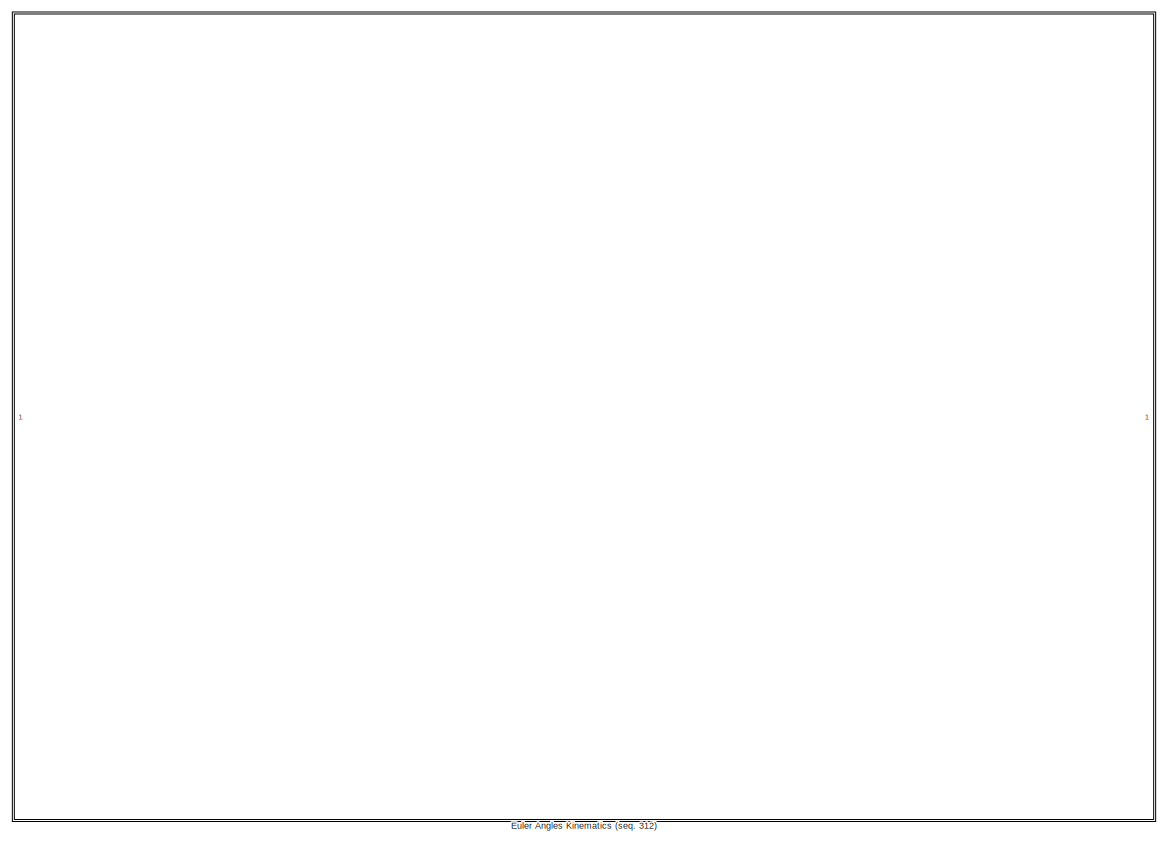
[diagram: root canvas - part 1/21, top right region]
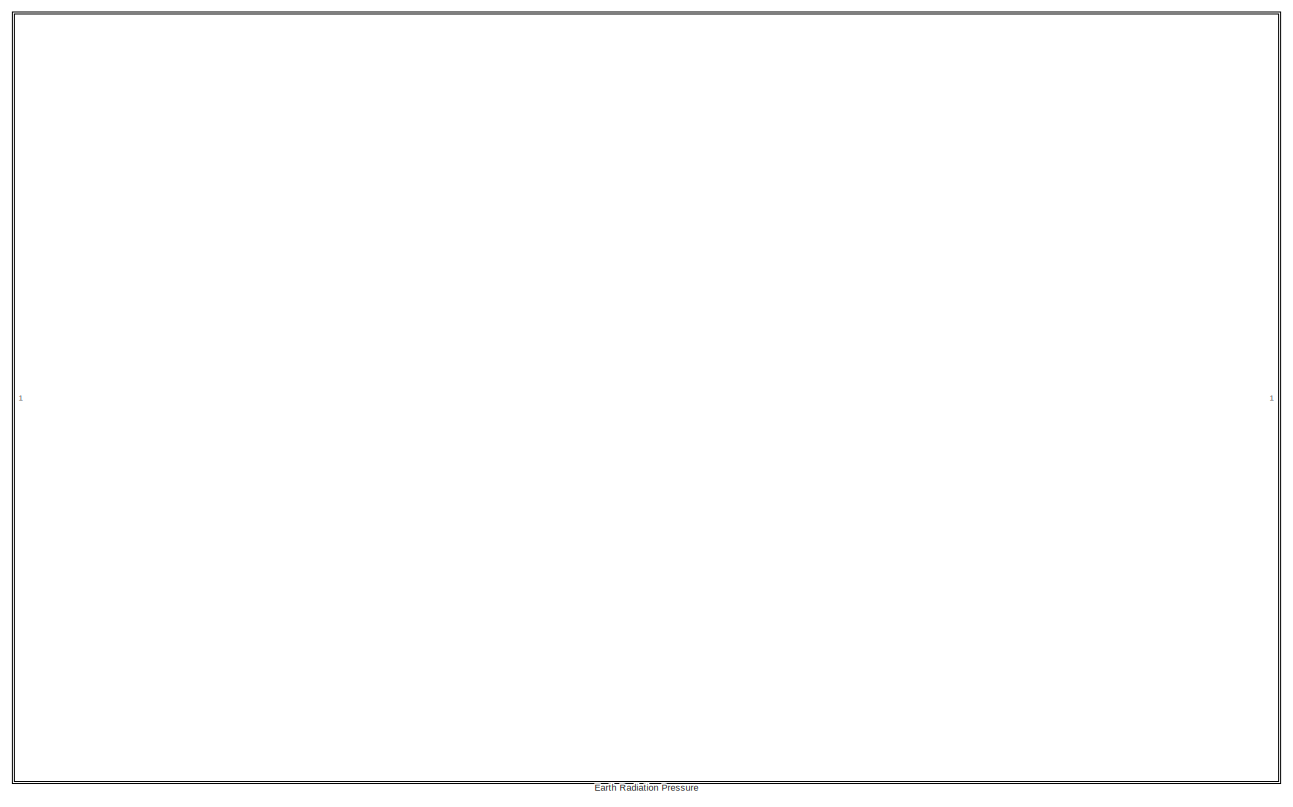
[diagram: root canvas - part 2/21, top right region]
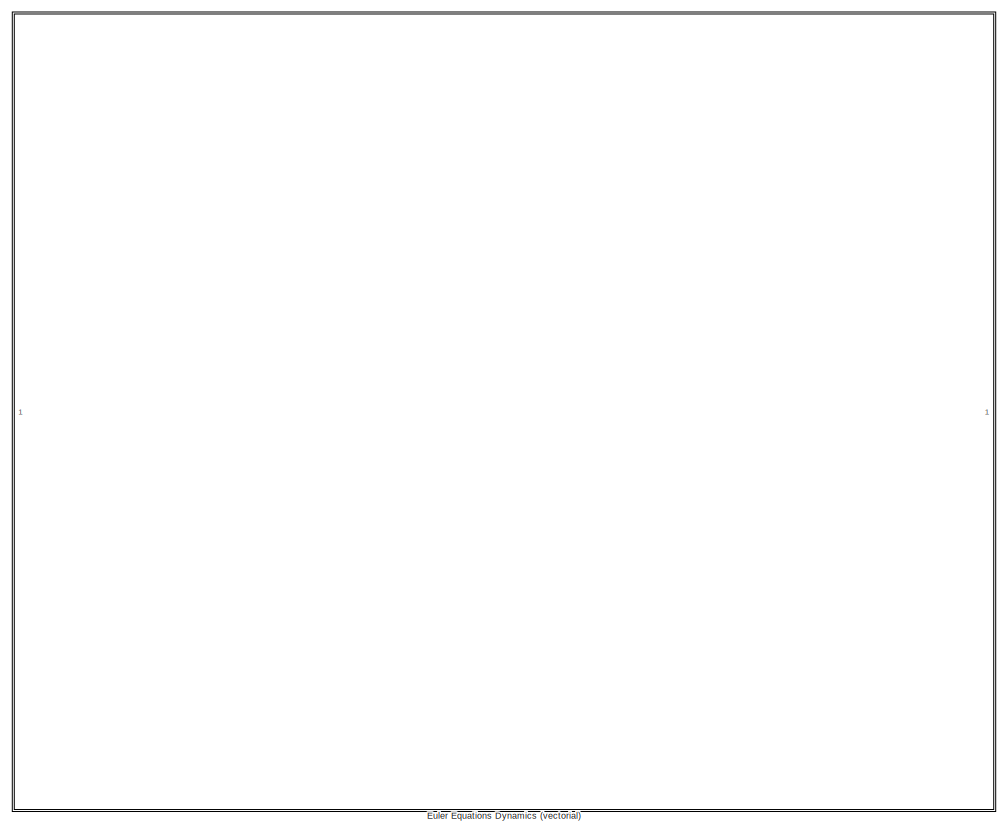
[diagram: root canvas - part 3/21, top left region]
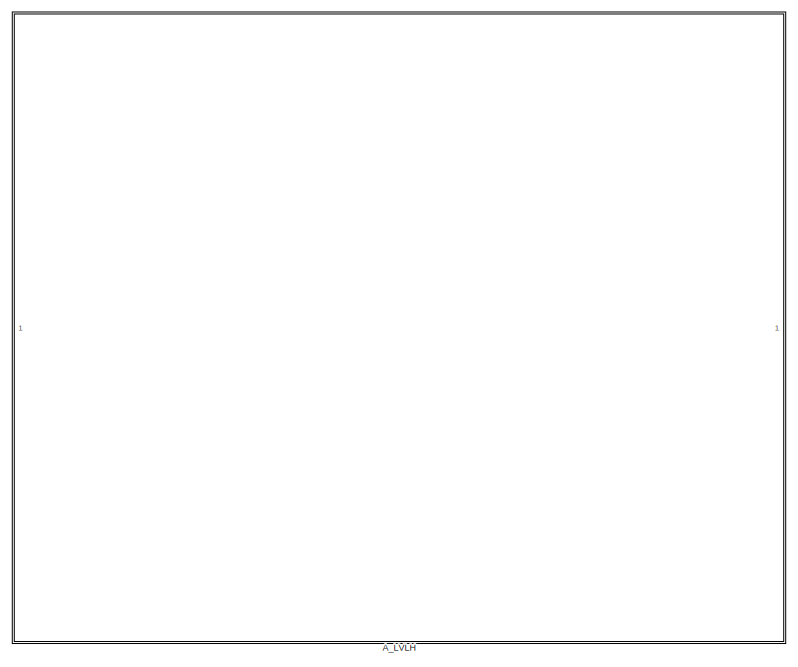
[diagram: root canvas - part 4/21, top center region]
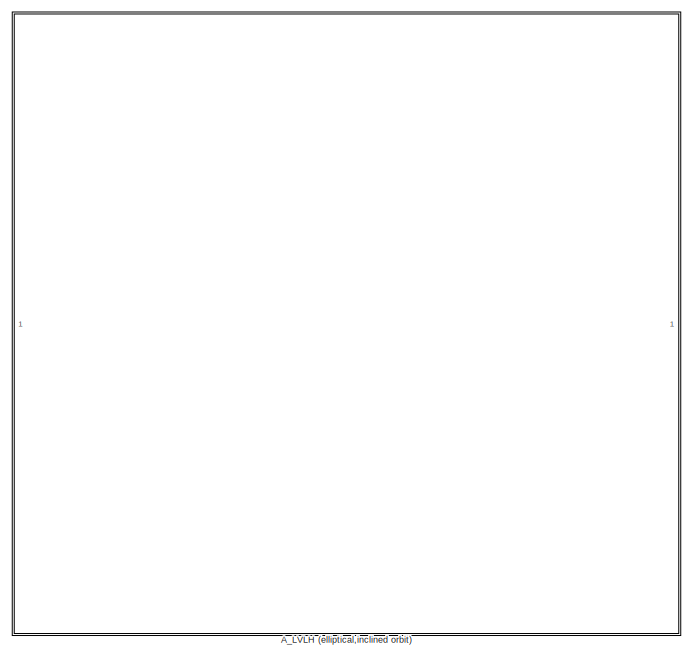
[diagram: root canvas - part 5/21, top center region]
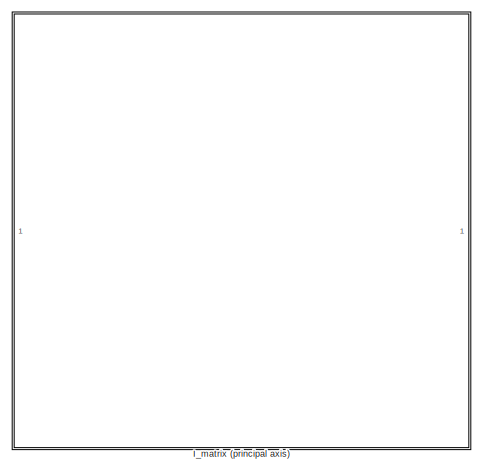
[diagram: root canvas - part 6/21, top left region]
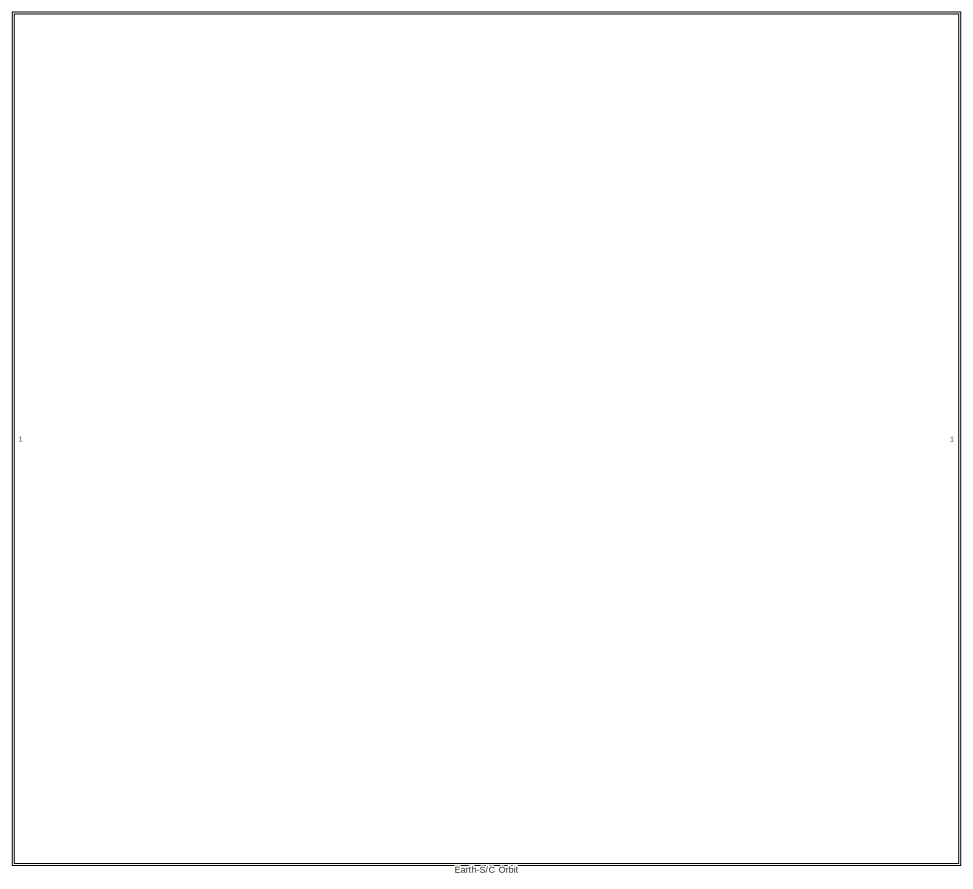
[diagram: root canvas - part 7/21, top left region]
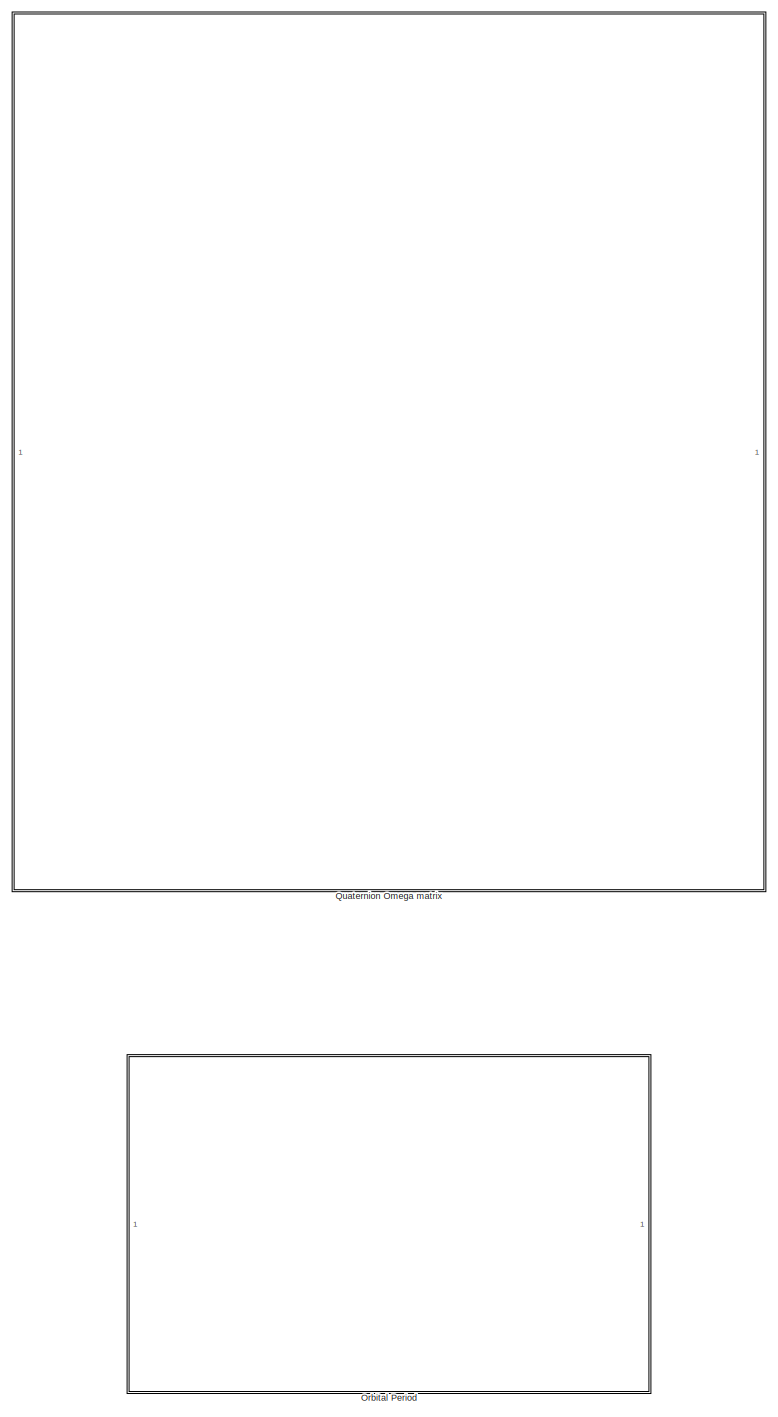
[diagram: root canvas - part 8/21, central region]
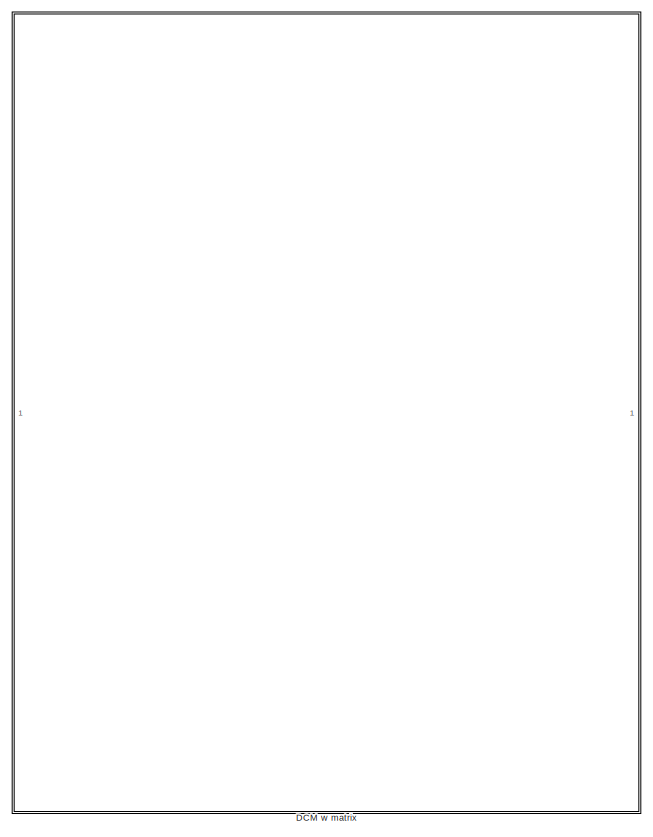
[diagram: root canvas - part 9/21, top center region]
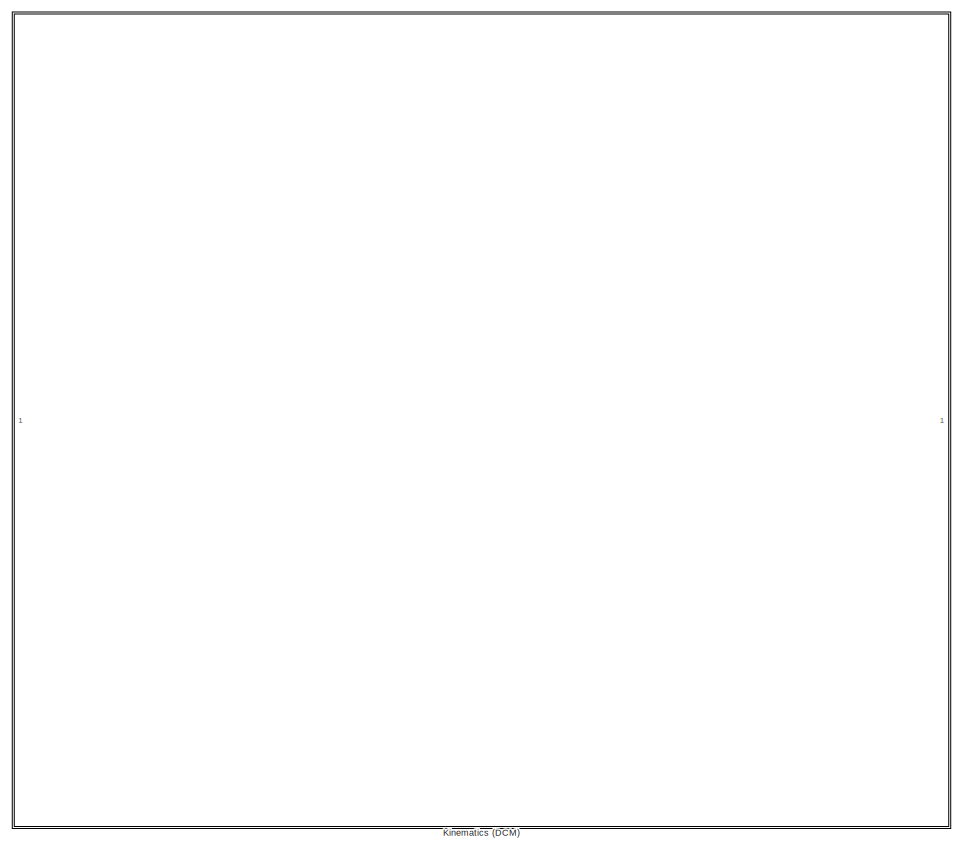
[diagram: root canvas - part 10/21, middle left region]
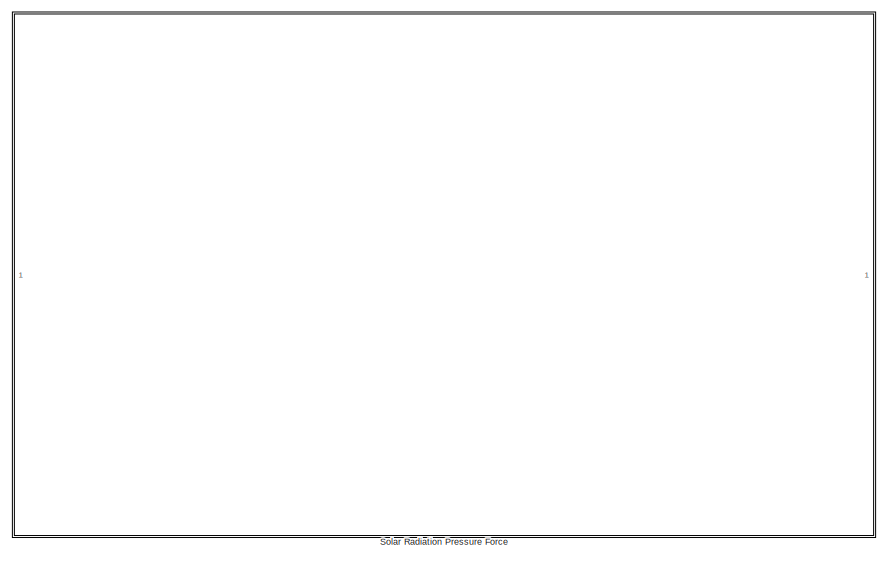
[diagram: root canvas - part 11/21, top right region]
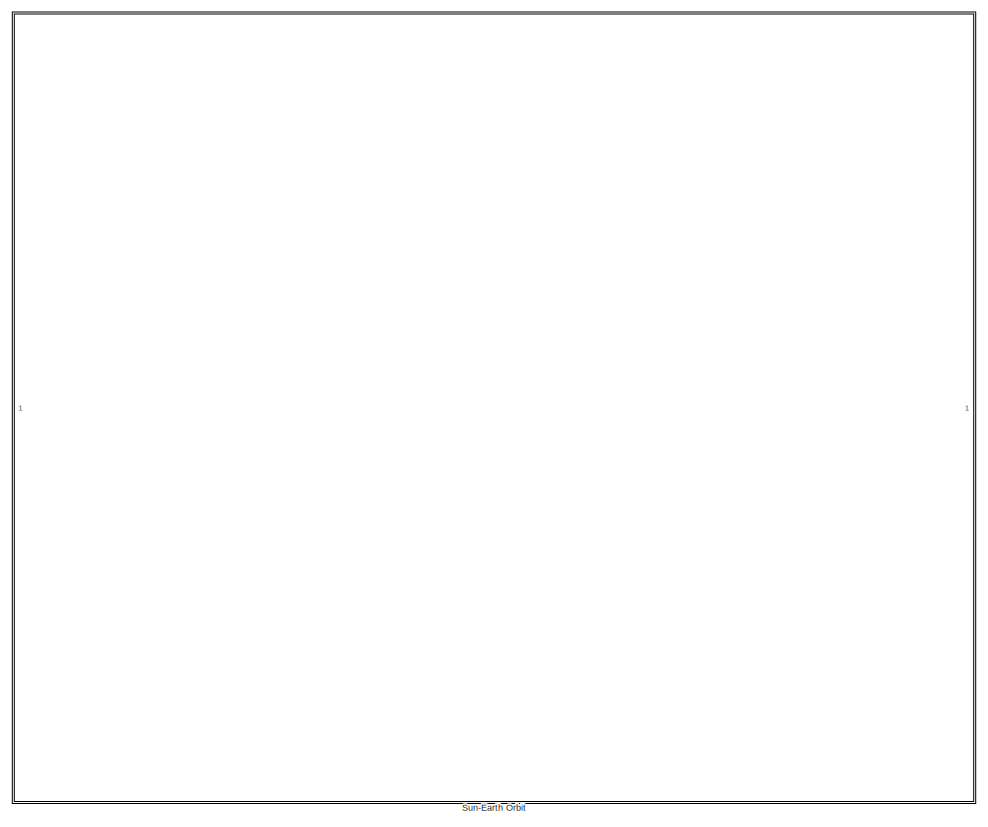
[diagram: root canvas - part 12/21, middle left region]
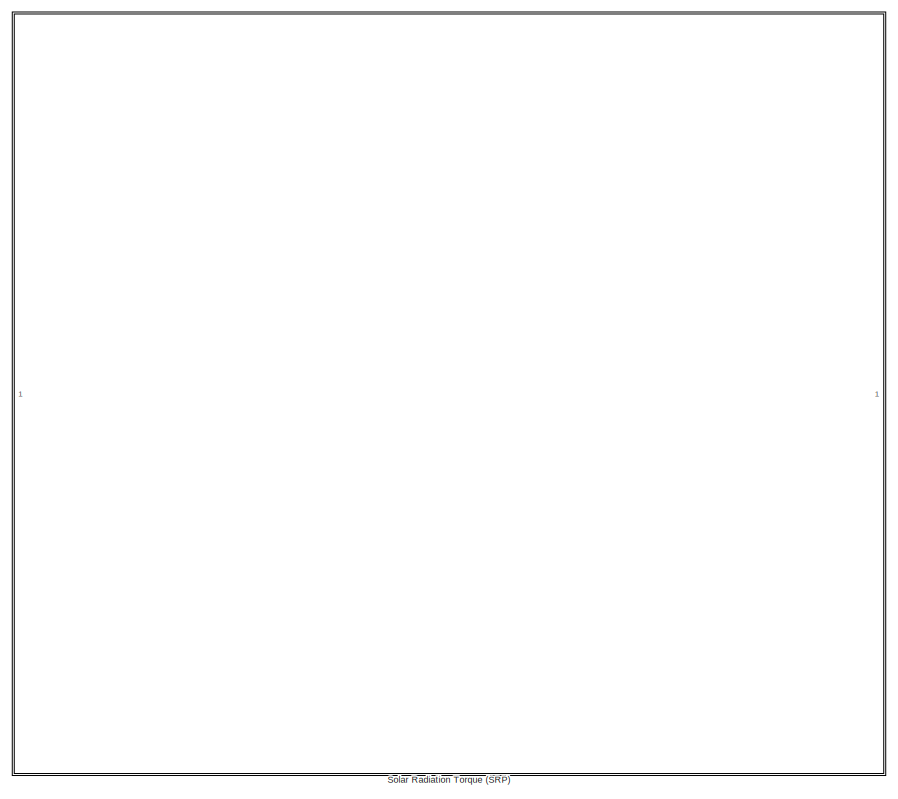
[diagram: root canvas - part 13/21, middle right region]
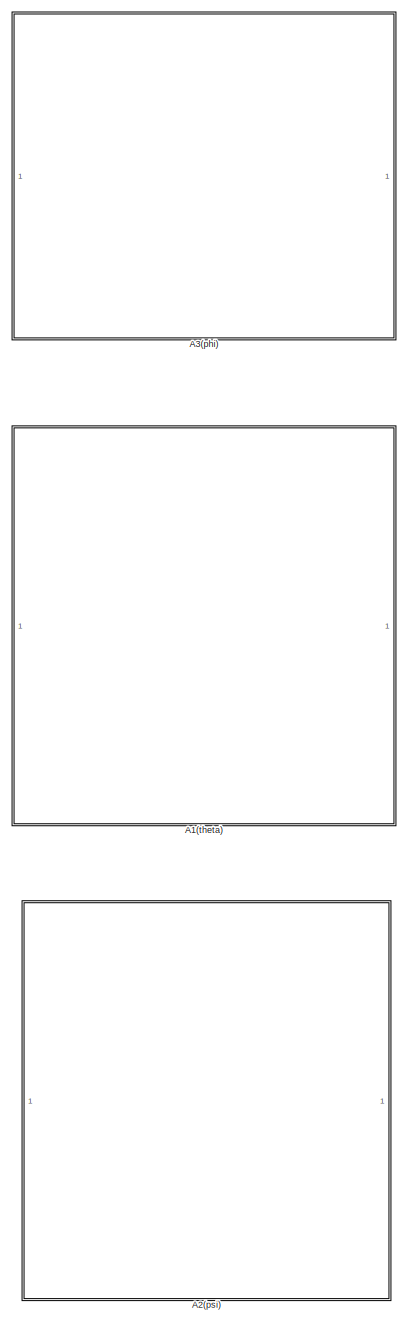
[diagram: root canvas - part 14/21, central region]
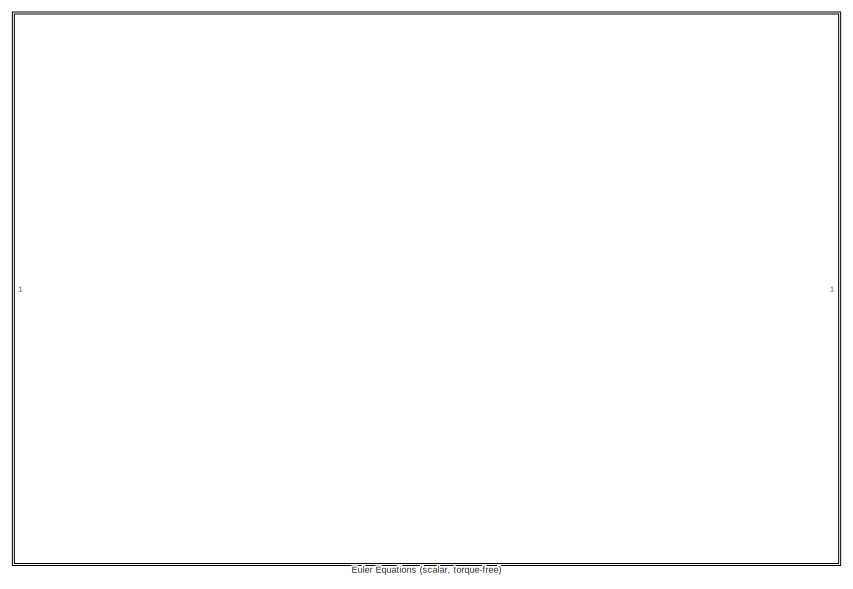
[diagram: root canvas - part 15/21, middle left region]
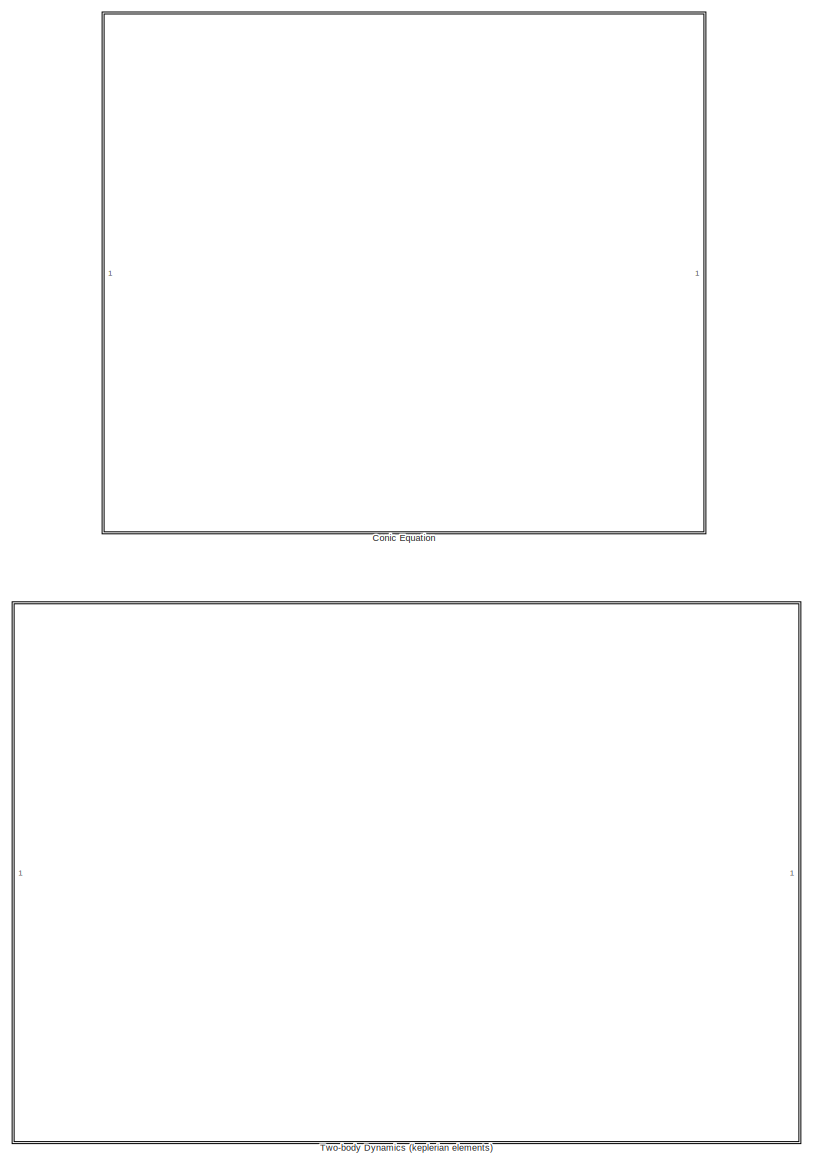
[diagram: root canvas - part 16/21, bottom center region]
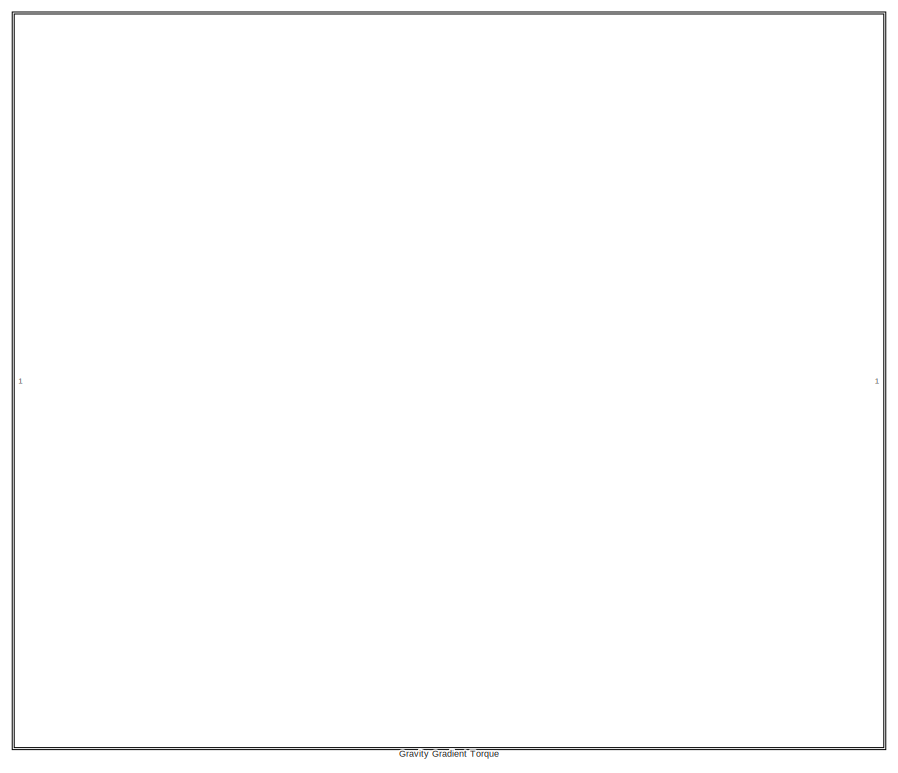
[diagram: root canvas - part 17/21, bottom right region]
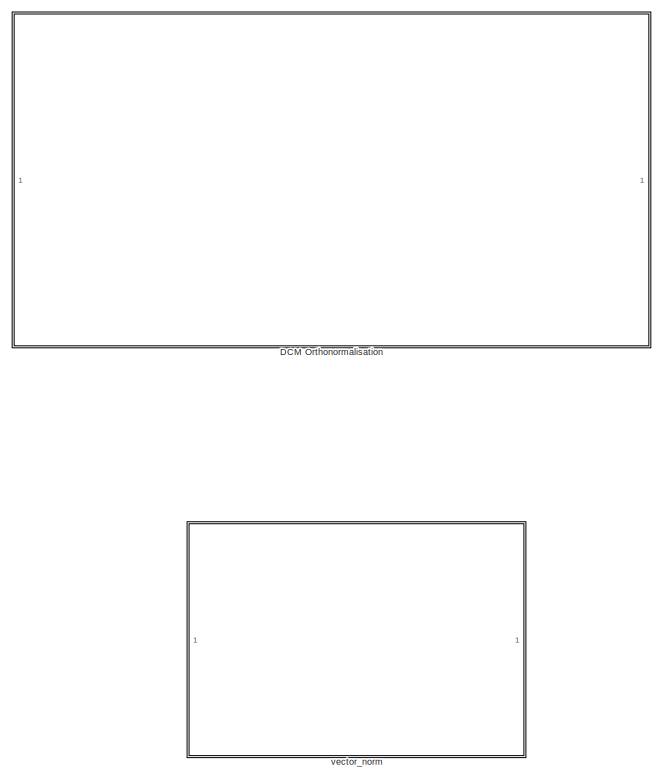
[diagram: root canvas - part 18/21, bottom left region]
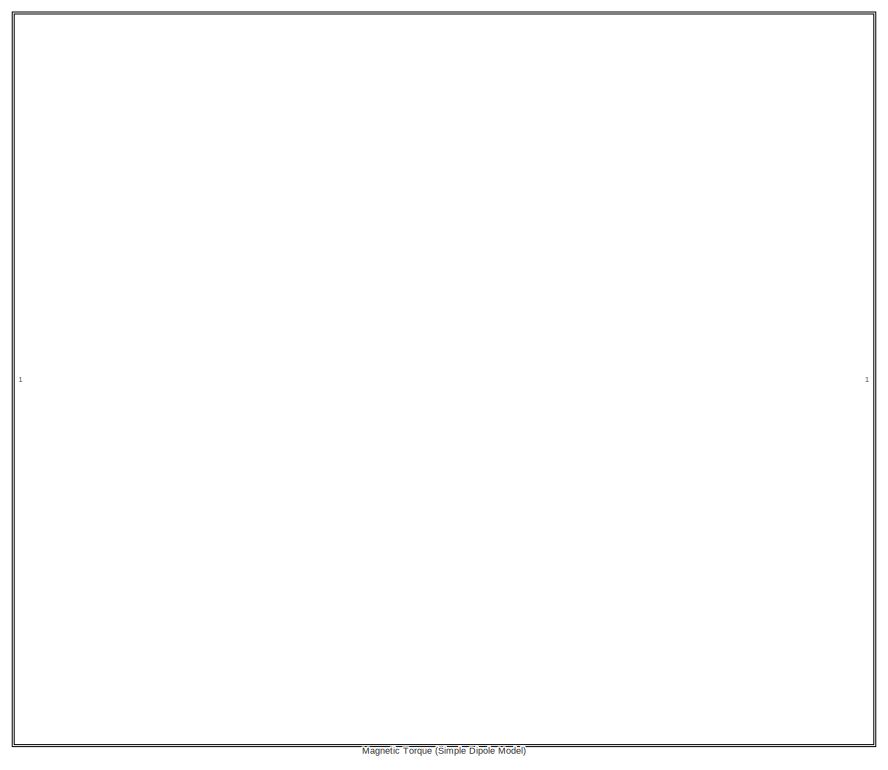
[diagram: root canvas - part 19/21, bottom right region]
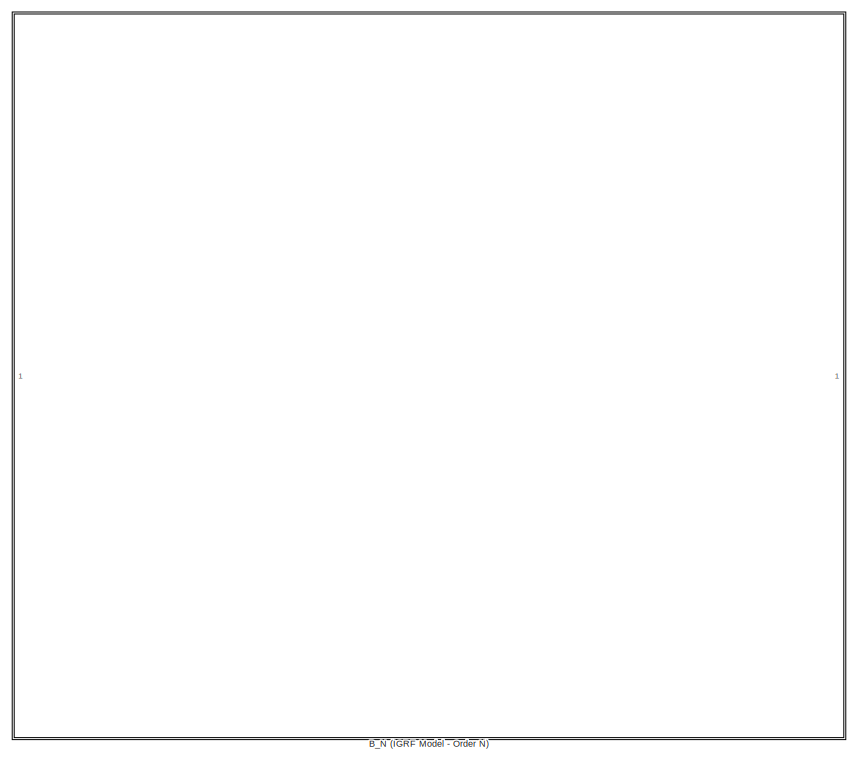
[diagram: root canvas - part 20/21, bottom right region]
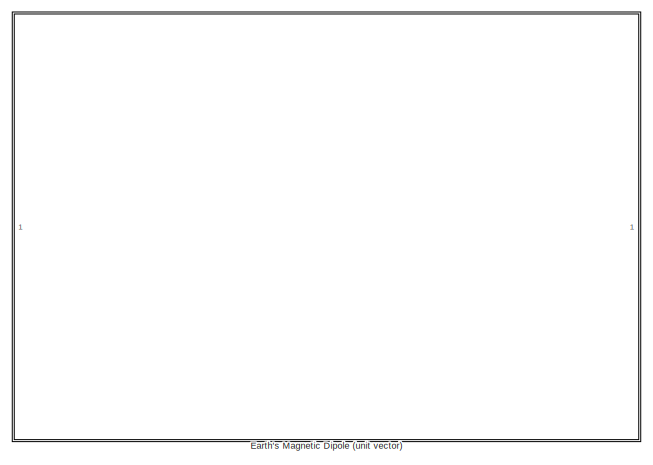
[diagram: root canvas - part 21/21, bottom center region]
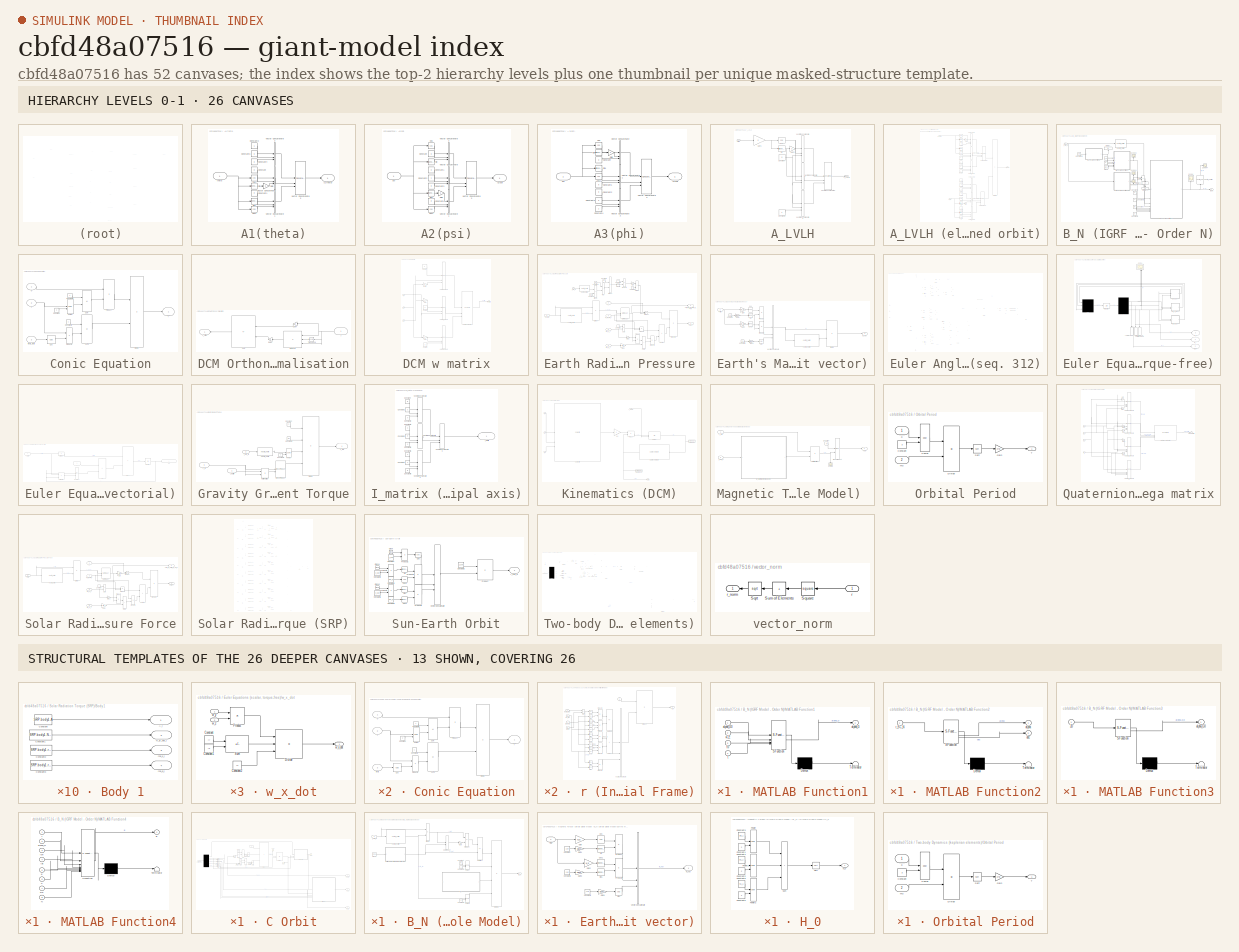
[diagram: thumbnail index - top-2 hierarchy levels (26 canvases) + 13 structural-template representatives of the remaining 26 canvases]
MODEL slx_cbfd48a07516
KIND library
CONFIG AbsTol = auto
CONFIG EnableMultiTasking = off
CONFIG FixedStep = auto
CONFIG MaxStep = auto
CONFIG MinStep = auto
CONFIG RelTol = 1e-3
CONFIG SampleTimeConstraint = Unconstrained
CONFIG SolverName = VariableStepAuto
CONFIG StartTime = 0.0
CONFIG StopTime = 10.0
BLOCK [SubSystem] A1(theta)
BLOCK [Outport] A1(theta)/A1(theta)
BLOCK [Constant] A1(theta)/Constant
  Value = 0
BLOCK [Constant] A1(theta)/Constant1
  Value = 0
BLOCK [Constant] A1(theta)/Constant2
BLOCK [Constant] A1(theta)/Constant3
  Value = 0
BLOCK [Constant] A1(theta)/Constant4
  Value = 0
BLOCK [Trigonometry] A1(theta)/Cos
  Operator = cos
BLOCK [Trigonometry] A1(theta)/Cos1
  Operator = cos
BLOCK [Gain] A1(theta)/Gain
  Gain = -1
BLOCK [Trigonometry] A1(theta)/Sin
BLOCK [Trigonometry] A1(theta)/Sin1
BLOCK [Concatenate] A1(theta)/Vector Concatenate
  NumInputs = 3
BLOCK [Concatenate] A1(theta)/Vector Concatenate1
  NumInputs = 3
BLOCK [Concatenate] A1(theta)/Vector Concatenate2
  NumInputs = 3
BLOCK [Concatenate] A1(theta)/Vector Concatenate3
  ConcatenateDimension = 2
  Mode = Multidimensional array
  NumInputs = 3
BLOCK [Inport] A1(theta)/theta
BLOCK [SubSystem] A2(psi)
BLOCK [Outport] A2(psi)/A2(psi)
BLOCK [Constant] A2(psi)/Constant
  Value = 0
BLOCK [Constant] A2(psi)/Constant1
  Value = 0
BLOCK [Constant] A2(psi)/Constant2
BLOCK [Constant] A2(psi)/Constant3
  Value = 0
BLOCK [Constant] A2(psi)/Constant4
  Value = 0
BLOCK [Trigonometry] A2(psi)/Cos
  Operator = cos
BLOCK [Trigonometry] A2(psi)/Cos1
  Operator = cos
BLOCK [Gain] A2(psi)/Gain
  Gain = -1
BLOCK [Trigonometry] A2(psi)/Sin
BLOCK [Trigonometry] A2(psi)/Sin1
BLOCK [Concatenate] A2(psi)/Vector Concatenate
  NumInputs = 3
BLOCK [Concatenate] A2(psi)/Vector Concatenate1
  NumInputs = 3
BLOCK [Concatenate] A2(psi)/Vector Concatenate2
  NumInputs = 3
BLOCK [Concatenate] A2(psi)/Vector Concatenate3
  ConcatenateDimension = 2
  Mode = Multidimensional array
  NumInputs = 3
BLOCK [Inport] A2(psi)/psi
BLOCK [SubSystem] A3(phi)
BLOCK [Outport] A3(phi)/A3(phi)
BLOCK [Constant] A3(phi)/Constant
  Value = 0
BLOCK [Constant] A3(phi)/Constant1
  Value = 0
BLOCK [Constant] A3(phi)/Constant2
  Value = 0
BLOCK [Constant] A3(phi)/Constant3
  Value = 0
BLOCK [Constant] A3(phi)/Constant4
BLOCK [Trigonometry] A3(phi)/Cos
  Operator = cos
BLOCK [Trigonometry] A3(phi)/Cos1
  Operator = cos
BLOCK [Gain] A3(phi)/Gain
  Gain = -1
BLOCK [Trigonometry] A3(phi)/Sin
BLOCK [Trigonometry] A3(phi)/Sin1
BLOCK [Concatenate] A3(phi)/Vector Concatenate
  NumInputs = 3
BLOCK [Concatenate] A3(phi)/Vector Concatenate1
  NumInputs = 3
BLOCK [Concatenate] A3(phi)/Vector Concatenate2
  NumInputs = 3
BLOCK [Concatenate] A3(phi)/Vector Concatenate3
  ConcatenateDimension = 2
  Mode = Multidimensional array
  NumInputs = 3
BLOCK [Inport] A3(phi)/phi
BLOCK [SubSystem] A_LVLH
BLOCK [SubSystem] A_LVLH (elliptical,inclined orbit)
BLOCK [Outport] A_LVLH (elliptical,inclined orbit)/A_LVLH//N
BLOCK [Constant] A_LVLH (elliptical,inclined orbit)/Constant
  Value = 0
BLOCK [Constant] A_LVLH (elliptical,inclined orbit)/Constant1
BLOCK [Constant] A_LVLH (elliptical,inclined orbit)/Constant2
BLOCK [Constant] A_LVLH (elliptical,inclined orbit)/Constant3
  Value = 0
BLOCK [Constant] A_LVLH (elliptical,inclined orbit)/Constant4
  Value = 0
BLOCK [Constant] A_LVLH (elliptical,inclined orbit)/Constant5
  Value = 0
BLOCK [Constant] A_LVLH (elliptical,inclined orbit)/Constant6
  Value = 0
BLOCK [Constant] A_LVLH (elliptical,inclined orbit)/Constant7
  Value = 0
BLOCK [Constant] A_LVLH (elliptical,inclined orbit)/Constant8
  Value = 0
BLOCK [Constant] A_LVLH (elliptical,inclined orbit)/Constant9
  Value = 0
BLOCK [Trigonometry] A_LVLH (elliptical,inclined orbit)/Cos
  Operator = cos
BLOCK [Trigonometry] A_LVLH (elliptical,inclined orbit)/Cos1
  Operator = cos
BLOCK [Trigonometry] A_LVLH (elliptical,inclined orbit)/Cos2
BLOCK [Trigonometry] A_LVLH (elliptical,inclined orbit)/Cos3
  Operator = cos
BLOCK [Gain] A_LVLH (elliptical,inclined orbit)/Gain
  Gain = -1
BLOCK [Gain] A_LVLH (elliptical,inclined orbit)/Gain2
  Gain = -1
BLOCK [Product] A_LVLH (elliptical,inclined orbit)/MatrixMultiply
  Multiplication = Matrix(*)
BLOCK [Trigonometry] A_LVLH (elliptical,inclined orbit)/Sin
BLOCK [Trigonometry] A_LVLH (elliptical,inclined orbit)/Sin1
BLOCK [Trigonometry] A_LVLH (elliptical,inclined orbit)/Sin2
  Operator = cos
BLOCK [Trigonometry] A_LVLH (elliptical,inclined orbit)/Sin3
BLOCK [Concatenate] A_LVLH (elliptical,inclined orbit)/Vector Concatenate
  NumInputs = 3
BLOCK [Concatenate] A_LVLH (elliptical,inclined orbit)/Vector Concatenate1
  NumInputs = 3
BLOCK [Concatenate] A_LVLH (elliptical,inclined orbit)/Vector Concatenate2
  NumInputs = 3
BLOCK [Concatenate] A_LVLH (elliptical,inclined orbit)/Vector Concatenate3
  ConcatenateDimension = 2
  Mode = Multidimensional array
  NumInputs = 3
BLOCK [Concatenate] A_LVLH (elliptical,inclined orbit)/Vector Concatenate4
  NumInputs = 3
BLOCK [Concatenate] A_LVLH (elliptical,inclined orbit)/Vector Concatenate5
  NumInputs = 3
BLOCK [Concatenate] A_LVLH (elliptical,inclined orbit)/Vector Concatenate6
  NumInputs = 3
BLOCK [Concatenate] A_LVLH (elliptical,inclined orbit)/Vector Concatenate7
  ConcatenateDimension = 2
  Mode = Multidimensional array
  NumInputs = 3
BLOCK [Inport] A_LVLH (elliptical,inclined orbit)/incl_rad
  Port = 2
BLOCK [Inport] A_LVLH (elliptical,inclined orbit)/theta_rad(t)
BLOCK [Outport] A_LVLH/A_LVLH
BLOCK [Constant] A_LVLH/Constant
  Value = 0
BLOCK [Constant] A_LVLH/Constant1
BLOCK [Trigonometry] A_LVLH/Cos
  Operator = cos
BLOCK [Gain] A_LVLH/Gain1
  Gain = n
BLOCK [Gain] A_LVLH/Gain2
  Gain = -1
BLOCK [Trigonometry] A_LVLH/Sin
BLOCK [Inport] A_LVLH/Time
BLOCK [Concatenate] A_LVLH/Vector Concatenate
  NumInputs = 3
BLOCK [Concatenate] A_LVLH/Vector Concatenate1
  NumInputs = 3
BLOCK [Concatenate] A_LVLH/Vector Concatenate2
  NumInputs = 3
BLOCK [Concatenate] A_LVLH/Vector Concatenate3
  ConcatenateDimension = 2
  Mode = Multidimensional array
  NumInputs = 3
BLOCK [SubSystem] B_N (IGRF Model - Order N)
BLOCK [Outport] B_N (IGRF Model - Order N)/B_N
BLOCK [Clock] B_N (IGRF Model - Order N)/Clock
BLOCK [Constant] B_N (IGRF Model - Order N)/Constant
  Value = Re
BLOCK [Constant] B_N (IGRF Model - Order N)/Constant1
  Value = JD0
BLOCK [Constant] B_N (IGRF Model - Order N)/Constant2
  Value = N
BLOCK [Constant] B_N (IGRF Model - Order N)/Constant3
  Value = h
BLOCK [Constant] B_N (IGRF Model - Order N)/Constant4
  Value = g
BLOCK [Constant] B_N (IGRF Model - Order N)/Constant7
  Value = w_E
BLOCK [Constant] B_N (IGRF Model - Order N)/Constant8
  Value = t0
BLOCK [Display] B_N (IGRF Model - Order N)/Display
  Decimation = 1
  NameLocation = right
BLOCK [Display] B_N (IGRF Model - Order N)/Display1
  Decimation = 1
  NameLocation = left
BLOCK [Display] B_N (IGRF Model - Order N)/Display2
  Decimation = 1
  NameLocation = left
BLOCK [SubSystem] B_N (IGRF Model - Order N)/MATLAB Function1
  ErrorFcn = Stateflow.Translate.translate
  PermitHierarchicalResolution = ExplicitOnly
  SFBlockType = MATLAB Function
  TreatAsAtomicUnit = on
BLOCK [Demux] B_N (IGRF Model - Order N)/MATLAB Function1/ Demux 
  Outputs = 1
BLOCK [S-Function] B_N (IGRF Model - Order N)/MATLAB Function1/ SFunction 
  EnableBusSupport = off
  FunctionName = sf_sfun
  PortCounts = [4 2]
  SFcnIsStateOwnerBlock = off
  SFunctionDeploymentMode = off
  Tag = Stateflow S-Function 5
BLOCK [Terminator] B_N (IGRF Model - Order N)/MATLAB Function1/ Terminator 
BLOCK [Outport] B_N (IGRF Model - Order N)/MATLAB Function1/alpha_G
BLOCK [Inport] B_N (IGRF Model - Order N)/MATLAB Function1/alpha_G0
BLOCK [Inport] B_N (IGRF Model - Order N)/MATLAB Function1/t
  Port = 4
BLOCK [Inport] B_N (IGRF Model - Order N)/MATLAB Function1/t0
  Port = 3
BLOCK [Inport] B_N (IGRF Model - Order N)/MATLAB Function1/w_E
  Port = 2
BLOCK [SubSystem] B_N (IGRF Model - Order N)/MATLAB Function2
  ErrorFcn = Stateflow.Translate.translate
  PermitHierarchicalResolution = ExplicitOnly
  SFBlockType = MATLAB Function
  TreatAsAtomicUnit = on
BLOCK [Demux] B_N (IGRF Model - Order N)/MATLAB Function2/ Demux 
  Outputs = 1
BLOCK [S-Function] B_N (IGRF Model - Order N)/MATLAB Function2/ SFunction 
  EnableBusSupport = off
  FunctionName = sf_sfun
  PortCounts = [1 3]
  SFcnIsStateOwnerBlock = off
  SFunctionDeploymentMode = off
  Tag = Stateflow S-Function 6
BLOCK [Terminator] B_N (IGRF Model - Order N)/MATLAB Function2/ Terminator 
BLOCK [Outport] B_N (IGRF Model - Order N)/MATLAB Function2/alpha
BLOCK [Outport] B_N (IGRF Model - Order N)/MATLAB Function2/dec
  Port = 2
BLOCK [Inport] B_N (IGRF Model - Order N)/MATLAB Function2/r_SC_N
BLOCK [SubSystem] B_N (IGRF Model - Order N)/MATLAB Function3
  ErrorFcn = Stateflow.Translate.translate
  PermitHierarchicalResolution = ExplicitOnly
  SFBlockType = MATLAB Function
  TreatAsAtomicUnit = on
BLOCK [Demux] B_N (IGRF Model - Order N)/MATLAB Function3/ Demux 
  Outputs = 1
BLOCK [S-Function] B_N (IGRF Model - Order N)/MATLAB Function3/ SFunction 
  EnableBusSupport = off
  FunctionName = sf_sfun
  PortCounts = [1 2]
  SFcnIsStateOwnerBlock = off
  SFunctionDeploymentMode = off
  Tag = Stateflow S-Function 7
BLOCK [Terminator] B_N (IGRF Model - Order N)/MATLAB Function3/ Terminator 
BLOCK [Inport] B_N (IGRF Model - Order N)/MATLAB Function3/JD
BLOCK [Outport] B_N (IGRF Model - Order N)/MATLAB Function3/alpha_G0
BLOCK [SubSystem] B_N (IGRF Model - Order N)/MATLAB Function4
  ErrorFcn = Stateflow.Translate.translate
  PermitHierarchicalResolution = ExplicitOnly
  SFBlockType = MATLAB Function
  TreatAsAtomicUnit = on
BLOCK [Demux] B_N (IGRF Model - Order N)/MATLAB Function4/ Demux 
  Outputs = 1
BLOCK [S-Function] B_N (IGRF Model - Order N)/MATLAB Function4/ SFunction 
  EnableBusSupport = off
  FunctionName = sf_sfun
  PortCounts = [8 2]
  SFcnIsStateOwnerBlock = off
  SFunctionDeploymentMode = off
  Tag = Stateflow S-Function 8
BLOCK [Terminator] B_N (IGRF Model - Order N)/MATLAB Function4/ Terminator 
BLOCK [Outport] B_N (IGRF Model - Order N)/MATLAB Function4/B
BLOCK [Inport] B_N (IGRF Model - Order N)/MATLAB Function4/N
  Port = 8
BLOCK [Inport] B_N (IGRF Model - Order N)/MATLAB Function4/Re
  Port = 7
BLOCK [Inport] B_N (IGRF Model - Order N)/MATLAB Function4/alpha_G
  Port = 2
BLOCK [Inport] B_N (IGRF Model - Order N)/MATLAB Function4/g
  Port = 5
BLOCK [Inport] B_N (IGRF Model - Order N)/MATLAB Function4/h
  Port = 6
BLOCK [Inport] B_N (IGRF Model - Order N)/MATLAB Function4/lat
  Port = 4
BLOCK [Inport] B_N (IGRF Model - Order N)/MATLAB Function4/lon
  Port = 3
BLOCK [Inport] B_N (IGRF Model - Order N)/MATLAB Function4/r
BLOCK [Scope] B_N (IGRF Model - Order N)/Scope
  ActiveDisplayYMaximum = 2.8400469726666671E-5
  ActiveDisplayYMinimum = -1.512041376614329E-5
  DataLoggingVariableName = ScopeData27
  Floating = off
  GraphicalSettings = {"Style":{"BackgroundColor":[0.12941176470588237,0.12941176470588237,0.12941176470588237],"AxesColor":[0.07058823529411765,0.07058823529411765,0.07058823529411765],"LabelsColor":[0.8509803921568627,0.8509803921568627,0.8509803921568627],"PreserveColors":false,"Visible":[true,true,true],"LineStyle":["-","-","-"],"LineWidth":[1.5,1.5,1.5],"BarWidth":[0.9,0.9,0.9],"LineColor":["auto","auto","auto"],"...<+2113ch>
  MultipleDisplayCache = [{"MaxYLimMag":2.8400469726666671E-5,"MaxYLimReal":2.8400469726666671E-5,"MinYLimMag":0,"MinYLimReal":-1.512041376614329E-5,"PlotAsMagnitudePhase":false,"ShowGrid":true,"ShowLegend":false,"Title":"%<SignalLabel>","YLabel":""}]
  NameLocation = right
  NumInputPorts = 1
  ScopeFrameLocation = window
  WasSavedAsWebScope = on
  WindowPosition = [161.000000,255.000000,619.000000,532.000000,]
BLOCK [Scope] B_N (IGRF Model - Order N)/Scope1
  ActiveDisplayYMaximum = 1
  ActiveDisplayYMinimum = -1
  DataLoggingVariableName = ScopeData28
  Floating = off
  GraphicalSettings = {"Style":{"BackgroundColor":[0.12941176470588237,0.12941176470588237,0.12941176470588237],"AxesColor":[0.07058823529411765,0.07058823529411765,0.07058823529411765],"LabelsColor":[0.8509803921568627,0.8509803921568627,0.8509803921568627],"PreserveColors":false,"Visible":[true],"LineStyle":["-"],"LineWidth":[1.5],"BarWidth":[0.9],"LineColor":["auto"],"LineFaceAlpha":[1],"LineEdgeAlpha":[1],"Marker":...<+1926ch>
  MultipleDisplayCache = [{"MaxYLimMag":1,"MaxYLimReal":1,"MinYLimMag":0,"MinYLimReal":-1,"PlotAsMagnitudePhase":false,"ShowGrid":true,"ShowLegend":false,"Title":"%<SignalLabel>","YLabel":""}]
  NameLocation = right
  NumInputPorts = 1
  ScopeFrameLocation = window
  WasSavedAsWebScope = on
  WindowPosition = [476.000000,281.000000,560.000000,420.000000,]
BLOCK [Scope] B_N (IGRF Model - Order N)/Scope2
  ActiveDisplayYMaximum = 1
  ActiveDisplayYMinimum = -1
  DataLoggingVariableName = ScopeData29
  Floating = off
  GraphicalSettings = {"Style":{"BackgroundColor":[0.12941176470588237,0.12941176470588237,0.12941176470588237],"AxesColor":[0.07058823529411765,0.07058823529411765,0.07058823529411765],"LabelsColor":[0.8509803921568627,0.8509803921568627,0.8509803921568627],"PreserveColors":false,"Visible":[true],"LineStyle":["-"],"LineWidth":[1.5],"BarWidth":[0.9],"LineColor":["auto"],"LineFaceAlpha":[1],"LineEdgeAlpha":[1],"Marker":...<+1922ch>
  MultipleDisplayCache = [{"MaxYLimMag":1,"MaxYLimReal":1,"MinYLimMag":0,"MinYLimReal":-1,"PlotAsMagnitudePhase":false,"ShowGrid":true,"ShowLegend":false,"Title":"%<SignalLabel>","YLabel":""}]
  NameLocation = right
  NumInputPorts = 1
  ScopeFrameLocation = window
  WasSavedAsWebScope = on
  WindowPosition = [476.000000,281.000000,560.000000,420.000000,]
BLOCK [Scope] B_N (IGRF Model - Order N)/Scope3
  ActiveDisplayYMaximum = 1
  ActiveDisplayYMinimum = -1
  DataLoggingVariableName = ScopeData30
  Floating = off
  GraphicalSettings = {"Style":{"BackgroundColor":[0.12941176470588237,0.12941176470588237,0.12941176470588237],"AxesColor":[0.07058823529411765,0.07058823529411765,0.07058823529411765],"LabelsColor":[0.8509803921568627,0.8509803921568627,0.8509803921568627],"PreserveColors":false,"Visible":[true],"LineStyle":["-"],"LineWidth":[1.5],"BarWidth":[0.9],"LineColor":["auto"],"LineFaceAlpha":[1],"LineEdgeAlpha":[1],"Marker":...<+1914ch>
  MultipleDisplayCache = [{"MaxYLimMag":1,"MaxYLimReal":1,"MinYLimMag":0,"MinYLimReal":-1,"PlotAsMagnitudePhase":false,"ShowGrid":true,"ShowLegend":false,"Title":"%<SignalLabel>","YLabel":""}]
  NameLocation = right
  NumInputPorts = 1
  ScopeFrameLocation = window
  WasSavedAsWebScope = on
  WindowPosition = [476.000000,281.000000,560.000000,420.000000,]
BLOCK [Scope] B_N (IGRF Model - Order N)/Scope4
  ActiveDisplayYMaximum = 1
  ActiveDisplayYMinimum = -1
  DataLoggingVariableName = ScopeData32
  Floating = off
  GraphicalSettings = {"Style":{"BackgroundColor":[0.12941176470588237,0.12941176470588237,0.12941176470588237],"AxesColor":[0.07058823529411765,0.07058823529411765,0.07058823529411765],"LabelsColor":[0.8509803921568627,0.8509803921568627,0.8509803921568627],"PreserveColors":false,"Visible":[true],"LineStyle":["-"],"LineWidth":[1.5],"BarWidth":[0.9],"LineColor":["auto"],"LineFaceAlpha":[1],"LineEdgeAlpha":[1],"Marker":...<+1896ch>
  MultipleDisplayCache = [{"MaxYLimMag":1,"MaxYLimReal":1,"MinYLimMag":0,"MinYLimReal":-1,"PlotAsMagnitudePhase":false,"ShowGrid":true,"ShowLegend":false,"Title":"%<SignalLabel>","YLabel":""}]
  NumInputPorts = 1
  ScopeFrameLocation = window
  WasSavedAsWebScope = on
  WindowPosition = [437.000000,193.000000,768.000000,504.000000,]
BLOCK [Sum] B_N (IGRF Model - Order N)/Sum
  IconShape = rectangular
  Inputs = +-
BLOCK [Inport] B_N (IGRF Model - Order N)/r_S//C_N
  NameLocation = top
BLOCK [Reference] B_N (IGRF Model - Order N)/vector_norm  REF=$bdroot/vector_norm
  NameLocation = top
  SourceBlock = $bdroot/vector_norm
  SourceType = SubSystem
BLOCK [Reference] B_N (IGRF Model - Order N)/vector_norm1  REF=$bdroot/vector_norm
  NameLocation = left
  SourceBlock = $bdroot/vector_norm
  SourceType = SubSystem
BLOCK [SubSystem] Conic Equation
BLOCK [Constant] Conic Equation/Constant
  Value = 2
BLOCK [Constant] Conic Equation/Constant1
BLOCK [Constant] Conic Equation/Constant2
BLOCK [Trigonometry] Conic Equation/Cos
  Operator = cos
BLOCK [Product] Conic Equation/Divide
  Inputs = */
BLOCK [Math] Conic Equation/Power
  Operator = pow
BLOCK [Product] Conic Equation/Product
BLOCK [Product] Conic Equation/Product1
BLOCK [Sum] Conic Equation/Sum
  IconShape = rectangular
  Inputs = +-
BLOCK [Sum] Conic Equation/Sum1
  IconShape = rectangular
  Inputs = +-
BLOCK [Inport] Conic Equation/a
BLOCK [Inport] Conic Equation/e
  Port = 2
BLOCK [Outport] Conic Equation/r
BLOCK [Inport] Conic Equation/theta_rad(t)
  Port = 3
BLOCK [SubSystem] DCM Orthonormalisation
BLOCK [Inport] DCM Orthonormalisation/A
  NameLocation = top
BLOCK [Outport] DCM Orthonormalisation/A_ortho
  NameLocation = top
BLOCK [Gain] DCM Orthonormalisation/Gain4
  Gain = 3/2
  NameLocation = top
BLOCK [Gain] DCM Orthonormalisation/Gain5
  Gain = 1/2
  NameLocation = top
BLOCK [Product] DCM Orthonormalisation/Product1
  Inputs = 3
  Multiplication = Matrix(*)
  NameLocation = top
BLOCK [Sum] DCM Orthonormalisation/Sum
  IconShape = rectangular
  Inputs = +-
  NameLocation = top
BLOCK [Math] DCM Orthonormalisation/Transpose
  NameLocation = top
  Operator = transpose
BLOCK [SubSystem] DCM w matrix
BLOCK [Constant] DCM w matrix/Constant
  Value = 0
BLOCK [Constant] DCM w matrix/Constant1
  Value = 0
BLOCK [Constant] DCM w matrix/Constant2
  Value = 0
BLOCK [Gain] DCM w matrix/Gain
  Gain = -1
BLOCK [Gain] DCM w matrix/Gain1
  Gain = -1
BLOCK [Gain] DCM w matrix/Gain2
  Gain = -1
BLOCK [Concatenate] DCM w matrix/Vector Concatenate
  Mode = Multidimensional array
  NumInputs = 3
BLOCK [Concatenate] DCM w matrix/Vector Concatenate1
  Mode = Multidimensional array
  NumInputs = 3
BLOCK [Concatenate] DCM w matrix/Vector Concatenate2
  Mode = Multidimensional array
  NumInputs = 3
BLOCK [Concatenate] DCM w matrix/Vector Concatenate3
  ConcatenateDimension = 2
  Mode = Multidimensional array
  NumInputs = 3
BLOCK [Outport] DCM w matrix/w_matrix
BLOCK [Inport] DCM w matrix/w_x
BLOCK [Inport] DCM w matrix/w_y
  Port = 2
BLOCK [Inport] DCM w matrix/w_z
  Port = 3
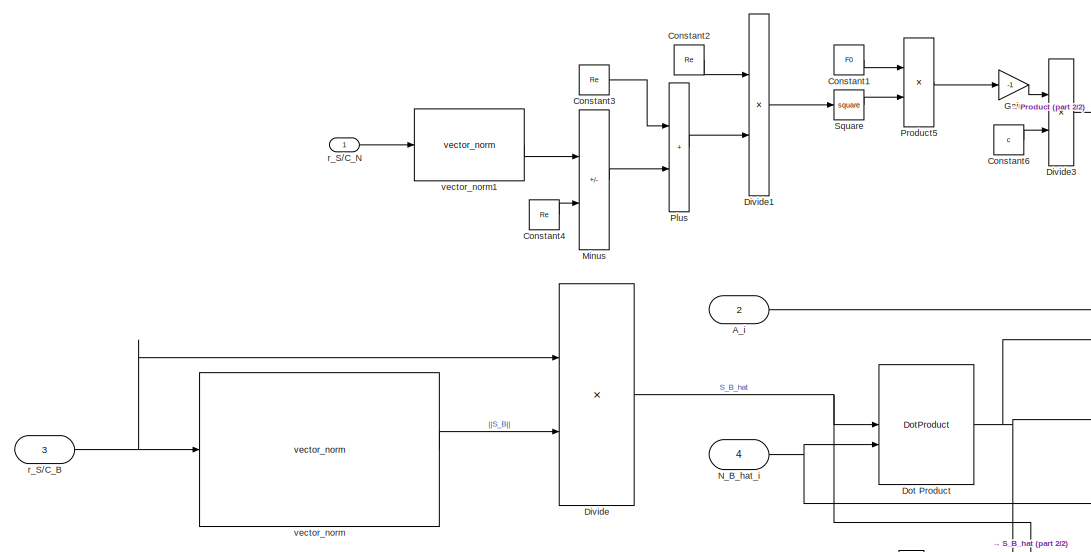
[diagram: Earth Radiation Pressure - part 1/2, middle left region]
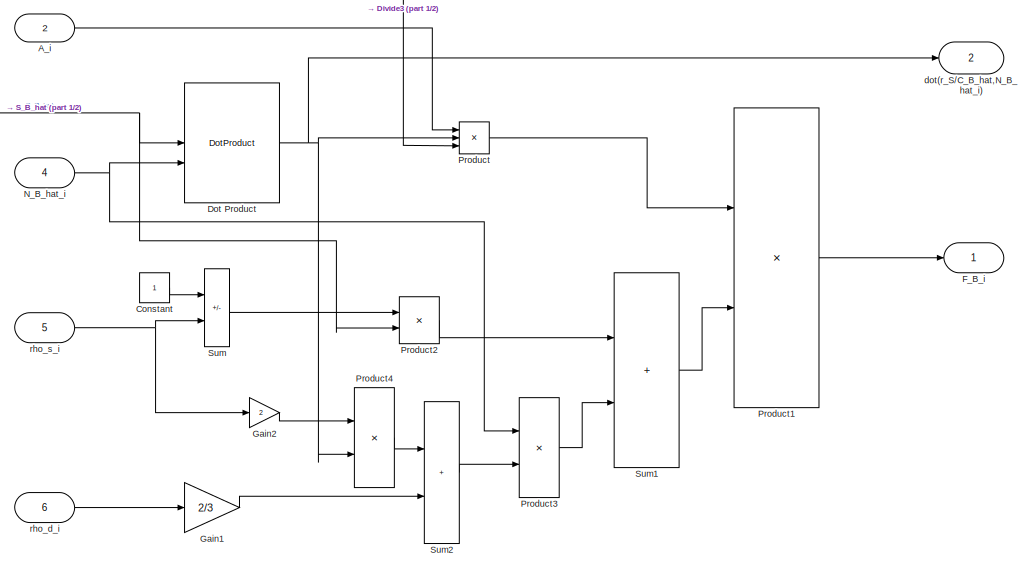
[diagram: Earth Radiation Pressure - part 2/2, middle right region]
BLOCK [SubSystem] Earth Radiation Pressure
BLOCK [Inport] Earth Radiation Pressure/A_i
  Port = 2
BLOCK [Constant] Earth Radiation Pressure/Constant
BLOCK [Constant] Earth Radiation Pressure/Constant1
  Value = F0
BLOCK [Constant] Earth Radiation Pressure/Constant2
  Value = Re
BLOCK [Constant] Earth Radiation Pressure/Constant3
  Value = Re
BLOCK [Constant] Earth Radiation Pressure/Constant4
  Value = Re
BLOCK [Constant] Earth Radiation Pressure/Constant6
  Value = c
BLOCK [Product] Earth Radiation Pressure/Divide
  Inputs = */
BLOCK [Product] Earth Radiation Pressure/Divide1
  Inputs = */
BLOCK [Product] Earth Radiation Pressure/Divide3
  Inputs = */
BLOCK [DotProduct] Earth Radiation Pressure/Dot Product
  OutDataTypeStr = Inherit: Inherit via internal rule
BLOCK [Outport] Earth Radiation Pressure/F_B_i
BLOCK [Gain] Earth Radiation Pressure/Gain
  Gain = -1
BLOCK [Gain] Earth Radiation Pressure/Gain1
  Gain = 2/3
BLOCK [Gain] Earth Radiation Pressure/Gain2
  Gain = 2
BLOCK [Sum] Earth Radiation Pressure/Minus
  IconShape = rectangular
  Inputs = +-
BLOCK [Inport] Earth Radiation Pressure/N_B_hat_i
  Port = 4
BLOCK [Sum] Earth Radiation Pressure/Plus
  IconShape = rectangular
BLOCK [Product] Earth Radiation Pressure/Product
  Inputs = 3
BLOCK [Product] Earth Radiation Pressure/Product1
BLOCK [Product] Earth Radiation Pressure/Product2
BLOCK [Product] Earth Radiation Pressure/Product3
BLOCK [Product] Earth Radiation Pressure/Product4
BLOCK [Product] Earth Radiation Pressure/Product5
BLOCK [Math] Earth Radiation Pressure/Square
  Operator = square
BLOCK [Sum] Earth Radiation Pressure/Sum
  IconShape = rectangular
  Inputs = +-
BLOCK [Sum] Earth Radiation Pressure/Sum1
  IconShape = rectangular
BLOCK [Sum] Earth Radiation Pressure/Sum2
  IconShape = rectangular
BLOCK [Outport] Earth Radiation Pressure/dot(r_S//C_B_hat,N_B_hat_i)
  Port = 2
BLOCK [Inport] Earth Radiation Pressure/r_S//C_B
  Port = 3
BLOCK [Inport] Earth Radiation Pressure/r_S//C_N
BLOCK [Inport] Earth Radiation Pressure/rho_d_i
  Port = 6
BLOCK [Inport] Earth Radiation Pressure/rho_s_i
  Port = 5
BLOCK [Reference] Earth Radiation Pressure/vector_norm  REF=$bdroot/vector_norm
  NameLocation = top
  SourceBlock = $bdroot/vector_norm
  SourceType = SubSystem
BLOCK [Reference] Earth Radiation Pressure/vector_norm1  REF=$bdroot/vector_norm
  NameLocation = top
  SourceBlock = $bdroot/vector_norm
  SourceType = SubSystem
BLOCK [SubSystem] Earth's Magnetic Dipole (unit vector)
BLOCK [Constant] Earth's Magnetic Dipole (unit vector)/Constant
  Value = 11.5
BLOCK [Constant] Earth's Magnetic Dipole (unit vector)/Constant2
  Value = 11.5
BLOCK [Trigonometry] Earth's Magnetic Dipole (unit vector)/Cos
  Operator = cos
BLOCK [Trigonometry] Earth's Magnetic Dipole (unit vector)/Cos1
BLOCK [Product] Earth's Magnetic Dipole (unit vector)/Divide
  Inputs = */
BLOCK [Gain] Earth's Magnetic Dipole (unit vector)/Gain
  Gain = w_E
BLOCK [Gain] Earth's Magnetic Dipole (unit vector)/Gain1
  Gain = pi/180
BLOCK [Gain] Earth's Magnetic Dipole (unit vector)/Gain2
  Gain = w_E
BLOCK [Gain] Earth's Magnetic Dipole (unit vector)/Gain4
  Gain = pi/180
BLOCK [Product] Earth's Magnetic Dipole (unit vector)/Product
BLOCK [Product] Earth's Magnetic Dipole (unit vector)/Product1
BLOCK [Trigonometry] Earth's Magnetic Dipole (unit vector)/Sin
BLOCK [Trigonometry] Earth's Magnetic Dipole (unit vector)/Sin2
  Operator = cos
BLOCK [Inport] Earth's Magnetic Dipole (unit vector)/Time
BLOCK [Concatenate] Earth's Magnetic Dipole (unit vector)/Vector Concatenate
  NumInputs = 3
BLOCK [Outport] Earth's Magnetic Dipole (unit vector)/m_hat
BLOCK [Reference] Earth's Magnetic Dipole (unit vector)/vector_norm  REF=LIBRARY_SAD_SAD/vector_norm
  NameLocation = top
  SourceBlock = LIBRARY_SAD_SAD/vector_norm
  SourceType = SubSystem
BLOCK [SubSystem] Earth-S//C Orbit
BLOCK [SubSystem] Earth-S//C Orbit/Conic Equation
BLOCK [Constant] Earth-S//C Orbit/Conic Equation/Constant
  Value = 2
BLOCK [Constant] Earth-S//C Orbit/Conic Equation/Constant1
BLOCK [Constant] Earth-S//C Orbit/Conic Equation/Constant2
BLOCK [Trigonometry] Earth-S//C Orbit/Conic Equation/Cos
  Operator = cos
BLOCK [Product] Earth-S//C Orbit/Conic Equation/Divide
  Inputs = */
BLOCK [Math] Earth-S//C Orbit/Conic Equation/Power
  Operator = pow
BLOCK [Product] Earth-S//C Orbit/Conic Equation/Product
BLOCK [Product] Earth-S//C Orbit/Conic Equation/Product1
BLOCK [Sum] Earth-S//C Orbit/Conic Equation/Sum
  IconShape = rectangular
  Inputs = +-
BLOCK [Sum] Earth-S//C Orbit/Conic Equation/Sum1
  IconShape = rectangular
BLOCK [Inport] Earth-S//C Orbit/Conic Equation/a
BLOCK [Inport] Earth-S//C Orbit/Conic Equation/e
  Port = 2
BLOCK [Outport] Earth-S//C Orbit/Conic Equation/r
BLOCK [Inport] Earth-S//C Orbit/Conic Equation/theta_rad(t)
  Port = 3
BLOCK [Constant] Earth-S//C Orbit/Constant1
BLOCK [Constant] Earth-S//C Orbit/Constant2
  Value = 2
BLOCK [Constant] Earth-S//C Orbit/Constant3
  Value = 2
BLOCK [Constant] Earth-S//C Orbit/Constant4
BLOCK [Constant] Earth-S//C Orbit/Constant5
  Value = 3/2
BLOCK [Trigonometry] Earth-S//C Orbit/Cos
  Operator = cos
BLOCK [Demux] Earth-S//C Orbit/Demux
  DisplayOption = none
  Outputs = 6
BLOCK [Product] Earth-S//C Orbit/Divide1
  Inputs = **/
BLOCK [Gain] Earth-S//C Orbit/Gain1
  Gain = pi/180
BLOCK [Gain] Earth-S//C Orbit/Gain2
  Gain = pi/180
BLOCK [Gain] Earth-S//C Orbit/Gain3
  Gain = pi/180
BLOCK [Gain] Earth-S//C Orbit/Gain4
  Gain = pi/180
BLOCK [Integrator] Earth-S//C Orbit/Integrator
  InitialCondition = theta
  InitialConditionSource = external
  WrapState = on
  WrappedStateLowerValue = 0
  WrappedStateUpperValue = 2*pi
BLOCK [Inport] Earth-S//C Orbit/Keplerian Elements
BLOCK [Math] Earth-S//C Orbit/Power
  Operator = pow
BLOCK [Math] Earth-S//C Orbit/Power1
  Operator = pow
BLOCK [Math] Earth-S//C Orbit/Power2
  Operator = pow
BLOCK [Product] Earth-S//C Orbit/Product1
BLOCK [Scope] Earth-S//C Orbit/Scope
  ActiveDisplayYMaximum = 7.0684863315203179
  ActiveDisplayYMinimum = -0.785387370168924
  DataLoggingVariableName = ScopeData22
  Floating = off
  GraphicalSettings = {"AxesScalingProperties":{"AlignXAxis":"Center","AlignYAxis":"Center","AutoScaleXAxisLimits":false,"AxesScaling":"Manual","AxesScalingNumUpdates":10,"ExpandOnly":true,"ScaleAxesLimitsAtStop":false,"XAxisDataRange":100,"YAxisDataRange":80},"DisplayProperties":{"ColorOrder":["auto","auto","auto","auto","auto","auto","auto","auto","auto","auto","auto","auto","auto","auto","auto","auto","auto","auto",...<+2018ch>
  MultipleDisplayCache = [{"MaxYLimMag":7.0684863315203179,"MaxYLimReal":7.0684863315203179,"MinYLimMag":0,"MinYLimReal":-0.785387370168924,"PlotAsMagnitudePhase":false,"ShowGrid":true,"ShowLegend":false,"Title":"%<SignalLabel>","YLabel":""}]
  NameLocation = top
  NumInputPorts = 1
  ScopeFrameLocation = window
  WasSavedAsWebScope = on
  WindowPosition = [432.000000,284.000000,560.000000,420.000000,]
BLOCK [Scope] Earth-S//C Orbit/Scope1
  ActiveDisplayYMaximum = 10412.44999994494
  ActiveDisplayYMinimum = 6287.5500000061184
  DataLoggingVariableName = ScopeData23
  Floating = off
  GraphicalSettings = {"Style":{"BackgroundColor":[0.12941176470588237,0.12941176470588237,0.12941176470588237],"AxesColor":[0.07058823529411765,0.07058823529411765,0.07058823529411765],"LabelsColor":[0.8509803921568627,0.8509803921568627,0.8509803921568627],"PreserveColors":false,"Visible":[true],"LineStyle":["-"],"LineWidth":[1.5],"BarWidth":[0.9],"LineColor":["auto"],"LineFaceAlpha":[1],"LineEdgeAlpha":[1],"Marker":...<+1910ch>
  MultipleDisplayCache = [{"MaxYLimMag":10412.44999994494,"MaxYLimReal":10412.44999994494,"MinYLimMag":6287.5500000061184,"MinYLimReal":6287.5500000061184,"PlotAsMagnitudePhase":false,"ShowGrid":true,"ShowLegend":false,"Title":"%<SignalLabel>","YLabel":""}]
  NumInputPorts = 1
  ScopeFrameLocation = window
  WasSavedAsWebScope = on
  WindowPosition = [476.000000,281.000000,560.000000,420.000000,]
BLOCK [Scope] Earth-S//C Orbit/Scope2
  ActiveDisplayYMaximum = 0.00092744506449318775
  ActiveDisplayYMinimum = 0.00072744506449318766
  DataLoggingVariableName = ScopeData24
  Floating = off
  GraphicalSettings = {"Style":{"BackgroundColor":[0.12941176470588237,0.12941176470588237,0.12941176470588237],"AxesColor":[0.07058823529411765,0.07058823529411765,0.07058823529411765],"LabelsColor":[0.8509803921568627,0.8509803921568627,0.8509803921568627],"PreserveColors":false,"Visible":[true],"LineStyle":["-"],"LineWidth":[1.5],"BarWidth":[0.9],"LineColor":["auto"],"LineFaceAlpha":[1],"LineEdgeAlpha":[1],"Marker":...<+1906ch>
  MultipleDisplayCache = [{"MaxYLimMag":0.00092744506449318775,"MaxYLimReal":0.00092744506449318775,"MinYLimMag":0.00072744506449318766,"MinYLimReal":0.00072744506449318766,"PlotAsMagnitudePhase":false,"ShowGrid":true,"ShowLegend":false,"Title":"%<SignalLabel>","YLabel":""}]
  NameLocation = right
  NumInputPorts = 1
  ScopeFrameLocation = window
  WasSavedAsWebScope = on
  WindowPosition = [476.000000,281.000000,560.000000,420.000000,]
BLOCK [Sum] Earth-S//C Orbit/Sum
  IconShape = rectangular
BLOCK [Sum] Earth-S//C Orbit/Sum1
  IconShape = rectangular
  Inputs = +-
BLOCK [Outport] Earth-S//C Orbit/incl_rad
  Port = 3
BLOCK [Inport] Earth-S//C Orbit/n
  Port = 2
BLOCK [SubSystem] Earth-S//C Orbit/r (Inertial Frame)
BLOCK [Trigonometry] Earth-S//C Orbit/r (Inertial Frame)/Cos
  Operator = cos
BLOCK [Trigonometry] Earth-S//C Orbit/r (Inertial Frame)/Cos1
  Operator = cos
BLOCK [Trigonometry] Earth-S//C Orbit/r (Inertial Frame)/Cos2
  Operator = cos
BLOCK [Trigonometry] Earth-S//C Orbit/r (Inertial Frame)/Cos3
  Operator = cos
BLOCK [Trigonometry] Earth-S//C Orbit/r (Inertial Frame)/Cos4
  Operator = cos
BLOCK [Trigonometry] Earth-S//C Orbit/r (Inertial Frame)/Cos5
  Operator = cos
BLOCK [Product] Earth-S//C Orbit/r (Inertial Frame)/Product
BLOCK [Product] Earth-S//C Orbit/r (Inertial Frame)/Product1
BLOCK [Product] Earth-S//C Orbit/r (Inertial Frame)/Product2
  Inputs = 3
BLOCK [Product] Earth-S//C Orbit/r (Inertial Frame)/Product3
BLOCK [Product] Earth-S//C Orbit/r (Inertial Frame)/Product4
  Inputs = 3
BLOCK [Product] Earth-S//C Orbit/r (Inertial Frame)/Product5
BLOCK [Trigonometry] Earth-S//C Orbit/r (Inertial Frame)/Sin
BLOCK [Trigonometry] Earth-S//C Orbit/r (Inertial Frame)/Sin1
BLOCK [Trigonometry] Earth-S//C Orbit/r (Inertial Frame)/Sin2
BLOCK [Trigonometry] Earth-S//C Orbit/r (Inertial Frame)/Sin3
BLOCK [Trigonometry] Earth-S//C Orbit/r (Inertial Frame)/Sin4
BLOCK [Trigonometry] Earth-S//C Orbit/r (Inertial Frame)/Sin5
BLOCK [Sum] Earth-S//C Orbit/r (Inertial Frame)/Sum
  IconShape = rectangular
BLOCK [Sum] Earth-S//C Orbit/r (Inertial Frame)/Sum1
  IconShape = rectangular
  Inputs = +-
BLOCK [Sum] Earth-S//C Orbit/r (Inertial Frame)/Sum2
  IconShape = rectangular
BLOCK [Concatenate] Earth-S//C Orbit/r (Inertial Frame)/Vector Concatenate
  NumInputs = 3
BLOCK [Inport] Earth-S//C Orbit/r (Inertial Frame)/incl_rad
  Port = 3
BLOCK [Inport] Earth-S//C Orbit/r (Inertial Frame)/r
BLOCK [Outport] Earth-S//C Orbit/r (Inertial Frame)/r_N
BLOCK [Inport] Earth-S//C Orbit/r (Inertial Frame)/raan_rad
  Port = 4
BLOCK [Inport] Earth-S//C Orbit/r (Inertial Frame)/theta_rad(t)
  Port = 2
BLOCK [Inport] Earth-S//C Orbit/r (Inertial Frame)/w_rad
  Port = 5
BLOCK [Outport] Earth-S//C Orbit/r_S//C_N
BLOCK [Outport] Earth-S//C Orbit/theta_rad(t)
  Port = 2
BLOCK [SubSystem] Euler Angles Kinematics (seq. 312)
BLOCK [Abs] Euler Angles Kinematics (seq. 312)/Abs
  SaturateOnIntegerOverflow = off
BLOCK [Reference] Euler Angles Kinematics (seq. 312)/Compare To Constant  REF=simulink/Logic and Bit
Operations/Compare
To Constant
  SourceBlock = simulink/Logic and Bit\nOperations/Compare\nTo Constant
  SourceType = Compare To Constant
BLOCK [Trigonometry] Euler Angles Kinematics (seq. 312)/Cos
  Operator = cos
BLOCK [Trigonometry] Euler Angles Kinematics (seq. 312)/Cos1
  Operator = cos
BLOCK [Trigonometry] Euler Angles Kinematics (seq. 312)/Cos2
  Operator = cos
BLOCK [Trigonometry] Euler Angles Kinematics (seq. 312)/Cos3
  Operator = cos
BLOCK [Trigonometry] Euler Angles Kinematics (seq. 312)/Cos4
  Operator = cos
BLOCK [Trigonometry] Euler Angles Kinematics (seq. 312)/Cos5
  Operator = cos
BLOCK [Product] Euler Angles Kinematics (seq. 312)/Divide
  Inputs = */
BLOCK [Product] Euler Angles Kinematics (seq. 312)/Divide1
  Inputs = */
BLOCK [Integrator] Euler Angles Kinematics (seq. 312)/Integrator
  InitialCondition = phi0
  NameLocation = top
BLOCK [Integrator] Euler Angles Kinematics (seq. 312)/Integrator1
  InitialCondition = theta0
  LowerSaturationLimit = -pi/2
  UpperSaturationLimit = +pi/2
BLOCK [Integrator] Euler Angles Kinematics (seq. 312)/Integrator2
  InitialCondition = psi0
BLOCK [Product] Euler Angles Kinematics (seq. 312)/Product
BLOCK [Product] Euler Angles Kinematics (seq. 312)/Product1
BLOCK [Product] Euler Angles Kinematics (seq. 312)/Product2
BLOCK [Product] Euler Angles Kinematics (seq. 312)/Product3
BLOCK [Product] Euler Angles Kinematics (seq. 312)/Product4
BLOCK [Product] Euler Angles Kinematics (seq. 312)/Product5
BLOCK [Product] Euler Angles Kinematics (seq. 312)/Product6
BLOCK [Trigonometry] Euler Angles Kinematics (seq. 312)/Sin
BLOCK [Trigonometry] Euler Angles Kinematics (seq. 312)/Sin1
BLOCK [Trigonometry] Euler Angles Kinematics (seq. 312)/Sin2
BLOCK [Trigonometry] Euler Angles Kinematics (seq. 312)/Sin3
BLOCK [Sum] Euler Angles Kinematics (seq. 312)/Sum
  IconShape = rectangular
  Inputs = +-
BLOCK [Sum] Euler Angles Kinematics (seq. 312)/Sum1
  IconShape = rectangular
BLOCK [Sum] Euler Angles Kinematics (seq. 312)/Sum2
  IconShape = rectangular
  Inputs = +-
BLOCK [Sum] Euler Angles Kinematics (seq. 312)/Sum3
  IconShape = rectangular
  Inputs = +-
BLOCK [Switch] Euler Angles Kinematics (seq. 312)/Switch
  InputSameDT = off
  SaturateOnIntegerOverflow = off
  Threshold = 1
BLOCK [Outport] Euler Angles Kinematics (seq. 312)/phi
  NameLocation = right
BLOCK [Outport] Euler Angles Kinematics (seq. 312)/psi
  NameLocation = left
  Port = 3
BLOCK [Outport] Euler Angles Kinematics (seq. 312)/theta
  NameLocation = left
  Port = 2
BLOCK [Inport] Euler Angles Kinematics (seq. 312)/w_x
BLOCK [Inport] Euler Angles Kinematics (seq. 312)/w_y
  Port = 2
BLOCK [Inport] Euler Angles Kinematics (seq. 312)/w_z
  Port = 3
BLOCK [SubSystem] Euler Equations (scalar, torque-free)
BLOCK [Demux] Euler Equations (scalar, torque-free)/Demux
  DisplayOption = none
  Outputs = 3
BLOCK [Integrator] Euler Equations (scalar, torque-free)/Integrator
  InitialCondition = w0
BLOCK [Mux] Euler Equations (scalar, torque-free)/Mux
  Inputs = 3
BLOCK [Scope] Euler Equations (scalar, torque-free)/Scope
  ActiveDisplayYMaximum = 1
  ActiveDisplayYMinimum = -1
  Floating = off
  GraphicalSettings = {"Style":{"BackgroundColor":[0.12941176470588237,0.12941176470588237,0.12941176470588237],"AxesColor":[0.07058823529411765,0.07058823529411765,0.07058823529411765],"LabelsColor":[0.8509803921568627,0.8509803921568627,0.8509803921568627],"PreserveColors":false,"Visible":[true,true,true],"LineStyle":["-","-","-"],"LineWidth":[1.5,1.5,1.5],"BarWidth":[0.9,0.9,0.9],"LineColor":["auto","auto","auto"],"...<+2099ch>
  MultipleDisplayCache = [{"MaxYLimMag":1,"MaxYLimReal":1,"MinYLimMag":0,"MinYLimReal":-1,"PlotAsMagnitudePhase":false,"ShowGrid":true,"ShowLegend":true,"Title":"%<SignalLabel>","YLabel":""}]
  NameLocation = right
  NumInputPorts = 3
  ScopeFrameLocation = window
  ShowLegend = on
  WasSavedAsWebScope = on
  WindowPosition = [696.000000,209.000000,560.000000,420.000000,]
BLOCK [ToWorkspace] Euler Equations (scalar, torque-free)/To Workspace
  FixptAsFi = on
  MaxDataPoints = inf
  NameLocation = left
  SampleTime = -1
  VariableName = w_x
BLOCK [ToWorkspace] Euler Equations (scalar, torque-free)/To Workspace1
  FixptAsFi = on
  MaxDataPoints = inf
  NameLocation = left
  SampleTime = -1
  VariableName = w_y
BLOCK [ToWorkspace] Euler Equations (scalar, torque-free)/To Workspace2
  FixptAsFi = on
  MaxDataPoints = inf
  NameLocation = left
  SampleTime = -1
  VariableName = w_z
BLOCK [Outport] Euler Equations (scalar, torque-free)/w_x
BLOCK [SubSystem] Euler Equations (scalar, torque-free)/w_x_dot
BLOCK [Constant] Euler Equations (scalar, torque-free)/w_x_dot/Constant
  Value = Iy
BLOCK [Constant] Euler Equations (scalar, torque-free)/w_x_dot/Constant1
  Value = Iz
BLOCK [Constant] Euler Equations (scalar, torque-free)/w_x_dot/Constant2
  Value = Ix
BLOCK [Product] Euler Equations (scalar, torque-free)/w_x_dot/Divide
  Inputs = **/
BLOCK [Product] Euler Equations (scalar, torque-free)/w_x_dot/Product
BLOCK [Sum] Euler Equations (scalar, torque-free)/w_x_dot/Sum
  IconShape = rectangular
  Inputs = +-
BLOCK [Outport] Euler Equations (scalar, torque-free)/w_x_dot/w_x_dot
BLOCK [Inport] Euler Equations (scalar, torque-free)/w_x_dot/w_y
BLOCK [Inport] Euler Equations (scalar, torque-free)/w_x_dot/w_z
  Port = 2
BLOCK [Outport] Euler Equations (scalar, torque-free)/w_y
  Port = 2
BLOCK [SubSystem] Euler Equations (scalar, torque-free)/w_y_dot
BLOCK [Constant] Euler Equations (scalar, torque-free)/w_y_dot/Constant
  Value = Iz
BLOCK [Constant] Euler Equations (scalar, torque-free)/w_y_dot/Constant1
  Value = Ix
BLOCK [Constant] Euler Equations (scalar, torque-free)/w_y_dot/Constant2
  Value = Iy
BLOCK [Product] Euler Equations (scalar, torque-free)/w_y_dot/Divide
  Inputs = **/
BLOCK [Product] Euler Equations (scalar, torque-free)/w_y_dot/Product
BLOCK [Sum] Euler Equations (scalar, torque-free)/w_y_dot/Sum
  IconShape = rectangular
  Inputs = +-
BLOCK [Inport] Euler Equations (scalar, torque-free)/w_y_dot/w_x
BLOCK [Outport] Euler Equations (scalar, torque-free)/w_y_dot/w_y_dot
BLOCK [Inport] Euler Equations (scalar, torque-free)/w_y_dot/w_z
  Port = 2
BLOCK [Outport] Euler Equations (scalar, torque-free)/w_z
  Port = 3
BLOCK [SubSystem] Euler Equations (scalar, torque-free)/w_z_dot
BLOCK [Constant] Euler Equations (scalar, torque-free)/w_z_dot/Constant
  Value = Ix
BLOCK [Constant] Euler Equations (scalar, torque-free)/w_z_dot/Constant1
  Value = Iy
BLOCK [Constant] Euler Equations (scalar, torque-free)/w_z_dot/Constant2
  Value = Iz
BLOCK [Product] Euler Equations (scalar, torque-free)/w_z_dot/Divide
  Inputs = **/
BLOCK [Product] Euler Equations (scalar, torque-free)/w_z_dot/Product
BLOCK [Sum] Euler Equations (scalar, torque-free)/w_z_dot/Sum
  IconShape = rectangular
  Inputs = +-
BLOCK [Inport] Euler Equations (scalar, torque-free)/w_z_dot/w_x
BLOCK [Inport] Euler Equations (scalar, torque-free)/w_z_dot/w_y
  Port = 2
BLOCK [Outport] Euler Equations (scalar, torque-free)/w_z_dot/w_z_dot
BLOCK [SubSystem] Euler Equations Dynamics (vectorial)
BLOCK [Reference] Euler Equations Dynamics (vectorial)/Cross Product  REF=matrix_library/Cross Product
  SourceBlock = matrix_library/Cross Product
  SourceType = CrossProduct
BLOCK [Inport] Euler Equations Dynamics (vectorial)/I_matrix
BLOCK [Integrator] Euler Equations Dynamics (vectorial)/Integrator
  InitialCondition = w0
BLOCK [Product] Euler Equations Dynamics (vectorial)/Matrix Divide
  Inputs = /
  Multiplication = Matrix(*)
BLOCK [Product] Euler Equations Dynamics (vectorial)/MatrixMultiply
  Multiplication = Matrix(*)
BLOCK [Product] Euler Equations Dynamics (vectorial)/Product
  Multiplication = Matrix(*)
BLOCK [Sum] Euler Equations Dynamics (vectorial)/Sum
  IconShape = rectangular
  Inputs = +-
BLOCK [Inport] Euler Equations Dynamics (vectorial)/T
  Port = 2
BLOCK [Outport] Euler Equations Dynamics (vectorial)/w_B
BLOCK [SubSystem] Gravity Gradient Torque
BLOCK [Constant] Gravity Gradient Torque/Constant
  Value = 3
BLOCK [Constant] Gravity Gradient Torque/Constant1
  Value = mu
BLOCK [Constant] Gravity Gradient Torque/Constant4
  Value = 3
BLOCK [Reference] Gravity Gradient Torque/Cross Product  REF=matrix_library/Cross Product
  LibrarySourceBlock = simulink/Matrix\nOperations/Cross Product
  SourceBlock = matrix_library/Cross Product
  SourceType = CrossProduct
BLOCK [Product] Gravity Gradient Torque/Divide
  Inputs = **/*
BLOCK [Inport] Gravity Gradient Torque/I_matrix
BLOCK [Product] Gravity Gradient Torque/MatrixMultiply
  Multiplication = Matrix(*)
BLOCK [Math] Gravity Gradient Torque/Power
  Operator = pow
BLOCK [Outport] Gravity Gradient Torque/T_GG
BLOCK [Inport] Gravity Gradient Torque/c_B
  Port = 3
BLOCK [Inport] Gravity Gradient Torque/r_S//C_B
  Port = 2
BLOCK [Reference] Gravity Gradient Torque/vector_norm  REF=LIBRARY_SAD_SAD/vector_norm
  NameLocation = top
  SourceBlock = LIBRARY_SAD_SAD/vector_norm
  SourceType = SubSystem
BLOCK [SubSystem] I_matrix (principal axis)
BLOCK [Constant] I_matrix (principal axis)/Constant
  Value = Ix
BLOCK [Constant] I_matrix (principal axis)/Constant1
  Value = 0
BLOCK [Constant] I_matrix (principal axis)/Constant2
  Value = 0
BLOCK [Constant] I_matrix (principal axis)/Constant3
  Value = 0
BLOCK [Constant] I_matrix (principal axis)/Constant4
  Value = Iy
BLOCK [Constant] I_matrix (principal axis)/Constant5
  Value = 0
BLOCK [Constant] I_matrix (principal axis)/Constant6
  Value = 0
BLOCK [Constant] I_matrix (principal axis)/Constant7
  Value = 0
BLOCK [Constant] I_matrix (principal axis)/Constant8
  Value = Iz
BLOCK [Outport] I_matrix (principal axis)/I_matrix
BLOCK [Concatenate] I_matrix (principal axis)/Vector Concatenate
  NumInputs = 3
BLOCK [Concatenate] I_matrix (principal axis)/Vector Concatenate1
  NumInputs = 3
BLOCK [Concatenate] I_matrix (principal axis)/Vector Concatenate2
  NumInputs = 3
BLOCK [Concatenate] I_matrix (principal axis)/Vector Concatenate3
  ConcatenateDimension = 2
  Mode = Multidimensional array
  NumInputs = 3
BLOCK [SubSystem] Kinematics (DCM)
BLOCK [Outport] Kinematics (DCM)/A_B//N
BLOCK [Inport] Kinematics (DCM)/A_LVLH//N
BLOCK [Reference] Kinematics (DCM)/DCM Orthonormalisation  REF=LIBRARY_SAD_SAD/DCM Orthonormalisation
  NameLocation = top
  SourceBlock = LIBRARY_SAD_SAD/DCM Orthonormalisation
  SourceType = SubSystem
BLOCK [Reference] Kinematics (DCM)/DCM w matrix  REF=lIBRARY_SAD_SAD/DCM w matrix
  SourceBlock = lIBRARY_SAD_SAD/DCM w matrix
  SourceType = SubSystem
BLOCK [Gain] Kinematics (DCM)/Gain
  Gain = -1
BLOCK [Integrator] Kinematics (DCM)/Integrator
  InitialConditionSource = external
BLOCK [Product] Kinematics (DCM)/Product
  Multiplication = Matrix(*)
BLOCK [ToWorkspace] Kinematics (DCM)/To Workspace
  FixptAsFi = on
  MaxDataPoints = inf
  SampleTime = -1
  VariableName = A_B_N
BLOCK [ToWorkspace] Kinematics (DCM)/To Workspace1
  FixptAsFi = on
  MaxDataPoints = inf
  SampleTime = -1
  VariableName = A_B_N_ortho
BLOCK [Inport] Kinematics (DCM)/w_x
  Port = 2
BLOCK [Inport] Kinematics (DCM)/w_y
  Port = 3
BLOCK [Inport] Kinematics (DCM)/w_z
  Port = 4
BLOCK [SubSystem] Magnetic Torque (Simple Dipole Model) 
  NameLocation = top
BLOCK [Inport] Magnetic Torque (Simple Dipole Model) /A_B//N
BLOCK [SubSystem] Magnetic Torque (Simple Dipole Model) /B_N (Simple Dipole Model)
BLOCK [Outport] Magnetic Torque (Simple Dipole Model) /B_N (Simple Dipole Model)/B_N
BLOCK [Clock] Magnetic Torque (Simple Dipole Model) /B_N (Simple Dipole Model)/Clock
BLOCK [Constant] Magnetic Torque (Simple Dipole Model) /B_N (Simple Dipole Model)/Constant
  Value = Re
BLOCK [Constant] Magnetic Torque (Simple Dipole Model) /B_N (Simple Dipole Model)/Constant1
  Value = 3
BLOCK [Constant] Magnetic Torque (Simple Dipole Model) /B_N (Simple Dipole Model)/Constant2
  Value = 3
BLOCK [Product] Magnetic Torque (Simple Dipole Model) /B_N (Simple Dipole Model)/Divide
  Inputs = */
BLOCK [Product] Magnetic Torque (Simple Dipole Model) /B_N (Simple Dipole Model)/Divide1
  Inputs = ***/
BLOCK [DotProduct] Magnetic Torque (Simple Dipole Model) /B_N (Simple Dipole Model)/Dot Product
  OutDataTypeStr = Inherit: Inherit via internal rule
BLOCK [SubSystem] Magnetic Torque (Simple Dipole Model) /B_N (Simple Dipole Model)/Earth's Magnetic Dipole (unit vector)
BLOCK [Constant] Magnetic Torque (Simple Dipole Model) /B_N (Simple Dipole Model)/Earth's Magnetic Dipole (unit vector)/Constant
  Value = 11.5
BLOCK [Constant] Magnetic Torque (Simple Dipole Model) /B_N (Simple Dipole Model)/Earth's Magnetic Dipole (unit vector)/Constant1
  Value = 11.5
BLOCK [Constant] Magnetic Torque (Simple Dipole Model) /B_N (Simple Dipole Model)/Earth's Magnetic Dipole (unit vector)/Constant2
  Value = 11.5
BLOCK [Trigonometry] Magnetic Torque (Simple Dipole Model) /B_N (Simple Dipole Model)/Earth's Magnetic Dipole (unit vector)/Cos
  Operator = cos
BLOCK [Trigonometry] Magnetic Torque (Simple Dipole Model) /B_N (Simple Dipole Model)/Earth's Magnetic Dipole (unit vector)/Cos1
BLOCK [Gain] Magnetic Torque (Simple Dipole Model) /B_N (Simple Dipole Model)/Earth's Magnetic Dipole (unit vector)/Gain
  Gain = w_E
BLOCK [Gain] Magnetic Torque (Simple Dipole Model) /B_N (Simple Dipole Model)/Earth's Magnetic Dipole (unit vector)/Gain1
  Gain = pi/180
BLOCK [Gain] Magnetic Torque (Simple Dipole Model) /B_N (Simple Dipole Model)/Earth's Magnetic Dipole (unit vector)/Gain2
  Gain = w_E
BLOCK [Gain] Magnetic Torque (Simple Dipole Model) /B_N (Simple Dipole Model)/Earth's Magnetic Dipole (unit vector)/Gain3
  Gain = pi/180
BLOCK [Gain] Magnetic Torque (Simple Dipole Model) /B_N (Simple Dipole Model)/Earth's Magnetic Dipole (unit vector)/Gain4
  Gain = pi/180
BLOCK [Product] Magnetic Torque (Simple Dipole Model) /B_N (Simple Dipole Model)/Earth's Magnetic Dipole (unit vector)/Product
BLOCK [Product] Magnetic Torque (Simple Dipole Model) /B_N (Simple Dipole Model)/Earth's Magnetic Dipole (unit vector)/Product1
BLOCK [Trigonometry] Magnetic Torque (Simple Dipole Model) /B_N (Simple Dipole Model)/Earth's Magnetic Dipole (unit vector)/Sin
BLOCK [Trigonometry] Magnetic Torque (Simple Dipole Model) /B_N (Simple Dipole Model)/Earth's Magnetic Dipole (unit vector)/Sin1
BLOCK [Trigonometry] Magnetic Torque (Simple Dipole Model) /B_N (Simple Dipole Model)/Earth's Magnetic Dipole (unit vector)/Sin2
  Operator = cos
BLOCK [Inport] Magnetic Torque (Simple Dipole Model) /B_N (Simple Dipole Model)/Earth's Magnetic Dipole (unit vector)/Time
BLOCK [Concatenate] Magnetic Torque (Simple Dipole Model) /B_N (Simple Dipole Model)/Earth's Magnetic Dipole (unit vector)/Vector Concatenate
  NumInputs = 3
BLOCK [Outport] Magnetic Torque (Simple Dipole Model) /B_N (Simple Dipole Model)/Earth's Magnetic Dipole (unit vector)/m_hat
BLOCK [Gain] Magnetic Torque (Simple Dipole Model) /B_N (Simple Dipole Model)/Gain
  Gain = 3
BLOCK [SubSystem] Magnetic Torque (Simple Dipole Model) /B_N (Simple Dipole Model)/H_0
BLOCK [Constant] Magnetic Torque (Simple Dipole Model) /B_N (Simple Dipole Model)/H_0/Constant1
  Value = 2
BLOCK [Constant] Magnetic Torque (Simple Dipole Model) /B_N (Simple Dipole Model)/H_0/Constant2
  Value = 2
BLOCK [Constant] Magnetic Torque (Simple Dipole Model) /B_N (Simple Dipole Model)/H_0/Constant3
  Value = g0_1
BLOCK [Constant] Magnetic Torque (Simple Dipole Model) /B_N (Simple Dipole Model)/H_0/Constant4
  Value = g1_1
BLOCK [Constant] Magnetic Torque (Simple Dipole Model) /B_N (Simple Dipole Model)/H_0/Constant5
  Value = 2
BLOCK [Constant] Magnetic Torque (Simple Dipole Model) /B_N (Simple Dipole Model)/H_0/Constant6
  Value = h1_1
BLOCK [Outport] Magnetic Torque (Simple Dipole Model) /B_N (Simple Dipole Model)/H_0/H_0
BLOCK [Math] Magnetic Torque (Simple Dipole Model) /B_N (Simple Dipole Model)/H_0/Power
  Operator = pow
BLOCK [Math] Magnetic Torque (Simple Dipole Model) /B_N (Simple Dipole Model)/H_0/Power1
  Operator = pow
BLOCK [Math] Magnetic Torque (Simple Dipole Model) /B_N (Simple Dipole Model)/H_0/Power2
  Operator = pow
BLOCK [Sqrt] Magnetic Torque (Simple Dipole Model) /B_N (Simple Dipole Model)/H_0/Sqrt
BLOCK [Sum] Magnetic Torque (Simple Dipole Model) /B_N (Simple Dipole Model)/H_0/Sum
  IconShape = rectangular
  Inputs = +++
BLOCK [Math] Magnetic Torque (Simple Dipole Model) /B_N (Simple Dipole Model)/Power
  Operator = pow
BLOCK [Math] Magnetic Torque (Simple Dipole Model) /B_N (Simple Dipole Model)/Power1
  Operator = pow
BLOCK [Product] Magnetic Torque (Simple Dipole Model) /B_N (Simple Dipole Model)/Product
BLOCK [Sum] Magnetic Torque (Simple Dipole Model) /B_N (Simple Dipole Model)/Subtract
  IconShape = rectangular
  Inputs = +-
BLOCK [Inport] Magnetic Torque (Simple Dipole Model) /B_N (Simple Dipole Model)/r_S//C_N
BLOCK [Reference] Magnetic Torque (Simple Dipole Model) /B_N (Simple Dipole Model)/vector_norm  REF=lIBRARY_SAD_SAD/vector_norm
  NameLocation = top
  SourceBlock = lIBRARY_SAD_SAD/vector_norm
  SourceType = SubSystem
BLOCK [Constant] Magnetic Torque (Simple Dipole Model) /Constant
  Value = j_B
BLOCK [Reference] Magnetic Torque (Simple Dipole Model) /Cross Product  REF=matrix_library/Cross Product
  LibrarySourceBlock = simulink/Matrix\nOperations/Cross Product
  SourceBlock = matrix_library/Cross Product
  SourceType = CrossProduct
BLOCK [Product] Magnetic Torque (Simple Dipole Model) /MatrixMultiply
  Multiplication = Matrix(*)
BLOCK [Scope] Magnetic Torque (Simple Dipole Model) /Scope
  ActiveDisplayYMaximum = 1
  ActiveDisplayYMinimum = -1
  DataLoggingVariableName = ScopeData5
  Floating = off
  GraphicalSettings = {"Style":{"BackgroundColor":[0.12941176470588237,0.12941176470588237,0.12941176470588237],"AxesColor":[0.07058823529411765,0.07058823529411765,0.07058823529411765],"LabelsColor":[0.8509803921568627,0.8509803921568627,0.8509803921568627],"PreserveColors":false,"Visible":[true,true,true],"LineStyle":["-","-","-"],"LineWidth":[1.5,1.5,1.5],"BarWidth":[0.9,0.9,0.9],"LineColor":["auto","auto","auto"],"...<+2113ch>
  MultipleDisplayCache = [{"MaxYLimMag":1,"MaxYLimReal":1,"MinYLimMag":0,"MinYLimReal":-1,"PlotAsMagnitudePhase":false,"ShowGrid":true,"ShowLegend":true,"Title":"%<SignalLabel>","YLabel":""}]
  NameLocation = left
  NumInputPorts = 1
  ScopeFrameLocation = window
  ShowLegend = on
  WasSavedAsWebScope = on
  WindowPosition = [380.000000,248.000000,650.000000,473.000000,]
BLOCK [Outport] Magnetic Torque (Simple Dipole Model) /T_M
BLOCK [Inport] Magnetic Torque (Simple Dipole Model) /r_S//C_N
  Port = 2
BLOCK [SubSystem] Orbital Period
BLOCK [Constant] Orbital Period/Constant
  Value = 3
BLOCK [Product] Orbital Period/Divide
  Inputs = */
BLOCK [Gain] Orbital Period/Gain
  Gain = 2*pi
BLOCK [Math] Orbital Period/Power
  Operator = pow
BLOCK [Sqrt] Orbital Period/Sqrt
BLOCK [Outport] Orbital Period/T
BLOCK [Inport] Orbital Period/a
BLOCK [Inport] Orbital Period/mu
  Port = 2
BLOCK [SubSystem] Quaternion Omega matrix
BLOCK [Inport] Quaternion Omega matrix/0
  Port = 4
BLOCK [Gain] Quaternion Omega matrix/Gain
  Gain = -1
BLOCK [Gain] Quaternion Omega matrix/Gain1
  Gain = -1
BLOCK [Gain] Quaternion Omega matrix/Gain2
  Gain = -1
BLOCK [Gain] Quaternion Omega matrix/Gain3
  Gain = -1
BLOCK [Gain] Quaternion Omega matrix/Gain4
  Gain = -1
BLOCK [Gain] Quaternion Omega matrix/Gain5
  Gain = -1
BLOCK [Outport] Quaternion Omega matrix/Omega Matrix
BLOCK [Concatenate] Quaternion Omega matrix/Vector Concatenate
  Mode = Multidimensional array
  NumInputs = 4
BLOCK [Concatenate] Quaternion Omega matrix/Vector Concatenate1
  Mode = Multidimensional array
  NumInputs = 4
BLOCK [Concatenate] Quaternion Omega matrix/Vector Concatenate2
  Mode = Multidimensional array
  NumInputs = 4
BLOCK [Concatenate] Quaternion Omega matrix/Vector Concatenate3
  Mode = Multidimensional array
  NumInputs = 4
BLOCK [Concatenate] Quaternion Omega matrix/Vector Concatenate4
  ConcatenateDimension = 2
  Mode = Multidimensional array
  NumInputs = 4
BLOCK [Inport] Quaternion Omega matrix/w_x
BLOCK [Inport] Quaternion Omega matrix/w_y
  Port = 2
BLOCK [Inport] Quaternion Omega matrix/w_z
  Port = 3
BLOCK [SubSystem] Solar Radiation Pressure Force
BLOCK [Inport] Solar Radiation Pressure Force/A_i
BLOCK [Constant] Solar Radiation Pressure Force/Constant
BLOCK [Product] Solar Radiation Pressure Force/Divide
  Inputs = */
BLOCK [DotProduct] Solar Radiation Pressure Force/Dot Product
  OutDataTypeStr = Inherit: Inherit via internal rule
BLOCK [Outport] Solar Radiation Pressure Force/F_B_i
BLOCK [Gain] Solar Radiation Pressure Force/Gain
  Gain = -F_e/c
BLOCK [Gain] Solar Radiation Pressure Force/Gain1
  Gain = 2/3
BLOCK [Gain] Solar Radiation Pressure Force/Gain2
  Gain = 2
BLOCK [Inport] Solar Radiation Pressure Force/N_B_hat_i
  Port = 3
BLOCK [Product] Solar Radiation Pressure Force/Product
BLOCK [Product] Solar Radiation Pressure Force/Product1
BLOCK [Product] Solar Radiation Pressure Force/Product2
BLOCK [Product] Solar Radiation Pressure Force/Product3
BLOCK [Product] Solar Radiation Pressure Force/Product4
BLOCK [Inport] Solar Radiation Pressure Force/S_B
  Port = 2
BLOCK [Sum] Solar Radiation Pressure Force/Sum
  IconShape = rectangular
  Inputs = +-
BLOCK [Sum] Solar Radiation Pressure Force/Sum1
  IconShape = rectangular
BLOCK [Sum] Solar Radiation Pressure Force/Sum2
  IconShape = rectangular
BLOCK [Outport] Solar Radiation Pressure Force/dot(S_B_hat,N_B_hat_i)
  Port = 2
BLOCK [Inport] Solar Radiation Pressure Force/rho_d_i
  Port = 5
BLOCK [Inport] Solar Radiation Pressure Force/rho_s_i
  Port = 4
BLOCK [Reference] Solar Radiation Pressure Force/vector_norm  REF=$bdroot/vector_norm
  NameLocation = top
  SourceBlock = $bdroot/vector_norm
  SourceType = SubSystem
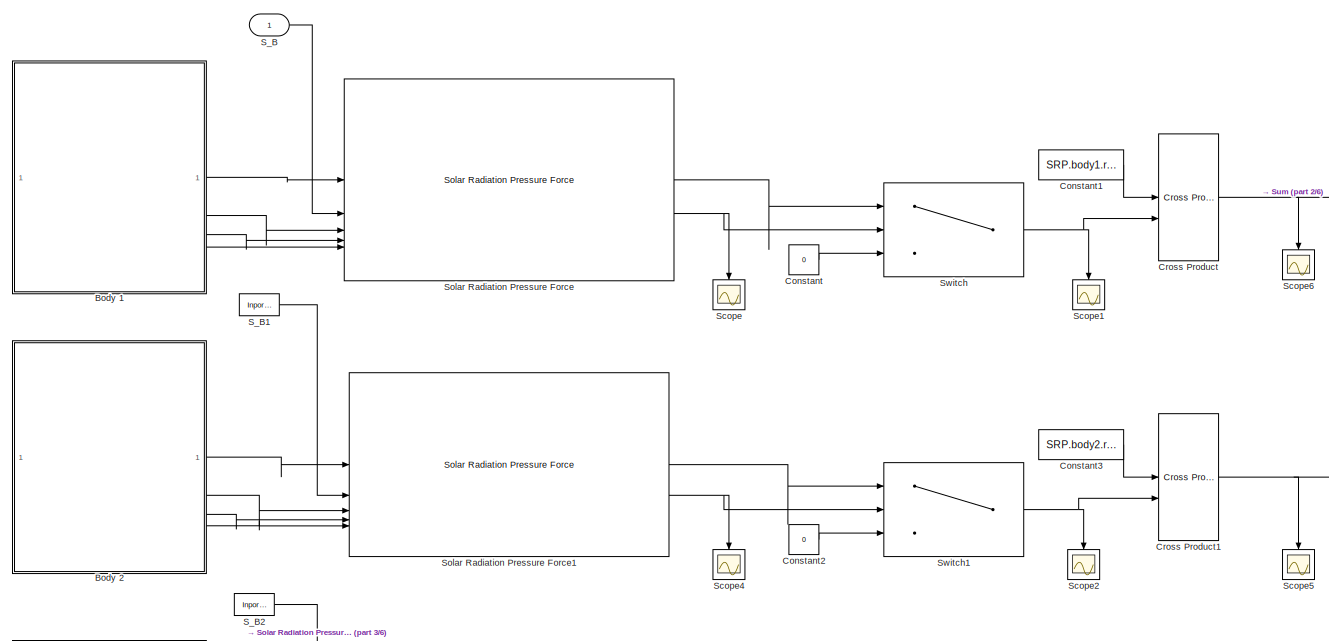
[diagram: Solar Radiation Torque (SRP) - part 1/6, top left region]
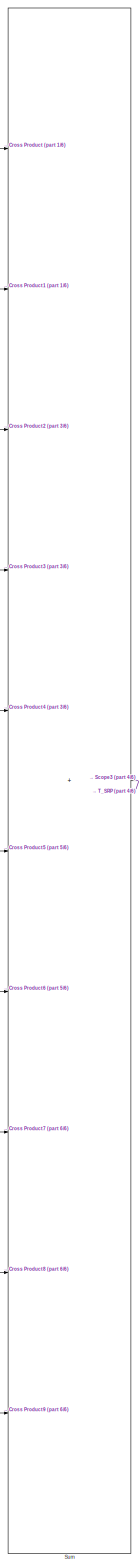
[diagram: Solar Radiation Torque (SRP) - part 2/6, right side, full height]
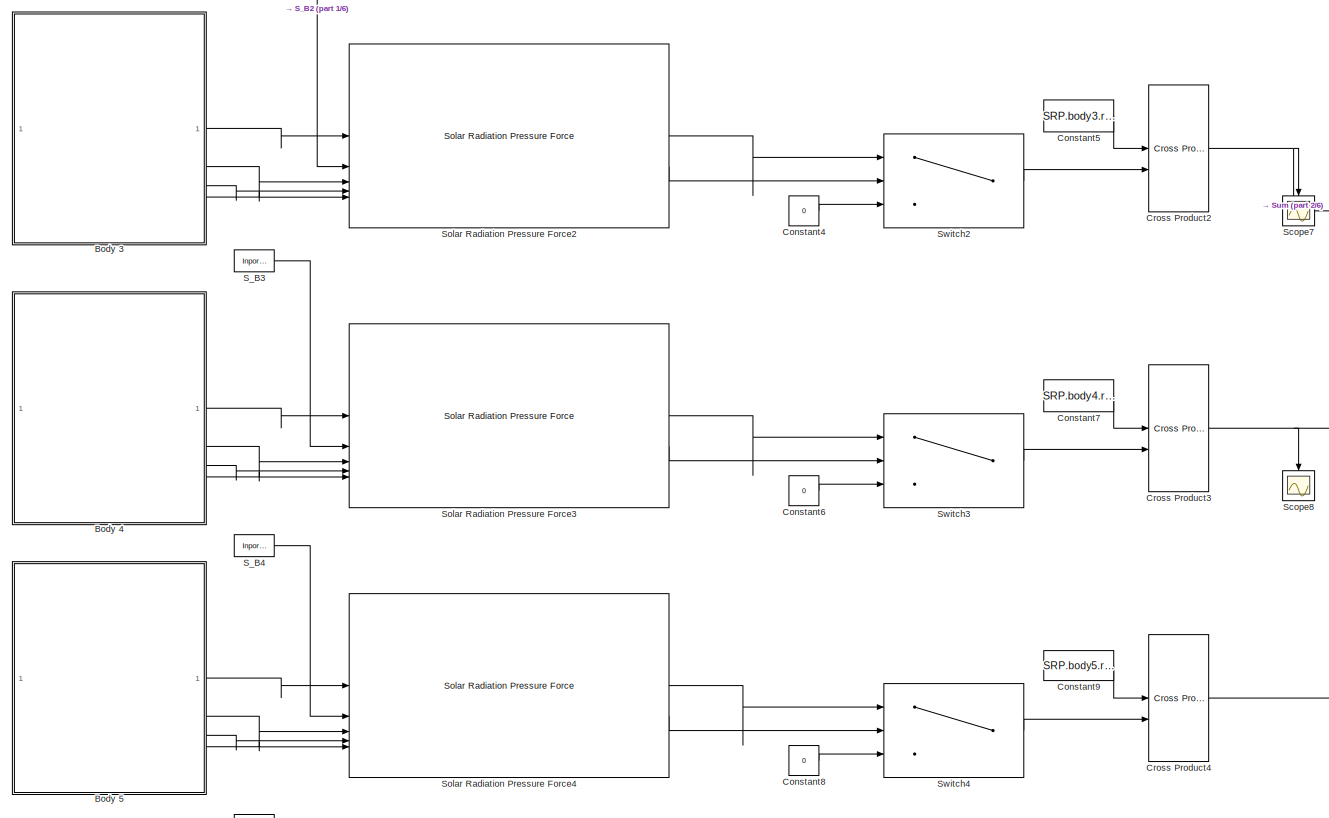
[diagram: Solar Radiation Torque (SRP) - part 3/6, middle left region]
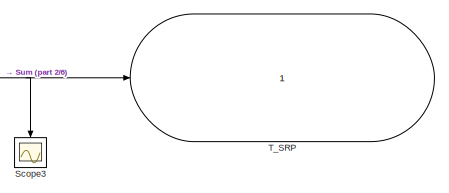
[diagram: Solar Radiation Torque (SRP) - part 4/6, middle right region]
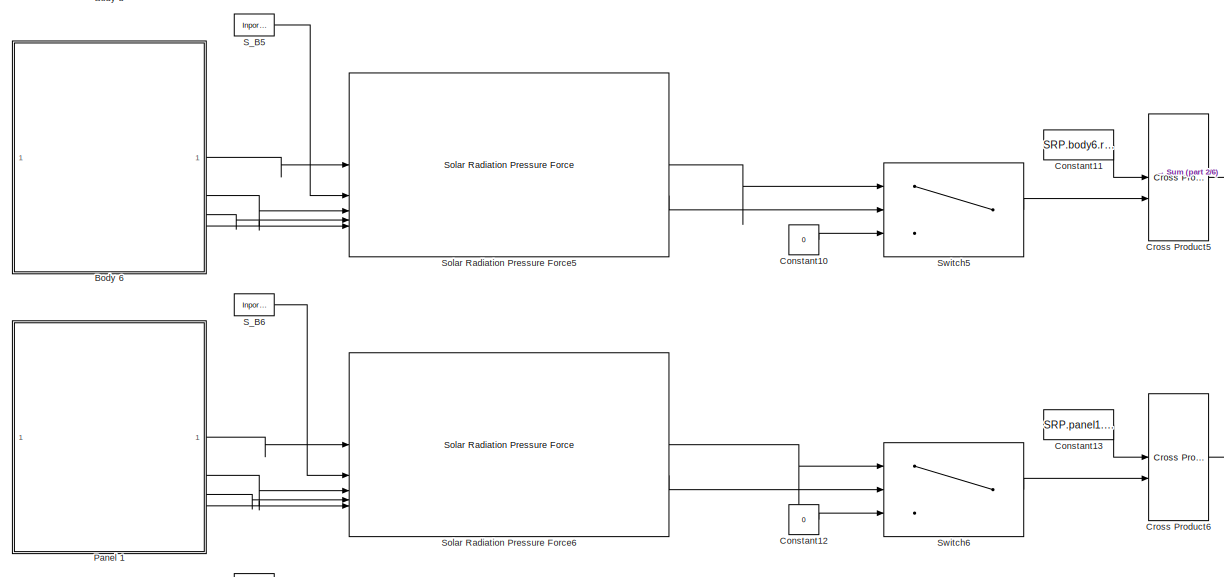
[diagram: Solar Radiation Torque (SRP) - part 5/6, middle left region]
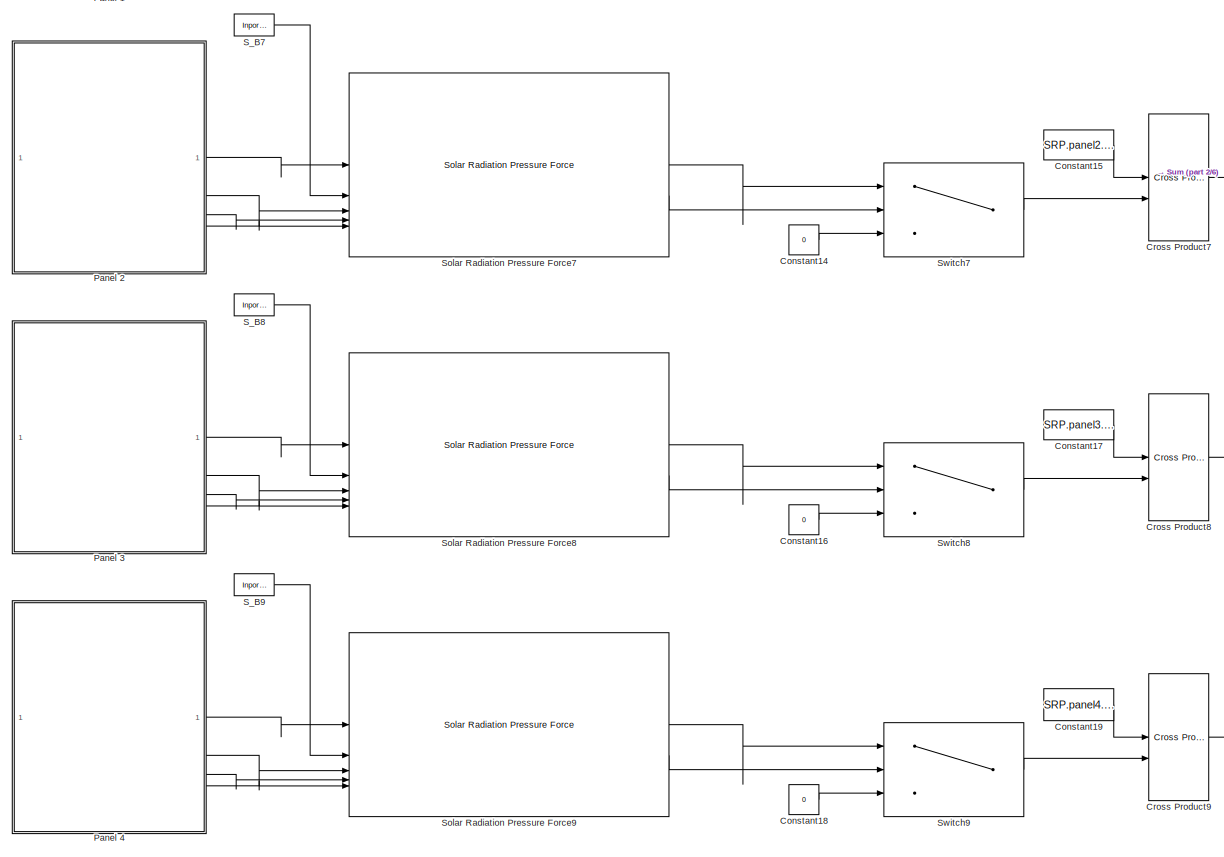
[diagram: Solar Radiation Torque (SRP) - part 6/6, bottom left region]
BLOCK [SubSystem] Solar Radiation Torque (SRP)
BLOCK [SubSystem] Solar Radiation Torque (SRP)/Body 1
BLOCK [Outport] Solar Radiation Torque (SRP)/Body 1/A_i
BLOCK [Constant] Solar Radiation Torque (SRP)/Body 1/Constant
  Value = SRP.body1.A
BLOCK [Constant] Solar Radiation Torque (SRP)/Body 1/Constant1
  Value = SRP.body1.N_hat
BLOCK [Constant] Solar Radiation Torque (SRP)/Body 1/Constant2
  Value = SRP.body1.rho_s
BLOCK [Constant] Solar Radiation Torque (SRP)/Body 1/Constant3
  Value = SRP.body1.rho_d
BLOCK [Outport] Solar Radiation Torque (SRP)/Body 1/N_B_hat_i
  Port = 2
BLOCK [Outport] Solar Radiation Torque (SRP)/Body 1/rho_d_i
  Port = 4
BLOCK [Outport] Solar Radiation Torque (SRP)/Body 1/rho_s_i
  Port = 3
BLOCK [SubSystem] Solar Radiation Torque (SRP)/Body 2
BLOCK [Outport] Solar Radiation Torque (SRP)/Body 2/A_i
BLOCK [Constant] Solar Radiation Torque (SRP)/Body 2/Constant
  Value = SRP.body2.A
BLOCK [Constant] Solar Radiation Torque (SRP)/Body 2/Constant1
  Value = SRP.body2.N_hat
BLOCK [Constant] Solar Radiation Torque (SRP)/Body 2/Constant2
  Value = SRP.body2.rho_s
BLOCK [Constant] Solar Radiation Torque (SRP)/Body 2/Constant3
  Value = SRP.body2.rho_d
BLOCK [Outport] Solar Radiation Torque (SRP)/Body 2/N_B_hat_i
  Port = 2
BLOCK [Outport] Solar Radiation Torque (SRP)/Body 2/rho_d_i
  Port = 4
BLOCK [Outport] Solar Radiation Torque (SRP)/Body 2/rho_s_i
  Port = 3
BLOCK [SubSystem] Solar Radiation Torque (SRP)/Body 3
BLOCK [Outport] Solar Radiation Torque (SRP)/Body 3/A_i
BLOCK [Constant] Solar Radiation Torque (SRP)/Body 3/Constant
  Value = SRP.body3.A
BLOCK [Constant] Solar Radiation Torque (SRP)/Body 3/Constant1
  Value = SRP.body3.N_hat
BLOCK [Constant] Solar Radiation Torque (SRP)/Body 3/Constant2
  Value = SRP.body3.rho_s
BLOCK [Constant] Solar Radiation Torque (SRP)/Body 3/Constant3
  Value = SRP.body3.rho_d
BLOCK [Outport] Solar Radiation Torque (SRP)/Body 3/N_B_hat_i
  Port = 2
BLOCK [Outport] Solar Radiation Torque (SRP)/Body 3/rho_d_i
  Port = 4
BLOCK [Outport] Solar Radiation Torque (SRP)/Body 3/rho_s_i
  Port = 3
BLOCK [SubSystem] Solar Radiation Torque (SRP)/Body 4
BLOCK [Outport] Solar Radiation Torque (SRP)/Body 4/A_i
BLOCK [Constant] Solar Radiation Torque (SRP)/Body 4/Constant
  Value = SRP.body4.A
BLOCK [Constant] Solar Radiation Torque (SRP)/Body 4/Constant1
  Value = SRP.body4.N_hat
BLOCK [Constant] Solar Radiation Torque (SRP)/Body 4/Constant2
  Value = SRP.body4.rho_s
BLOCK [Constant] Solar Radiation Torque (SRP)/Body 4/Constant3
  Value = SRP.body4.rho_d
BLOCK [Outport] Solar Radiation Torque (SRP)/Body 4/N_B_hat_i
  Port = 2
BLOCK [Outport] Solar Radiation Torque (SRP)/Body 4/rho_d_i
  Port = 4
BLOCK [Outport] Solar Radiation Torque (SRP)/Body 4/rho_s_i
  Port = 3
BLOCK [SubSystem] Solar Radiation Torque (SRP)/Body 5
BLOCK [Outport] Solar Radiation Torque (SRP)/Body 5/A_i
BLOCK [Constant] Solar Radiation Torque (SRP)/Body 5/Constant
  Value = SRP.body5.A
BLOCK [Constant] Solar Radiation Torque (SRP)/Body 5/Constant1
  Value = SRP.body5.N_hat
BLOCK [Constant] Solar Radiation Torque (SRP)/Body 5/Constant2
  Value = SRP.body5.rho_s
BLOCK [Constant] Solar Radiation Torque (SRP)/Body 5/Constant3
  Value = SRP.body5.rho_d
BLOCK [Outport] Solar Radiation Torque (SRP)/Body 5/N_B_hat_i
  Port = 2
BLOCK [Outport] Solar Radiation Torque (SRP)/Body 5/rho_d_i
  Port = 4
BLOCK [Outport] Solar Radiation Torque (SRP)/Body 5/rho_s_i
  Port = 3
BLOCK [SubSystem] Solar Radiation Torque (SRP)/Body 6
BLOCK [Outport] Solar Radiation Torque (SRP)/Body 6/A_i
BLOCK [Constant] Solar Radiation Torque (SRP)/Body 6/Constant
  Value = SRP.body6.A
BLOCK [Constant] Solar Radiation Torque (SRP)/Body 6/Constant1
  Value = SRP.body6.N_hat
BLOCK [Constant] Solar Radiation Torque (SRP)/Body 6/Constant2
  Value = SRP.body6.rho_s
BLOCK [Constant] Solar Radiation Torque (SRP)/Body 6/Constant3
  Value = SRP.body6.rho_d
BLOCK [Outport] Solar Radiation Torque (SRP)/Body 6/N_B_hat_i
  Port = 2
BLOCK [Outport] Solar Radiation Torque (SRP)/Body 6/rho_d_i
  Port = 4
BLOCK [Outport] Solar Radiation Torque (SRP)/Body 6/rho_s_i
  Port = 3
BLOCK [Constant] Solar Radiation Torque (SRP)/Constant
  Value = 0
BLOCK [Constant] Solar Radiation Torque (SRP)/Constant1
  Value = SRP.body1.r_F
BLOCK [Constant] Solar Radiation Torque (SRP)/Constant10
  Value = 0
BLOCK [Constant] Solar Radiation Torque (SRP)/Constant11
  Value = SRP.body6.r_F
BLOCK [Constant] Solar Radiation Torque (SRP)/Constant12
  Value = 0
BLOCK [Constant] Solar Radiation Torque (SRP)/Constant13
  Value = SRP.panel1.r_F
BLOCK [Constant] Solar Radiation Torque (SRP)/Constant14
  Value = 0
BLOCK [Constant] Solar Radiation Torque (SRP)/Constant15
  Value = SRP.panel2.r_F
BLOCK [Constant] Solar Radiation Torque (SRP)/Constant16
  Value = 0
BLOCK [Constant] Solar Radiation Torque (SRP)/Constant17
  Value = SRP.panel3.r_F
BLOCK [Constant] Solar Radiation Torque (SRP)/Constant18
  Value = 0
BLOCK [Constant] Solar Radiation Torque (SRP)/Constant19
  Value = SRP.panel4.r_F
BLOCK [Constant] Solar Radiation Torque (SRP)/Constant2
  Value = 0
BLOCK [Constant] Solar Radiation Torque (SRP)/Constant3
  Value = SRP.body2.r_F
BLOCK [Constant] Solar Radiation Torque (SRP)/Constant4
  Value = 0
BLOCK [Constant] Solar Radiation Torque (SRP)/Constant5
  Value = SRP.body3.r_F
BLOCK [Constant] Solar Radiation Torque (SRP)/Constant6
  Value = 0
BLOCK [Constant] Solar Radiation Torque (SRP)/Constant7
  Value = SRP.body4.r_F
BLOCK [Constant] Solar Radiation Torque (SRP)/Constant8
  Value = 0
BLOCK [Constant] Solar Radiation Torque (SRP)/Constant9
  Value = SRP.body5.r_F
BLOCK [Reference] Solar Radiation Torque (SRP)/Cross Product  REF=matrix_library/Cross Product
  LibrarySourceBlock = simulink/Matrix\nOperations/Cross Product
  SourceBlock = matrix_library/Cross Product
  SourceType = CrossProduct
BLOCK [Reference] Solar Radiation Torque (SRP)/Cross Product1  REF=matrix_library/Cross Product
  LibrarySourceBlock = simulink/Matrix\nOperations/Cross Product
  SourceBlock = matrix_library/Cross Product
  SourceType = CrossProduct
BLOCK [Reference] Solar Radiation Torque (SRP)/Cross Product2  REF=matrix_library/Cross Product
  LibrarySourceBlock = simulink/Matrix\nOperations/Cross Product
  SourceBlock = matrix_library/Cross Product
  SourceType = CrossProduct
BLOCK [Reference] Solar Radiation Torque (SRP)/Cross Product3  REF=matrix_library/Cross Product
  LibrarySourceBlock = simulink/Matrix\nOperations/Cross Product
  SourceBlock = matrix_library/Cross Product
  SourceType = CrossProduct
BLOCK [Reference] Solar Radiation Torque (SRP)/Cross Product4  REF=matrix_library/Cross Product
  LibrarySourceBlock = simulink/Matrix\nOperations/Cross Product
  SourceBlock = matrix_library/Cross Product
  SourceType = CrossProduct
BLOCK [Reference] Solar Radiation Torque (SRP)/Cross Product5  REF=matrix_library/Cross Product
  LibrarySourceBlock = simulink/Matrix\nOperations/Cross Product
  SourceBlock = matrix_library/Cross Product
  SourceType = CrossProduct
BLOCK [Reference] Solar Radiation Torque (SRP)/Cross Product6  REF=matrix_library/Cross Product
  LibrarySourceBlock = simulink/Matrix\nOperations/Cross Product
  SourceBlock = matrix_library/Cross Product
  SourceType = CrossProduct
BLOCK [Reference] Solar Radiation Torque (SRP)/Cross Product7  REF=matrix_library/Cross Product
  LibrarySourceBlock = simulink/Matrix\nOperations/Cross Product
  SourceBlock = matrix_library/Cross Product
  SourceType = CrossProduct
BLOCK [Reference] Solar Radiation Torque (SRP)/Cross Product8  REF=matrix_library/Cross Product
  LibrarySourceBlock = simulink/Matrix\nOperations/Cross Product
  SourceBlock = matrix_library/Cross Product
  SourceType = CrossProduct
BLOCK [Reference] Solar Radiation Torque (SRP)/Cross Product9  REF=matrix_library/Cross Product
  LibrarySourceBlock = simulink/Matrix\nOperations/Cross Product
  SourceBlock = matrix_library/Cross Product
  SourceType = CrossProduct
BLOCK [SubSystem] Solar Radiation Torque (SRP)/Panel 1
BLOCK [Outport] Solar Radiation Torque (SRP)/Panel 1/A_i
BLOCK [Constant] Solar Radiation Torque (SRP)/Panel 1/Constant
  Value = SRP.panel1.A
BLOCK [Constant] Solar Radiation Torque (SRP)/Panel 1/Constant1
  Value = SRP.panel1.N_hat
BLOCK [Constant] Solar Radiation Torque (SRP)/Panel 1/Constant2
  Value = SRP.panel1.rho_s
BLOCK [Constant] Solar Radiation Torque (SRP)/Panel 1/Constant3
  Value = SRP.panel1.rho_d
BLOCK [Outport] Solar Radiation Torque (SRP)/Panel 1/N_B_hat_i
  Port = 2
BLOCK [Outport] Solar Radiation Torque (SRP)/Panel 1/rho_d_i
  Port = 4
BLOCK [Outport] Solar Radiation Torque (SRP)/Panel 1/rho_s_i
  Port = 3
BLOCK [SubSystem] Solar Radiation Torque (SRP)/Panel 2
BLOCK [Outport] Solar Radiation Torque (SRP)/Panel 2/A_i
BLOCK [Constant] Solar Radiation Torque (SRP)/Panel 2/Constant
  Value = SRP.panel2.A
BLOCK [Constant] Solar Radiation Torque (SRP)/Panel 2/Constant1
  Value = SRP.panel2.N_hat
BLOCK [Constant] Solar Radiation Torque (SRP)/Panel 2/Constant2
  Value = SRP.panel2.rho_s
BLOCK [Constant] Solar Radiation Torque (SRP)/Panel 2/Constant3
  Value = SRP.panel2.rho_d
BLOCK [Outport] Solar Radiation Torque (SRP)/Panel 2/N_B_hat_i
  Port = 2
BLOCK [Outport] Solar Radiation Torque (SRP)/Panel 2/rho_d_i
  Port = 4
BLOCK [Outport] Solar Radiation Torque (SRP)/Panel 2/rho_s_i
  Port = 3
BLOCK [SubSystem] Solar Radiation Torque (SRP)/Panel 3
BLOCK [Outport] Solar Radiation Torque (SRP)/Panel 3/A_i
BLOCK [Constant] Solar Radiation Torque (SRP)/Panel 3/Constant
  Value = SRP.panel3.A
BLOCK [Constant] Solar Radiation Torque (SRP)/Panel 3/Constant1
  Value = SRP.panel3.N_hat
BLOCK [Constant] Solar Radiation Torque (SRP)/Panel 3/Constant2
  Value = SRP.panel3.rho_s
BLOCK [Constant] Solar Radiation Torque (SRP)/Panel 3/Constant3
  Value = SRP.panel3.rho_d
BLOCK [Outport] Solar Radiation Torque (SRP)/Panel 3/N_B_hat_i
  Port = 2
BLOCK [Outport] Solar Radiation Torque (SRP)/Panel 3/rho_d_i
  Port = 4
BLOCK [Outport] Solar Radiation Torque (SRP)/Panel 3/rho_s_i
  Port = 3
BLOCK [SubSystem] Solar Radiation Torque (SRP)/Panel 4
BLOCK [Outport] Solar Radiation Torque (SRP)/Panel 4/A_i
BLOCK [Constant] Solar Radiation Torque (SRP)/Panel 4/Constant
  Value = SRP.panel4.A
BLOCK [Constant] Solar Radiation Torque (SRP)/Panel 4/Constant1
  Value = SRP.panel4.N_hat
BLOCK [Constant] Solar Radiation Torque (SRP)/Panel 4/Constant2
  Value = SRP.panel4.rho_s
BLOCK [Constant] Solar Radiation Torque (SRP)/Panel 4/Constant3
  Value = SRP.panel4.rho_d
BLOCK [Outport] Solar Radiation Torque (SRP)/Panel 4/N_B_hat_i
  Port = 2
BLOCK [Outport] Solar Radiation Torque (SRP)/Panel 4/rho_d_i
  Port = 4
BLOCK [Outport] Solar Radiation Torque (SRP)/Panel 4/rho_s_i
  Port = 3
BLOCK [Inport] Solar Radiation Torque (SRP)/S_B
BLOCK [InportShadow] Solar Radiation Torque (SRP)/S_B1
BLOCK [InportShadow] Solar Radiation Torque (SRP)/S_B2
BLOCK [InportShadow] Solar Radiation Torque (SRP)/S_B3
BLOCK [InportShadow] Solar Radiation Torque (SRP)/S_B4
BLOCK [InportShadow] Solar Radiation Torque (SRP)/S_B5
BLOCK [InportShadow] Solar Radiation Torque (SRP)/S_B6
BLOCK [InportShadow] Solar Radiation Torque (SRP)/S_B7
BLOCK [InportShadow] Solar Radiation Torque (SRP)/S_B8
BLOCK [InportShadow] Solar Radiation Torque (SRP)/S_B9
BLOCK [Scope] Solar Radiation Torque (SRP)/Scope
  ActiveDisplayYMaximum = 1
  ActiveDisplayYMinimum = -1
  DataLoggingVariableName = ScopeData9
  Floating = off
  GraphicalSettings = {"Style":{"BackgroundColor":[0.12941176470588237,0.12941176470588237,0.12941176470588237],"AxesColor":[0.07058823529411765,0.07058823529411765,0.07058823529411765],"LabelsColor":[0.8509803921568627,0.8509803921568627,0.8509803921568627],"PreserveColors":false,"Visible":[true],"LineStyle":["-"],"LineWidth":[1.5],"BarWidth":[0.9],"LineColor":["auto"],"LineFaceAlpha":[1],"LineEdgeAlpha":[1],"Marker":...<+1946ch>
  MultipleDisplayCache = [{"MaxYLimMag":1,"MaxYLimReal":1,"MinYLimMag":0,"MinYLimReal":-1,"PlotAsMagnitudePhase":false,"ShowGrid":true,"ShowLegend":false,"Title":"%<SignalLabel>","YLabel":""}]
  NameLocation = left
  NumInputPorts = 1
  ScopeFrameLocation = window
  WasSavedAsWebScope = on
  WindowPosition = [476.000000,281.000000,560.000000,420.000000,]
BLOCK [Scope] Solar Radiation Torque (SRP)/Scope1
  ActiveDisplayYMaximum = 1
  ActiveDisplayYMinimum = -1
  DataLoggingVariableName = ScopeData10
  Floating = off
  GraphicalSettings = {"Style":{"BackgroundColor":[0.12941176470588237,0.12941176470588237,0.12941176470588237],"AxesColor":[0.07058823529411765,0.07058823529411765,0.07058823529411765],"LabelsColor":[0.8509803921568627,0.8509803921568627,0.8509803921568627],"PreserveColors":false,"Visible":[true,true,true],"LineStyle":["-","-","-"],"LineWidth":[1.5,1.5,1.5],"BarWidth":[0.9,0.9,0.9],"LineColor":["auto","auto","auto"],"...<+2245ch>
  MultipleDisplayCache = [{"MaxYLimMag":1,"MaxYLimReal":1,"MinYLimMag":0,"MinYLimReal":-1,"PlotAsMagnitudePhase":false,"ShowGrid":true,"ShowLegend":true,"Title":"%<SignalLabel>","YLabel":""}]
  NameLocation = left
  NumInputPorts = 1
  ScopeFrameLocation = window
  ShowLegend = on
  WasSavedAsWebScope = on
  WindowPosition = [236.000000,223.000000,560.000000,420.000000,]
BLOCK [Scope] Solar Radiation Torque (SRP)/Scope2
  ActiveDisplayYMaximum = 1
  ActiveDisplayYMinimum = -1
  DataLoggingVariableName = ScopeData11
  Floating = off
  GraphicalSettings = {"Style":{"BackgroundColor":[0.12941176470588237,0.12941176470588237,0.12941176470588237],"AxesColor":[0.07058823529411765,0.07058823529411765,0.07058823529411765],"LabelsColor":[0.8509803921568627,0.8509803921568627,0.8509803921568627],"PreserveColors":false,"Visible":[true,true,true],"LineStyle":["-","-","-"],"LineWidth":[1.5,1.5,1.5],"BarWidth":[0.9,0.9,0.9],"LineColor":["auto","auto","auto"],"...<+2135ch>
  MultipleDisplayCache = [{"MaxYLimMag":1,"MaxYLimReal":1,"MinYLimMag":0,"MinYLimReal":-1,"PlotAsMagnitudePhase":false,"ShowGrid":true,"ShowLegend":true,"Title":"%<SignalLabel>","YLabel":""}]
  NameLocation = left
  NumInputPorts = 1
  ScopeFrameLocation = window
  ShowLegend = on
  WasSavedAsWebScope = on
  WindowPosition = [284.000000,192.000000,560.000000,420.000000,]
BLOCK [Scope] Solar Radiation Torque (SRP)/Scope3
  ActiveDisplayYMaximum = 9.2718061255302776E-25
  ActiveDisplayYMinimum = -5.1359030627651383E-25
  DataLoggingVariableName = ScopeData12
  Floating = off
  GraphicalSettings = {"AxesScalingProperties":{"AlignXAxis":"Center","AlignYAxis":"Center","AutoScaleXAxisLimits":false,"AxesScaling":"Manual","AxesScalingNumUpdates":10,"ExpandOnly":true,"ScaleAxesLimitsAtStop":false,"XAxisDataRange":100,"YAxisDataRange":80},"DisplayProperties":{"ColorOrder":["auto","auto","auto","auto","auto","auto","auto","auto","auto","auto","auto","auto","auto","auto","auto","auto","auto","auto",...<+2242ch>
  MultipleDisplayCache = [{"MaxYLimMag":9.2718061255302776E-25,"MaxYLimReal":9.2718061255302776E-25,"MinYLimMag":0,"MinYLimReal":-5.1359030627651383E-25,"PlotAsMagnitudePhase":false,"ShowGrid":true,"ShowLegend":true,"Title":"%<SignalLabel>","YLabel":""}]
  NameLocation = left
  NumInputPorts = 1
  ScopeFrameLocation = window
  ShowLegend = on
  WasSavedAsWebScope = on
  WindowPosition = [512.000000,281.000000,560.000000,420.000000,]
BLOCK [Scope] Solar Radiation Torque (SRP)/Scope4
  ActiveDisplayYMaximum = 1
  ActiveDisplayYMinimum = -1
  DataLoggingVariableName = ScopeData13
  Floating = off
  GraphicalSettings = {"Style":{"BackgroundColor":[0.12941176470588237,0.12941176470588237,0.12941176470588237],"AxesColor":[0.07058823529411765,0.07058823529411765,0.07058823529411765],"LabelsColor":[0.8509803921568627,0.8509803921568627,0.8509803921568627],"PreserveColors":false,"Visible":[true],"LineStyle":["-"],"LineWidth":[1.5],"BarWidth":[0.9],"LineColor":["auto"],"LineFaceAlpha":[1],"LineEdgeAlpha":[1],"Marker":...<+1948ch>
  MultipleDisplayCache = [{"MaxYLimMag":1,"MaxYLimReal":1,"MinYLimMag":0,"MinYLimReal":-1,"PlotAsMagnitudePhase":false,"ShowGrid":true,"ShowLegend":false,"Title":"%<SignalLabel>","YLabel":""}]
  NameLocation = left
  NumInputPorts = 1
  ScopeFrameLocation = window
  WasSavedAsWebScope = on
  WindowPosition = [476.000000,281.000000,560.000000,420.000000,]
BLOCK [Scope] Solar Radiation Torque (SRP)/Scope5
  ActiveDisplayYMaximum = 1
  ActiveDisplayYMinimum = -1
  DataLoggingVariableName = ScopeData14
  Floating = off
  GraphicalSettings = {"Style":{"BackgroundColor":[0.12941176470588237,0.12941176470588237,0.12941176470588237],"AxesColor":[0.07058823529411765,0.07058823529411765,0.07058823529411765],"LabelsColor":[0.8509803921568627,0.8509803921568627,0.8509803921568627],"PreserveColors":false,"Visible":[true,true,true],"LineStyle":["-","-","-"],"LineWidth":[1.5,1.5,1.5],"BarWidth":[0.9,0.9,0.9],"LineColor":["auto","auto","auto"],"...<+2293ch>
  MultipleDisplayCache = [{"MaxYLimMag":1,"MaxYLimReal":1,"MinYLimMag":0,"MinYLimReal":-1,"PlotAsMagnitudePhase":false,"ShowGrid":true,"ShowLegend":false,"Title":"%<SignalLabel>","YLabel":""}]
  NameLocation = left
  NumInputPorts = 1
  ScopeFrameLocation = window
  WasSavedAsWebScope = on
  WindowPosition = [476.000000,281.000000,560.000000,420.000000,]
BLOCK [Scope] Solar Radiation Torque (SRP)/Scope6
  ActiveDisplayYMaximum = 1
  ActiveDisplayYMinimum = -1
  DataLoggingVariableName = ScopeData15
  Floating = off
  GraphicalSettings = {"Style":{"BackgroundColor":[0.12941176470588237,0.12941176470588237,0.12941176470588237],"AxesColor":[0.07058823529411765,0.07058823529411765,0.07058823529411765],"LabelsColor":[0.8509803921568627,0.8509803921568627,0.8509803921568627],"PreserveColors":false,"Visible":[true,true,true],"LineStyle":["-","-","-"],"LineWidth":[1.5,1.5,1.5],"BarWidth":[0.9,0.9,0.9],"LineColor":["auto","auto","auto"],"...<+2285ch>
  MultipleDisplayCache = [{"MaxYLimMag":1,"MaxYLimReal":1,"MinYLimMag":0,"MinYLimReal":-1,"PlotAsMagnitudePhase":false,"ShowGrid":true,"ShowLegend":true,"Title":"%<SignalLabel>","YLabel":""}]
  NameLocation = left
  NumInputPorts = 1
  ScopeFrameLocation = window
  ShowLegend = on
  WasSavedAsWebScope = on
  WindowPosition = [797.000000,223.000000,560.000000,420.000000,]
BLOCK [Scope] Solar Radiation Torque (SRP)/Scope7
  ActiveDisplayYMaximum = 1
  ActiveDisplayYMinimum = -1
  DataLoggingVariableName = ScopeData18
  Floating = off
  GraphicalSettings = {"Style":{"BackgroundColor":[0.12941176470588237,0.12941176470588237,0.12941176470588237],"AxesColor":[0.07058823529411765,0.07058823529411765,0.07058823529411765],"LabelsColor":[0.8509803921568627,0.8509803921568627,0.8509803921568627],"PreserveColors":false,"Visible":[true,true,true],"LineStyle":["-","-","-"],"LineWidth":[1.5,1.5,1.5],"BarWidth":[0.9,0.9,0.9],"LineColor":["auto","auto","auto"],"...<+2291ch>
  MultipleDisplayCache = [{"MaxYLimMag":1,"MaxYLimReal":1,"MinYLimMag":0,"MinYLimReal":-1,"PlotAsMagnitudePhase":false,"ShowGrid":true,"ShowLegend":true,"Title":"%<SignalLabel>","YLabel":""}]
  NameLocation = left
  NumInputPorts = 1
  ScopeFrameLocation = window
  ShowLegend = on
  WasSavedAsWebScope = on
  WindowPosition = [797.000000,223.000000,560.000000,420.000000,]
BLOCK [Scope] Solar Radiation Torque (SRP)/Scope8
  ActiveDisplayYMaximum = 1
  ActiveDisplayYMinimum = -1
  DataLoggingVariableName = ScopeData19
  Floating = off
  GraphicalSettings = {"Style":{"BackgroundColor":[0.12941176470588237,0.12941176470588237,0.12941176470588237],"AxesColor":[0.07058823529411765,0.07058823529411765,0.07058823529411765],"LabelsColor":[0.8509803921568627,0.8509803921568627,0.8509803921568627],"PreserveColors":false,"Visible":[true,true,true],"LineStyle":["-","-","-"],"LineWidth":[1.5,1.5,1.5],"BarWidth":[0.9,0.9,0.9],"LineColor":["auto","auto","auto"],"...<+2283ch>
  MultipleDisplayCache = [{"MaxYLimMag":1,"MaxYLimReal":1,"MinYLimMag":0,"MinYLimReal":-1,"PlotAsMagnitudePhase":false,"ShowGrid":true,"ShowLegend":true,"Title":"%<SignalLabel>","YLabel":""}]
  NameLocation = left
  NumInputPorts = 1
  ScopeFrameLocation = window
  ShowLegend = on
  WasSavedAsWebScope = on
  WindowPosition = [797.000000,223.000000,560.000000,420.000000,]
BLOCK [Reference] Solar Radiation Torque (SRP)/Solar Radiation Pressure Force  REF=lIBRARY_SAD_SAD/Solar Radiation Pressure Force
  SourceBlock = lIBRARY_SAD_SAD/Solar Radiation Pressure Force
  SourceType = SubSystem
BLOCK [Reference] Solar Radiation Torque (SRP)/Solar Radiation Pressure Force1  REF=lIBRARY_SAD_SAD/Solar Radiation Pressure Force
  SourceBlock = lIBRARY_SAD_SAD/Solar Radiation Pressure Force
  SourceType = SubSystem
BLOCK [Reference] Solar Radiation Torque (SRP)/Solar Radiation Pressure Force2  REF=lIBRARY_SAD_SAD/Solar Radiation Pressure Force
  SourceBlock = lIBRARY_SAD_SAD/Solar Radiation Pressure Force
  SourceType = SubSystem
BLOCK [Reference] Solar Radiation Torque (SRP)/Solar Radiation Pressure Force3  REF=lIBRARY_SAD_SAD/Solar Radiation Pressure Force
  SourceBlock = lIBRARY_SAD_SAD/Solar Radiation Pressure Force
  SourceType = SubSystem
BLOCK [Reference] Solar Radiation Torque (SRP)/Solar Radiation Pressure Force4  REF=lIBRARY_SAD_SAD/Solar Radiation Pressure Force
  SourceBlock = lIBRARY_SAD_SAD/Solar Radiation Pressure Force
  SourceType = SubSystem
BLOCK [Reference] Solar Radiation Torque (SRP)/Solar Radiation Pressure Force5  REF=lIBRARY_SAD_SAD/Solar Radiation Pressure Force
  SourceBlock = lIBRARY_SAD_SAD/Solar Radiation Pressure Force
  SourceType = SubSystem
BLOCK [Reference] Solar Radiation Torque (SRP)/Solar Radiation Pressure Force6  REF=lIBRARY_SAD_SAD/Solar Radiation Pressure Force
  SourceBlock = lIBRARY_SAD_SAD/Solar Radiation Pressure Force
  SourceType = SubSystem
BLOCK [Reference] Solar Radiation Torque (SRP)/Solar Radiation Pressure Force7  REF=lIBRARY_SAD_SAD/Solar Radiation Pressure Force
  SourceBlock = lIBRARY_SAD_SAD/Solar Radiation Pressure Force
  SourceType = SubSystem
BLOCK [Reference] Solar Radiation Torque (SRP)/Solar Radiation Pressure Force8  REF=lIBRARY_SAD_SAD/Solar Radiation Pressure Force
  SourceBlock = lIBRARY_SAD_SAD/Solar Radiation Pressure Force
  SourceType = SubSystem
BLOCK [Reference] Solar Radiation Torque (SRP)/Solar Radiation Pressure Force9  REF=lIBRARY_SAD_SAD/Solar Radiation Pressure Force
  SourceBlock = lIBRARY_SAD_SAD/Solar Radiation Pressure Force
  SourceType = SubSystem
BLOCK [Sum] Solar Radiation Torque (SRP)/Sum
  IconShape = rectangular
  Inputs = ++++++++++
BLOCK [Switch] Solar Radiation Torque (SRP)/Switch
  Criteria = u2 > Threshold
  InputSameDT = off
  SaturateOnIntegerOverflow = off
BLOCK [Switch] Solar Radiation Torque (SRP)/Switch1
  Criteria = u2 > Threshold
  InputSameDT = off
  SaturateOnIntegerOverflow = off
BLOCK [Switch] Solar Radiation Torque (SRP)/Switch2
  Criteria = u2 > Threshold
  InputSameDT = off
  SaturateOnIntegerOverflow = off
BLOCK [Switch] Solar Radiation Torque (SRP)/Switch3
  Criteria = u2 > Threshold
  InputSameDT = off
  SaturateOnIntegerOverflow = off
BLOCK [Switch] Solar Radiation Torque (SRP)/Switch4
  Criteria = u2 > Threshold
  InputSameDT = off
  SaturateOnIntegerOverflow = off
BLOCK [Switch] Solar Radiation Torque (SRP)/Switch5
  Criteria = u2 > Threshold
  InputSameDT = off
  SaturateOnIntegerOverflow = off
BLOCK [Switch] Solar Radiation Torque (SRP)/Switch6
  Criteria = u2 > Threshold
  InputSameDT = off
  SaturateOnIntegerOverflow = off
BLOCK [Switch] Solar Radiation Torque (SRP)/Switch7
  Criteria = u2 > Threshold
  InputSameDT = off
  SaturateOnIntegerOverflow = off
BLOCK [Switch] Solar Radiation Torque (SRP)/Switch8
  Criteria = u2 > Threshold
  InputSameDT = off
  SaturateOnIntegerOverflow = off
BLOCK [Switch] Solar Radiation Torque (SRP)/Switch9
  Criteria = u2 > Threshold
  InputSameDT = off
  SaturateOnIntegerOverflow = off
BLOCK [Outport] Solar Radiation Torque (SRP)/T_SRP
BLOCK [SubSystem] Sun-Earth Orbit
BLOCK [Clock] Sun-Earth Orbit/Clock
BLOCK [Clock] Sun-Earth Orbit/Clock1
BLOCK [Clock] Sun-Earth Orbit/Clock2
BLOCK [Constant] Sun-Earth Orbit/Constant
  Value = n_sun
BLOCK [Constant] Sun-Earth Orbit/Constant1
  Value = eps_E
BLOCK [Constant] Sun-Earth Orbit/Constant2
  Value = r_sun
BLOCK [Constant] Sun-Earth Orbit/Constant3
  Value = n_sun
BLOCK [Constant] Sun-Earth Orbit/Constant4
  Value = eps_E
BLOCK [Constant] Sun-Earth Orbit/Constant5
  Value = n_sun
BLOCK [Trigonometry] Sun-Earth Orbit/Cos
  Operator = cos
BLOCK [Trigonometry] Sun-Earth Orbit/Cos1
  Operator = cos
BLOCK [Trigonometry] Sun-Earth Orbit/Cos2
BLOCK [Product] Sun-Earth Orbit/Product
BLOCK [Product] Sun-Earth Orbit/Product1
BLOCK [Product] Sun-Earth Orbit/Product2
BLOCK [Product] Sun-Earth Orbit/Product3
BLOCK [Product] Sun-Earth Orbit/Product4
BLOCK [Product] Sun-Earth Orbit/Product5
BLOCK [Trigonometry] Sun-Earth Orbit/Sin
BLOCK [Trigonometry] Sun-Earth Orbit/Sin1
BLOCK [Concatenate] Sun-Earth Orbit/Vector Concatenate
  NumInputs = 3
BLOCK [Outport] Sun-Earth Orbit/r_sun_N
BLOCK [SubSystem] Two-body Dynamics (keplerian elements)
BLOCK [SubSystem] Two-body Dynamics (keplerian elements)/Conic Equation
BLOCK [Constant] Two-body Dynamics (keplerian elements)/Conic Equation/Constant
  Value = 2
BLOCK [Constant] Two-body Dynamics (keplerian elements)/Conic Equation/Constant1
BLOCK [Constant] Two-body Dynamics (keplerian elements)/Conic Equation/Constant2
BLOCK [Trigonometry] Two-body Dynamics (keplerian elements)/Conic Equation/Cos
  Operator = cos
BLOCK [Product] Two-body Dynamics (keplerian elements)/Conic Equation/Divide
  Inputs = */
BLOCK [Math] Two-body Dynamics (keplerian elements)/Conic Equation/Power
  Operator = pow
BLOCK [Product] Two-body Dynamics (keplerian elements)/Conic Equation/Product
BLOCK [Product] Two-body Dynamics (keplerian elements)/Conic Equation/Product1
BLOCK [Sum] Two-body Dynamics (keplerian elements)/Conic Equation/Sum
  IconShape = rectangular
  Inputs = +-
BLOCK [Sum] Two-body Dynamics (keplerian elements)/Conic Equation/Sum1
  IconShape = rectangular
  Inputs = +-
BLOCK [Inport] Two-body Dynamics (keplerian elements)/Conic Equation/a
BLOCK [Inport] Two-body Dynamics (keplerian elements)/Conic Equation/e
  Port = 2
BLOCK [Outport] Two-body Dynamics (keplerian elements)/Conic Equation/r
BLOCK [Inport] Two-body Dynamics (keplerian elements)/Conic Equation/theta
  Port = 3
BLOCK [Constant] Two-body Dynamics (keplerian elements)/Constant
  Value = 2*pi
BLOCK [Constant] Two-body Dynamics (keplerian elements)/Constant1
BLOCK [Constant] Two-body Dynamics (keplerian elements)/Constant2
  Value = 2
BLOCK [Constant] Two-body Dynamics (keplerian elements)/Constant3
  Value = 2
BLOCK [Constant] Two-body Dynamics (keplerian elements)/Constant4
BLOCK [Constant] Two-body Dynamics (keplerian elements)/Constant5
  Value = 3/2
BLOCK [Trigonometry] Two-body Dynamics (keplerian elements)/Cos
  Operator = cos
BLOCK [Demux] Two-body Dynamics (keplerian elements)/Demux
  DisplayOption = none
  Outputs = 6
BLOCK [Product] Two-body Dynamics (keplerian elements)/Divide
  Inputs = */
BLOCK [Product] Two-body Dynamics (keplerian elements)/Divide1
  Inputs = **/
BLOCK [Gain] Two-body Dynamics (keplerian elements)/Gain
  Gain = pi/180
BLOCK [Gain] Two-body Dynamics (keplerian elements)/Gain1
  Gain = pi/180
BLOCK [Gain] Two-body Dynamics (keplerian elements)/Gain2
  Gain = pi/180
BLOCK [Gain] Two-body Dynamics (keplerian elements)/Gain3
  Gain = pi/180
BLOCK [Integrator] Two-body Dynamics (keplerian elements)/Integrator
  InitialCondition = theta*(pi/180)
  WrapState = on
  WrappedStateLowerValue = 0
  WrappedStateUpperValue = 2*pi
BLOCK [Inport] Two-body Dynamics (keplerian elements)/Keplerian Elements
BLOCK [SubSystem] Two-body Dynamics (keplerian elements)/Orbital Period
BLOCK [Constant] Two-body Dynamics (keplerian elements)/Orbital Period/Constant
  Value = 3
BLOCK [Product] Two-body Dynamics (keplerian elements)/Orbital Period/Divide
  Inputs = */
BLOCK [Gain] Two-body Dynamics (keplerian elements)/Orbital Period/Gain
  Gain = 2*pi
BLOCK [Math] Two-body Dynamics (keplerian elements)/Orbital Period/Power
  Operator = pow
BLOCK [Sqrt] Two-body Dynamics (keplerian elements)/Orbital Period/Sqrt
BLOCK [Outport] Two-body Dynamics (keplerian elements)/Orbital Period/T
BLOCK [Inport] Two-body Dynamics (keplerian elements)/Orbital Period/a
BLOCK [Inport] Two-body Dynamics (keplerian elements)/Orbital Period/mu
  Port = 2
BLOCK [Math] Two-body Dynamics (keplerian elements)/Power
  Operator = pow
BLOCK [Math] Two-body Dynamics (keplerian elements)/Power1
  Operator = pow
BLOCK [Math] Two-body Dynamics (keplerian elements)/Power2
  Operator = pow
BLOCK [Product] Two-body Dynamics (keplerian elements)/Product1
BLOCK [Sum] Two-body Dynamics (keplerian elements)/Sum
  IconShape = rectangular
BLOCK [Sum] Two-body Dynamics (keplerian elements)/Sum1
  IconShape = rectangular
  Inputs = +-
BLOCK [Inport] Two-body Dynamics (keplerian elements)/mu
  Port = 2
BLOCK [SubSystem] Two-body Dynamics (keplerian elements)/r (Inertial Frame)
BLOCK [Trigonometry] Two-body Dynamics (keplerian elements)/r (Inertial Frame)/Cos
  Operator = cos
BLOCK [Trigonometry] Two-body Dynamics (keplerian elements)/r (Inertial Frame)/Cos1
  Operator = cos
BLOCK [Trigonometry] Two-body Dynamics (keplerian elements)/r (Inertial Frame)/Cos2
  Operator = cos
BLOCK [Trigonometry] Two-body Dynamics (keplerian elements)/r (Inertial Frame)/Cos3
  Operator = cos
BLOCK [Trigonometry] Two-body Dynamics (keplerian elements)/r (Inertial Frame)/Cos4
  Operator = cos
BLOCK [Trigonometry] Two-body Dynamics (keplerian elements)/r (Inertial Frame)/Cos5
  Operator = cos
BLOCK [Product] Two-body Dynamics (keplerian elements)/r (Inertial Frame)/Product
BLOCK [Product] Two-body Dynamics (keplerian elements)/r (Inertial Frame)/Product1
BLOCK [Product] Two-body Dynamics (keplerian elements)/r (Inertial Frame)/Product2
  Inputs = 3
BLOCK [Product] Two-body Dynamics (keplerian elements)/r (Inertial Frame)/Product3
BLOCK [Product] Two-body Dynamics (keplerian elements)/r (Inertial Frame)/Product4
  Inputs = 3
BLOCK [Product] Two-body Dynamics (keplerian elements)/r (Inertial Frame)/Product5
BLOCK [Trigonometry] Two-body Dynamics (keplerian elements)/r (Inertial Frame)/Sin
BLOCK [Trigonometry] Two-body Dynamics (keplerian elements)/r (Inertial Frame)/Sin1
BLOCK [Trigonometry] Two-body Dynamics (keplerian elements)/r (Inertial Frame)/Sin2
BLOCK [Trigonometry] Two-body Dynamics (keplerian elements)/r (Inertial Frame)/Sin3
BLOCK [Trigonometry] Two-body Dynamics (keplerian elements)/r (Inertial Frame)/Sin4
BLOCK [Trigonometry] Two-body Dynamics (keplerian elements)/r (Inertial Frame)/Sin5
BLOCK [Sum] Two-body Dynamics (keplerian elements)/r (Inertial Frame)/Sum
  IconShape = rectangular
BLOCK [Sum] Two-body Dynamics (keplerian elements)/r (Inertial Frame)/Sum1
  IconShape = rectangular
  Inputs = +-
BLOCK [Sum] Two-body Dynamics (keplerian elements)/r (Inertial Frame)/Sum2
  IconShape = rectangular
BLOCK [Concatenate] Two-body Dynamics (keplerian elements)/r (Inertial Frame)/Vector Concatenate
  NumInputs = 3
BLOCK [Inport] Two-body Dynamics (keplerian elements)/r (Inertial Frame)/incl_rad
  Port = 3
BLOCK [Inport] Two-body Dynamics (keplerian elements)/r (Inertial Frame)/r
BLOCK [Outport] Two-body Dynamics (keplerian elements)/r (Inertial Frame)/r_N
BLOCK [Inport] Two-body Dynamics (keplerian elements)/r (Inertial Frame)/raan_rad
  Port = 4
BLOCK [Inport] Two-body Dynamics (keplerian elements)/r (Inertial Frame)/theta_rad(t)
  Port = 2
BLOCK [Inport] Two-body Dynamics (keplerian elements)/r (Inertial Frame)/w_rad
  Port = 5
BLOCK [Outport] Two-body Dynamics (keplerian elements)/r_N
BLOCK [SubSystem] vector_norm
  NameLocation = top
BLOCK [Sqrt] vector_norm/Sqrt
  NameLocation = top
BLOCK [Math] vector_norm/Square
  NameLocation = top
  Operator = square
BLOCK [Sum] vector_norm/Sum of Elements
  IconShape = rectangular
  Inputs = +
  NameLocation = top
BLOCK [Inport] vector_norm/r
  NameLocation = top
BLOCK [Outport] vector_norm/r_norm
ANNOTATION A_LVLH (elliptical,inclined orbit): theta has to be bounded to [0,2pi] if the period is very large for computational efficiency
ANNOTATION Euler Angles Kinematics (seq. 312): SINGULARITY CHECK
LINE A1(theta)/Constant1:1 -> A1(theta)/Vector Concatenate1:1
LINE A1(theta)/Constant2:1 -> A1(theta)/Vector Concatenate2:1
LINE A1(theta)/Constant3:1 -> A1(theta)/Vector Concatenate2:2
LINE A1(theta)/Constant4:1 -> A1(theta)/Vector Concatenate2:3
LINE A1(theta)/Constant:1 -> A1(theta)/Vector Concatenate:1
LINE A1(theta)/Cos1:1 -> A1(theta)/Vector Concatenate1:3
LINE A1(theta)/Cos:1 -> A1(theta)/Vector Concatenate:2
LINE A1(theta)/Gain:1 -> A1(theta)/Vector Concatenate:3
LINE A1(theta)/Sin1:1 -> A1(theta)/Vector Concatenate1:2
LINE A1(theta)/Sin:1 -> A1(theta)/Gain:1
LINE A1(theta)/Vector Concatenate1:1 -> A1(theta)/Vector Concatenate3:3
LINE A1(theta)/Vector Concatenate2:1 -> A1(theta)/Vector Concatenate3:1
LINE A1(theta)/Vector Concatenate3:1 -> A1(theta)/A1(theta):1
LINE A1(theta)/Vector Concatenate:1 -> A1(theta)/Vector Concatenate3:2
NET A1(theta)/theta:1 -> A1(theta)/Cos1:1, A1(theta)/Cos:1, A1(theta)/Sin1:1, A1(theta)/Sin:1
LINE A2(psi)/Constant1:1 -> A2(psi)/Vector Concatenate:1
LINE A2(psi)/Constant2:1 -> A2(psi)/Vector Concatenate:2
LINE A2(psi)/Constant3:1 -> A2(psi)/Vector Concatenate:3
LINE A2(psi)/Constant4:1 -> A2(psi)/Vector Concatenate1:2
LINE A2(psi)/Constant:1 -> A2(psi)/Vector Concatenate2:2
LINE A2(psi)/Cos1:1 -> A2(psi)/Vector Concatenate1:3
LINE A2(psi)/Cos:1 -> A2(psi)/Vector Concatenate2:1
LINE A2(psi)/Gain:1 -> A2(psi)/Vector Concatenate1:1
LINE A2(psi)/Sin1:1 -> A2(psi)/Gain:1
LINE A2(psi)/Sin:1 -> A2(psi)/Vector Concatenate2:3
LINE A2(psi)/Vector Concatenate1:1 -> A2(psi)/Vector Concatenate3:3
LINE A2(psi)/Vector Concatenate2:1 -> A2(psi)/Vector Concatenate3:1
LINE A2(psi)/Vector Concatenate3:1 -> A2(psi)/A2(psi):1
LINE A2(psi)/Vector Concatenate:1 -> A2(psi)/Vector Concatenate3:2
NET A2(psi)/psi:1 -> A2(psi)/Cos1:1, A2(psi)/Cos:1, A2(psi)/Sin1:1, A2(psi)/Sin:1
LINE A3(phi)/Constant1:1 -> A3(phi)/Vector Concatenate1:3
LINE A3(phi)/Constant2:1 -> A3(phi)/Vector Concatenate2:1
LINE A3(phi)/Constant3:1 -> A3(phi)/Vector Concatenate2:2
LINE A3(phi)/Constant4:1 -> A3(phi)/Vector Concatenate2:3
LINE A3(phi)/Constant:1 -> A3(phi)/Vector Concatenate:3
LINE A3(phi)/Cos1:1 -> A3(phi)/Vector Concatenate1:2
LINE A3(phi)/Cos:1 -> A3(phi)/Vector Concatenate:1
LINE A3(phi)/Gain:1 -> A3(phi)/Vector Concatenate:2
LINE A3(phi)/Sin1:1 -> A3(phi)/Vector Concatenate1:1
LINE A3(phi)/Sin:1 -> A3(phi)/Gain:1
LINE A3(phi)/Vector Concatenate1:1 -> A3(phi)/Vector Concatenate3:2
LINE A3(phi)/Vector Concatenate2:1 -> A3(phi)/Vector Concatenate3:3
LINE A3(phi)/Vector Concatenate3:1 -> A3(phi)/A3(phi):1
LINE A3(phi)/Vector Concatenate:1 -> A3(phi)/Vector Concatenate3:1
NET A3(phi)/phi:1 -> A3(phi)/Cos1:1, A3(phi)/Cos:1, A3(phi)/Sin1:1, A3(phi)/Sin:1
LINE A_LVLH (elliptical,inclined orbit)/Constant1:1 -> A_LVLH (elliptical,inclined orbit)/Vector Concatenate2:3
LINE A_LVLH (elliptical,inclined orbit)/Constant2:1 -> A_LVLH (elliptical,inclined orbit)/Vector Concatenate4:1
LINE A_LVLH (elliptical,inclined orbit)/Constant3:1 -> A_LVLH (elliptical,inclined orbit)/Vector Concatenate1:3
LINE A_LVLH (elliptical,inclined orbit)/Constant4:1 -> A_LVLH (elliptical,inclined orbit)/Vector Concatenate2:1
LINE A_LVLH (elliptical,inclined orbit)/Constant5:1 -> A_LVLH (elliptical,inclined orbit)/Vector Concatenate2:2
LINE A_LVLH (elliptical,inclined orbit)/Constant6:1 -> A_LVLH (elliptical,inclined orbit)/Vector Concatenate4:2
LINE A_LVLH (elliptical,inclined orbit)/Constant7:1 -> A_LVLH (elliptical,inclined orbit)/Vector Concatenate4:3
LINE A_LVLH (elliptical,inclined orbit)/Constant8:1 -> A_LVLH (elliptical,inclined orbit)/Vector Concatenate5:1
LINE A_LVLH (elliptical,inclined orbit)/Constant9:1 -> A_LVLH (elliptical,inclined orbit)/Vector Concatenate6:1
LINE A_LVLH (elliptical,inclined orbit)/Constant:1 -> A_LVLH (elliptical,inclined orbit)/Vector Concatenate:3
LINE A_LVLH (elliptical,inclined orbit)/Cos1:1 -> A_LVLH (elliptical,inclined orbit)/Vector Concatenate5:2
LINE A_LVLH (elliptical,inclined orbit)/Cos2:1 -> A_LVLH (elliptical,inclined orbit)/Vector Concatenate6:2
LINE A_LVLH (elliptical,inclined orbit)/Cos3:1 -> A_LVLH (elliptical,inclined orbit)/Vector Concatenate1:2
LINE A_LVLH (elliptical,inclined orbit)/Cos:1 -> A_LVLH (elliptical,inclined orbit)/Vector Concatenate:1
LINE A_LVLH (elliptical,inclined orbit)/Gain2:1 -> A_LVLH (elliptical,inclined orbit)/Vector Concatenate:2
LINE A_LVLH (elliptical,inclined orbit)/Gain:1 -> A_LVLH (elliptical,inclined orbit)/Vector Concatenate5:3
LINE A_LVLH (elliptical,inclined orbit)/MatrixMultiply:1 -> A_LVLH (elliptical,inclined orbit)/A_LVLH//N:1
LINE A_LVLH (elliptical,inclined orbit)/Sin1:1 -> A_LVLH (elliptical,inclined orbit)/Gain:1
LINE A_LVLH (elliptical,inclined orbit)/Sin2:1 -> A_LVLH (elliptical,inclined orbit)/Vector Concatenate6:3
LINE A_LVLH (elliptical,inclined orbit)/Sin3:1 -> A_LVLH (elliptical,inclined orbit)/Vector Concatenate1:1
LINE A_LVLH (elliptical,inclined orbit)/Sin:1 -> A_LVLH (elliptical,inclined orbit)/Gain2:1
LINE A_LVLH (elliptical,inclined orbit)/Vector Concatenate1:1 -> A_LVLH (elliptical,inclined orbit)/Vector Concatenate3:2
LINE A_LVLH (elliptical,inclined orbit)/Vector Concatenate2:1 -> A_LVLH (elliptical,inclined orbit)/Vector Concatenate3:3
LINE A_LVLH (elliptical,inclined orbit)/Vector Concatenate3:1 -> A_LVLH (elliptical,inclined orbit)/MatrixMultiply:1
LINE A_LVLH (elliptical,inclined orbit)/Vector Concatenate4:1 -> A_LVLH (elliptical,inclined orbit)/Vector Concatenate7:1
LINE A_LVLH (elliptical,inclined orbit)/Vector Concatenate5:1 -> A_LVLH (elliptical,inclined orbit)/Vector Concatenate7:2
LINE A_LVLH (elliptical,inclined orbit)/Vector Concatenate6:1 -> A_LVLH (elliptical,inclined orbit)/Vector Concatenate7:3
LINE A_LVLH (elliptical,inclined orbit)/Vector Concatenate7:1 -> A_LVLH (elliptical,inclined orbit)/MatrixMultiply:2
LINE A_LVLH (elliptical,inclined orbit)/Vector Concatenate:1 -> A_LVLH (elliptical,inclined orbit)/Vector Concatenate3:1
NET A_LVLH (elliptical,inclined orbit)/incl_rad:1 -> A_LVLH (elliptical,inclined orbit)/Cos1:1, A_LVLH (elliptical,inclined orbit)/Cos2:1, A_LVLH (elliptical,inclined orbit)/Sin1:1, A_LVLH (elliptical,inclined orbit)/Sin2:1
NET A_LVLH (elliptical,inclined orbit)/theta_rad(t):1 -> A_LVLH (elliptical,inclined orbit)/Cos3:1, A_LVLH (elliptical,inclined orbit)/Cos:1, A_LVLH (elliptical,inclined orbit)/Sin3:1, A_LVLH (elliptical,inclined orbit)/Sin:1
LINE A_LVLH/Constant1:1 -> A_LVLH/Vector Concatenate2:3
NET A_LVLH/Constant:1 -> A_LVLH/Vector Concatenate1:3, A_LVLH/Vector Concatenate2:1, A_LVLH/Vector Concatenate2:2, A_LVLH/Vector Concatenate:3
NET A_LVLH/Cos:1 -> A_LVLH/Vector Concatenate1:2, A_LVLH/Vector Concatenate:1
NET A_LVLH/Gain1:1 -> A_LVLH/Cos:1, A_LVLH/Sin:1
LINE A_LVLH/Gain2:1 -> A_LVLH/Vector Concatenate:2
NET A_LVLH/Sin:1 -> A_LVLH/Gain2:1, A_LVLH/Vector Concatenate1:1
LINE A_LVLH/Time:1 -> A_LVLH/Gain1:1
LINE A_LVLH/Vector Concatenate1:1 -> A_LVLH/Vector Concatenate3:2
LINE A_LVLH/Vector Concatenate2:1 -> A_LVLH/Vector Concatenate3:3
LINE A_LVLH/Vector Concatenate3:1 -> A_LVLH/A_LVLH:1
LINE A_LVLH/Vector Concatenate:1 -> A_LVLH/Vector Concatenate3:1
LINE B_N (IGRF Model - Order N)/Clock:1 -> B_N (IGRF Model - Order N)/MATLAB Function1:4
LINE B_N (IGRF Model - Order N)/Constant1:1 -> B_N (IGRF Model - Order N)/MATLAB Function3:1
LINE B_N (IGRF Model - Order N)/Constant2:1 -> B_N (IGRF Model - Order N)/MATLAB Function4:8
LINE B_N (IGRF Model - Order N)/Constant3:1 -> B_N (IGRF Model - Order N)/MATLAB Function4:6
LINE B_N (IGRF Model - Order N)/Constant4:1 -> B_N (IGRF Model - Order N)/MATLAB Function4:5
LINE B_N (IGRF Model - Order N)/Constant7:1 -> B_N (IGRF Model - Order N)/MATLAB Function1:2
LINE B_N (IGRF Model - Order N)/Constant8:1 -> B_N (IGRF Model - Order N)/MATLAB Function1:3
LINE B_N (IGRF Model - Order N)/Constant:1 -> B_N (IGRF Model - Order N)/MATLAB Function4:7
NET B_N (IGRF Model - Order N)/MATLAB Function1:1 -> B_N (IGRF Model - Order N)/MATLAB Function4:2, B_N (IGRF Model - Order N)/Scope3:1, B_N (IGRF Model - Order N)/Sum:2
NET B_N (IGRF Model - Order N)/MATLAB Function2:1 -> B_N (IGRF Model - Order N)/Scope1:1, B_N (IGRF Model - Order N)/Sum:1
NET B_N (IGRF Model - Order N)/MATLAB Function2:2 -> B_N (IGRF Model - Order N)/Display2:1, B_N (IGRF Model - Order N)/MATLAB Function4:4, B_N (IGRF Model - Order N)/Scope2:1
NET B_N (IGRF Model - Order N)/MATLAB Function3:1 -> B_N (IGRF Model - Order N)/Display:1, B_N (IGRF Model - Order N)/MATLAB Function1:1
NET B_N (IGRF Model - Order N)/MATLAB Function4:1 -> B_N (IGRF Model - Order N)/B_N:1, B_N (IGRF Model - Order N)/Scope:1, B_N (IGRF Model - Order N)/vector_norm1:1
NET B_N (IGRF Model - Order N)/Sum:1 -> B_N (IGRF Model - Order N)/Display1:1, B_N (IGRF Model - Order N)/MATLAB Function4:3
NET B_N (IGRF Model - Order N)/r_S//C_N:1 -> B_N (IGRF Model - Order N)/MATLAB Function2:1, B_N (IGRF Model - Order N)/vector_norm:1
LINE B_N (IGRF Model - Order N)/vector_norm1:1 -> B_N (IGRF Model - Order N)/Scope4:1
LINE B_N (IGRF Model - Order N)/vector_norm:1 -> B_N (IGRF Model - Order N)/MATLAB Function4:1
LINE Conic Equation/Constant1:1 -> Conic Equation/Sum:1
LINE Conic Equation/Constant2:1 -> Conic Equation/Sum1:1
LINE Conic Equation/Constant:1 -> Conic Equation/Power:2
LINE Conic Equation/Cos:1 -> Conic Equation/Product1:2
LINE Conic Equation/Divide:1 -> Conic Equation/r:1
LINE Conic Equation/Power:1 -> Conic Equation/Sum:2
LINE Conic Equation/Product1:1 -> Conic Equation/Sum1:2
LINE Conic Equation/Product:1 -> Conic Equation/Divide:1
LINE Conic Equation/Sum1:1 -> Conic Equation/Divide:2
LINE Conic Equation/Sum:1 -> Conic Equation/Product:2
LINE Conic Equation/a:1 -> Conic Equation/Product:1
NET Conic Equation/e:1 -> Conic Equation/Power:1, Conic Equation/Product1:1
LINE Conic Equation/theta_rad(t):1 -> Conic Equation/Cos:1
NET DCM Orthonormalisation/A:1 -> DCM Orthonormalisation/Gain4:1, DCM Orthonormalisation/Product1:1, DCM Orthonormalisation/Product1:3, DCM Orthonormalisation/Transpose:1
LINE DCM Orthonormalisation/Gain4:1 -> DCM Orthonormalisation/Sum:1
LINE DCM Orthonormalisation/Gain5:1 -> DCM Orthonormalisation/Sum:2
LINE DCM Orthonormalisation/Product1:1 -> DCM Orthonormalisation/Gain5:1
LINE DCM Orthonormalisation/Sum:1 -> DCM Orthonormalisation/A_ortho:1
LINE DCM Orthonormalisation/Transpose:1 -> DCM Orthonormalisation/Product1:2
LINE DCM w matrix/Constant1:1 -> DCM w matrix/Vector Concatenate1:2
LINE DCM w matrix/Constant2:1 -> DCM w matrix/Vector Concatenate2:3
LINE DCM w matrix/Constant:1 -> DCM w matrix/Vector Concatenate:1
LINE DCM w matrix/Gain1:1 -> DCM w matrix/Vector Concatenate1:1
LINE DCM w matrix/Gain2:1 -> DCM w matrix/Vector Concatenate2:2
LINE DCM w matrix/Gain:1 -> DCM w matrix/Vector Concatenate:3
LINE DCM w matrix/Vector Concatenate1:1 -> DCM w matrix/Vector Concatenate3:2
LINE DCM w matrix/Vector Concatenate2:1 -> DCM w matrix/Vector Concatenate3:3
LINE DCM w matrix/Vector Concatenate3:1 -> DCM w matrix/w_matrix:1
LINE DCM w matrix/Vector Concatenate:1 -> DCM w matrix/Vector Concatenate3:1
NET DCM w matrix/w_x:1 -> DCM w matrix/Gain2:1, DCM w matrix/Vector Concatenate1:3
NET DCM w matrix/w_y:1 -> DCM w matrix/Gain:1, DCM w matrix/Vector Concatenate2:1
NET DCM w matrix/w_z:1 -> DCM w matrix/Gain1:1, DCM w matrix/Vector Concatenate:2
LINE Earth Radiation Pressure/A_i:1 -> Earth Radiation Pressure/Product:1
LINE Earth Radiation Pressure/Constant1:1 -> Earth Radiation Pressure/Product5:1
LINE Earth Radiation Pressure/Constant2:1 -> Earth Radiation Pressure/Divide1:1
LINE Earth Radiation Pressure/Constant3:1 -> Earth Radiation Pressure/Plus:1
LINE Earth Radiation Pressure/Constant4:1 -> Earth Radiation Pressure/Minus:2
LINE Earth Radiation Pressure/Constant6:1 -> Earth Radiation Pressure/Divide3:2
LINE Earth Radiation Pressure/Constant:1 -> Earth Radiation Pressure/Sum:1
LINE Earth Radiation Pressure/Divide1:1 -> Earth Radiation Pressure/Square:1
LINE Earth Radiation Pressure/Divide3:1 -> Earth Radiation Pressure/Product:3
NET Earth Radiation Pressure/Divide:1 -> Earth Radiation Pressure/Dot Product:1, Earth Radiation Pressure/Product2:2
NET Earth Radiation Pressure/Dot Product:1 -> Earth Radiation Pressure/Product4:2, Earth Radiation Pressure/Product:2, Earth Radiation Pressure/dot(r_S//C_B_hat,N_B_hat_i):1
LINE Earth Radiation Pressure/Gain1:1 -> Earth Radiation Pressure/Sum2:2
LINE Earth Radiation Pressure/Gain2:1 -> Earth Radiation Pressure/Product4:1
LINE Earth Radiation Pressure/Gain:1 -> Earth Radiation Pressure/Divide3:1
LINE Earth Radiation Pressure/Minus:1 -> Earth Radiation Pressure/Plus:2
NET Earth Radiation Pressure/N_B_hat_i:1 -> Earth Radiation Pressure/Dot Product:2, Earth Radiation Pressure/Product3:1
LINE Earth Radiation Pressure/Plus:1 -> Earth Radiation Pressure/Divide1:2
LINE Earth Radiation Pressure/Product1:1 -> Earth Radiation Pressure/F_B_i:1
LINE Earth Radiation Pressure/Product2:1 -> Earth Radiation Pressure/Sum1:1
LINE Earth Radiation Pressure/Product3:1 -> Earth Radiation Pressure/Sum1:2
LINE Earth Radiation Pressure/Product4:1 -> Earth Radiation Pressure/Sum2:1
LINE Earth Radiation Pressure/Product5:1 -> Earth Radiation Pressure/Gain:1
LINE Earth Radiation Pressure/Product:1 -> Earth Radiation Pressure/Product1:1
LINE Earth Radiation Pressure/Square:1 -> Earth Radiation Pressure/Product5:2
LINE Earth Radiation Pressure/Sum1:1 -> Earth Radiation Pressure/Product1:2
LINE Earth Radiation Pressure/Sum2:1 -> Earth Radiation Pressure/Product3:2
LINE Earth Radiation Pressure/Sum:1 -> Earth Radiation Pressure/Product2:1
NET Earth Radiation Pressure/r_S//C_B:1 -> Earth Radiation Pressure/Divide:1, Earth Radiation Pressure/vector_norm:1
LINE Earth Radiation Pressure/r_S//C_N:1 -> Earth Radiation Pressure/vector_norm1:1
LINE Earth Radiation Pressure/rho_d_i:1 -> Earth Radiation Pressure/Gain1:1
NET Earth Radiation Pressure/rho_s_i:1 -> Earth Radiation Pressure/Gain2:1, Earth Radiation Pressure/Sum:2
LINE Earth Radiation Pressure/vector_norm1:1 -> Earth Radiation Pressure/Minus:1
LINE Earth Radiation Pressure/vector_norm:1 -> Earth Radiation Pressure/Divide:2
LINE Earth's Magnetic Dipole (unit vector)/Constant2:1 -> Earth's Magnetic Dipole (unit vector)/Gain4:1
LINE Earth's Magnetic Dipole (unit vector)/Constant:1 -> Earth's Magnetic Dipole (unit vector)/Gain1:1
LINE Earth's Magnetic Dipole (unit vector)/Cos1:1 -> Earth's Magnetic Dipole (unit vector)/Product1:1
LINE Earth's Magnetic Dipole (unit vector)/Cos:1 -> Earth's Magnetic Dipole (unit vector)/Product:1
LINE Earth's Magnetic Dipole (unit vector)/Divide:1 -> Earth's Magnetic Dipole (unit vector)/m_hat:1
LINE Earth's Magnetic Dipole (unit vector)/Gain1:1 -> Earth's Magnetic Dipole (unit vector)/Sin:1
LINE Earth's Magnetic Dipole (unit vector)/Gain2:1 -> Earth's Magnetic Dipole (unit vector)/Cos1:1
LINE Earth's Magnetic Dipole (unit vector)/Gain4:1 -> Earth's Magnetic Dipole (unit vector)/Sin2:1
LINE Earth's Magnetic Dipole (unit vector)/Gain:1 -> Earth's Magnetic Dipole (unit vector)/Cos:1
LINE Earth's Magnetic Dipole (unit vector)/Product1:1 -> Earth's Magnetic Dipole (unit vector)/Vector Concatenate:2
LINE Earth's Magnetic Dipole (unit vector)/Product:1 -> Earth's Magnetic Dipole (unit vector)/Vector Concatenate:1
LINE Earth's Magnetic Dipole (unit vector)/Sin2:1 -> Earth's Magnetic Dipole (unit vector)/Vector Concatenate:3
NET Earth's Magnetic Dipole (unit vector)/Sin:1 -> Earth's Magnetic Dipole (unit vector)/Product1:2, Earth's Magnetic Dipole (unit vector)/Product:2
NET Earth's Magnetic Dipole (unit vector)/Time:1 -> Earth's Magnetic Dipole (unit vector)/Gain2:1, Earth's Magnetic Dipole (unit vector)/Gain:1
NET Earth's Magnetic Dipole (unit vector)/Vector Concatenate:1 -> Earth's Magnetic Dipole (unit vector)/Divide:1, Earth's Magnetic Dipole (unit vector)/vector_norm:1
LINE Earth's Magnetic Dipole (unit vector)/vector_norm:1 -> Earth's Magnetic Dipole (unit vector)/Divide:2
LINE Earth-S//C Orbit/Conic Equation/Constant1:1 -> Earth-S//C Orbit/Conic Equation/Sum:1
LINE Earth-S//C Orbit/Conic Equation/Constant2:1 -> Earth-S//C Orbit/Conic Equation/Sum1:1
LINE Earth-S//C Orbit/Conic Equation/Constant:1 -> Earth-S//C Orbit/Conic Equation/Power:2
LINE Earth-S//C Orbit/Conic Equation/Cos:1 -> Earth-S//C Orbit/Conic Equation/Product1:2
LINE Earth-S//C Orbit/Conic Equation/Divide:1 -> Earth-S//C Orbit/Conic Equation/r:1
LINE Earth-S//C Orbit/Conic Equation/Power:1 -> Earth-S//C Orbit/Conic Equation/Sum:2
LINE Earth-S//C Orbit/Conic Equation/Product1:1 -> Earth-S//C Orbit/Conic Equation/Sum1:2
LINE Earth-S//C Orbit/Conic Equation/Product:1 -> Earth-S//C Orbit/Conic Equation/Divide:1
LINE Earth-S//C Orbit/Conic Equation/Sum1:1 -> Earth-S//C Orbit/Conic Equation/Divide:2
LINE Earth-S//C Orbit/Conic Equation/Sum:1 -> Earth-S//C Orbit/Conic Equation/Product:2
LINE Earth-S//C Orbit/Conic Equation/a:1 -> Earth-S//C Orbit/Conic Equation/Product:1
NET Earth-S//C Orbit/Conic Equation/e:1 -> Earth-S//C Orbit/Conic Equation/Power:1, Earth-S//C Orbit/Conic Equation/Product1:1
LINE Earth-S//C Orbit/Conic Equation/theta_rad(t):1 -> Earth-S//C Orbit/Conic Equation/Cos:1
NET Earth-S//C Orbit/Conic Equation:1 -> Earth-S//C Orbit/Scope1:1, Earth-S//C Orbit/r (Inertial Frame):1
LINE Earth-S//C Orbit/Constant1:1 -> Earth-S//C Orbit/Sum:1
LINE Earth-S//C Orbit/Constant2:1 -> Earth-S//C Orbit/Power:2
LINE Earth-S//C Orbit/Constant3:1 -> Earth-S//C Orbit/Power1:2
LINE Earth-S//C Orbit/Constant4:1 -> Earth-S//C Orbit/Sum1:1
LINE Earth-S//C Orbit/Constant5:1 -> Earth-S//C Orbit/Power2:2
LINE Earth-S//C Orbit/Cos:1 -> Earth-S//C Orbit/Product1:2
LINE Earth-S//C Orbit/Demux:1 -> Earth-S//C Orbit/Conic Equation:1
NET Earth-S//C Orbit/Demux:2 -> Earth-S//C Orbit/Conic Equation:2, Earth-S//C Orbit/Power1:1, Earth-S//C Orbit/Product1:1
LINE Earth-S//C Orbit/Demux:3 -> Earth-S//C Orbit/Gain3:1
LINE Earth-S//C Orbit/Demux:4 -> Earth-S//C Orbit/Gain2:1
LINE Earth-S//C Orbit/Demux:5 -> Earth-S//C Orbit/Gain1:1
LINE Earth-S//C Orbit/Demux:6 -> Earth-S//C Orbit/Gain4:1
NET Earth-S//C Orbit/Divide1:1 -> Earth-S//C Orbit/Integrator:1, Earth-S//C Orbit/Scope2:1
LINE Earth-S//C Orbit/Gain1:1 -> Earth-S//C Orbit/r (Inertial Frame):5
LINE Earth-S//C Orbit/Gain2:1 -> Earth-S//C Orbit/r (Inertial Frame):4
NET Earth-S//C Orbit/Gain3:1 -> Earth-S//C Orbit/incl_rad:1, Earth-S//C Orbit/r (Inertial Frame):3
LINE Earth-S//C Orbit/Gain4:1 -> Earth-S//C Orbit/Integrator:2
NET Earth-S//C Orbit/Integrator:1 -> Earth-S//C Orbit/Conic Equation:3, Earth-S//C Orbit/Cos:1, Earth-S//C Orbit/Scope:1, Earth-S//C Orbit/r (Inertial Frame):2, Earth-S//C Orbit/theta_rad(t):1
LINE Earth-S//C Orbit/Keplerian Elements:1 -> Earth-S//C Orbit/Demux:1
LINE Earth-S//C Orbit/Power1:1 -> Earth-S//C Orbit/Sum1:2
LINE Earth-S//C Orbit/Power2:1 -> Earth-S//C Orbit/Divide1:3
LINE Earth-S//C Orbit/Power:1 -> Earth-S//C Orbit/Divide1:2
LINE Earth-S//C Orbit/Product1:1 -> Earth-S//C Orbit/Sum:2
LINE Earth-S//C Orbit/Sum1:1 -> Earth-S//C Orbit/Power2:1
LINE Earth-S//C Orbit/Sum:1 -> Earth-S//C Orbit/Power:1
LINE Earth-S//C Orbit/n:1 -> Earth-S//C Orbit/Divide1:1
LINE Earth-S//C Orbit/r (Inertial Frame)/Cos1:1 -> Earth-S//C Orbit/r (Inertial Frame)/Product1:1
LINE Earth-S//C Orbit/r (Inertial Frame)/Cos2:1 -> Earth-S//C Orbit/r (Inertial Frame)/Product2:3
LINE Earth-S//C Orbit/r (Inertial Frame)/Cos3:1 -> Earth-S//C Orbit/r (Inertial Frame)/Product3:2
LINE Earth-S//C Orbit/r (Inertial Frame)/Cos4:1 -> Earth-S//C Orbit/r (Inertial Frame)/Product4:1
LINE Earth-S//C Orbit/r (Inertial Frame)/Cos5:1 -> Earth-S//C Orbit/r (Inertial Frame)/Product4:3
LINE Earth-S//C Orbit/r (Inertial Frame)/Cos:1 -> Earth-S//C Orbit/r (Inertial Frame)/Product1:2
LINE Earth-S//C Orbit/r (Inertial Frame)/Product1:1 -> Earth-S//C Orbit/r (Inertial Frame)/Sum1:1
LINE Earth-S//C Orbit/r (Inertial Frame)/Product2:1 -> Earth-S//C Orbit/r (Inertial Frame)/Sum1:2
LINE Earth-S//C Orbit/r (Inertial Frame)/Product3:1 -> Earth-S//C Orbit/r (Inertial Frame)/Sum2:1
LINE Earth-S//C Orbit/r (Inertial Frame)/Product4:1 -> Earth-S//C Orbit/r (Inertial Frame)/Sum2:2
LINE Earth-S//C Orbit/r (Inertial Frame)/Product5:1 -> Earth-S//C Orbit/r (Inertial Frame)/Vector Concatenate:3
LINE Earth-S//C Orbit/r (Inertial Frame)/Product:1 -> Earth-S//C Orbit/r (Inertial Frame)/r_N:1
LINE Earth-S//C Orbit/r (Inertial Frame)/Sin1:1 -> Earth-S//C Orbit/r (Inertial Frame)/Product2:2
LINE Earth-S//C Orbit/r (Inertial Frame)/Sin2:1 -> Earth-S//C Orbit/r (Inertial Frame)/Product3:1
LINE Earth-S//C Orbit/r (Inertial Frame)/Sin3:1 -> Earth-S//C Orbit/r (Inertial Frame)/Product4:2
LINE Earth-S//C Orbit/r (Inertial Frame)/Sin4:1 -> Earth-S//C Orbit/r (Inertial Frame)/Product5:1
LINE Earth-S//C Orbit/r (Inertial Frame)/Sin5:1 -> Earth-S//C Orbit/r (Inertial Frame)/Product5:2
LINE Earth-S//C Orbit/r (Inertial Frame)/Sin:1 -> Earth-S//C Orbit/r (Inertial Frame)/Product2:1
LINE Earth-S//C Orbit/r (Inertial Frame)/Sum1:1 -> Earth-S//C Orbit/r (Inertial Frame)/Vector Concatenate:1
LINE Earth-S//C Orbit/r (Inertial Frame)/Sum2:1 -> Earth-S//C Orbit/r (Inertial Frame)/Vector Concatenate:2
NET Earth-S//C Orbit/r (Inertial Frame)/Sum:1 -> Earth-S//C Orbit/r (Inertial Frame)/Cos1:1, Earth-S//C Orbit/r (Inertial Frame)/Cos3:1, Earth-S//C Orbit/r (Inertial Frame)/Sin1:1, Earth-S//C Orbit/r (Inertial Frame)/Sin3:1, Earth-S//C Orbit/r (Inertial Frame)/Sin4:1
LINE Earth-S//C Orbit/r (Inertial Frame)/Vector Concatenate:1 -> Earth-S//C Orbit/r (Inertial Frame)/Product:2
NET Earth-S//C Orbit/r (Inertial Frame)/incl_rad:1 -> Earth-S//C Orbit/r (Inertial Frame)/Cos2:1, Earth-S//C Orbit/r (Inertial Frame)/Cos5:1, Earth-S//C Orbit/r (Inertial Frame)/Sin5:1
LINE Earth-S//C Orbit/r (Inertial Frame)/r:1 -> Earth-S//C Orbit/r (Inertial Frame)/Product:1
NET Earth-S//C Orbit/r (Inertial Frame)/raan_rad:1 -> Earth-S//C Orbit/r (Inertial Frame)/Cos4:1, Earth-S//C Orbit/r (Inertial Frame)/Cos:1, Earth-S//C Orbit/r (Inertial Frame)/Sin2:1, Earth-S//C Orbit/r (Inertial Frame)/Sin:1
LINE Earth-S//C Orbit/r (Inertial Frame)/theta_rad(t):1 -> Earth-S//C Orbit/r (Inertial Frame)/Sum:1
LINE Earth-S//C Orbit/r (Inertial Frame)/w_rad:1 -> Earth-S//C Orbit/r (Inertial Frame)/Sum:2
LINE Earth-S//C Orbit/r (Inertial Frame):1 -> Earth-S//C Orbit/r_S//C_N:1
LINE Euler Angles Kinematics (seq. 312)/Abs:1 -> Euler Angles Kinematics (seq. 312)/Compare To Constant:1
LINE Euler Angles Kinematics (seq. 312)/Compare To Constant:1 -> Euler Angles Kinematics (seq. 312)/Switch:2
LINE Euler Angles Kinematics (seq. 312)/Cos1:1 -> Euler Angles Kinematics (seq. 312)/Divide:2
LINE Euler Angles Kinematics (seq. 312)/Cos2:1 -> Euler Angles Kinematics (seq. 312)/Product2:2
LINE Euler Angles Kinematics (seq. 312)/Cos3:1 -> Euler Angles Kinematics (seq. 312)/Divide1:2
LINE Euler Angles Kinematics (seq. 312)/Cos4:1 -> Euler Angles Kinematics (seq. 312)/Product5:2
LINE Euler Angles Kinematics (seq. 312)/Cos5:1 -> Euler Angles Kinematics (seq. 312)/Abs:1
LINE Euler Angles Kinematics (seq. 312)/Cos:1 -> Euler Angles Kinematics (seq. 312)/Product:2
LINE Euler Angles Kinematics (seq. 312)/Divide1:1 -> Euler Angles Kinematics (seq. 312)/Product4:1
LINE Euler Angles Kinematics (seq. 312)/Divide:1 -> Euler Angles Kinematics (seq. 312)/Integrator:1
NET Euler Angles Kinematics (seq. 312)/Integrator1:1 -> Euler Angles Kinematics (seq. 312)/Cos5:1, Euler Angles Kinematics (seq. 312)/Switch:3
NET Euler Angles Kinematics (seq. 312)/Integrator2:1 -> Euler Angles Kinematics (seq. 312)/Cos2:1, Euler Angles Kinematics (seq. 312)/Cos4:1, Euler Angles Kinematics (seq. 312)/Cos:1, Euler Angles Kinematics (seq. 312)/Sin1:1, Euler Angles Kinematics (seq. 312)/Sin3:1, Euler Angles Kinematics (seq. 312)/Sin:1, Euler Angles Kinematics (seq. 312)/psi:1
LINE Euler Angles Kinematics (seq. 312)/Integrator:1 -> Euler Angles Kinematics (seq. 312)/phi:1
LINE Euler Angles Kinematics (seq. 312)/Product1:1 -> Euler Angles Kinematics (seq. 312)/Sum:2
LINE Euler Angles Kinematics (seq. 312)/Product2:1 -> Euler Angles Kinematics (seq. 312)/Sum1:1
LINE Euler Angles Kinematics (seq. 312)/Product3:1 -> Euler Angles Kinematics (seq. 312)/Sum1:2
LINE Euler Angles Kinematics (seq. 312)/Product4:1 -> Euler Angles Kinematics (seq. 312)/Sum3:2
LINE Euler Angles Kinematics (seq. 312)/Product5:1 -> Euler Angles Kinematics (seq. 312)/Sum2:1
LINE Euler Angles Kinematics (seq. 312)/Product6:1 -> Euler Angles Kinematics (seq. 312)/Sum2:2
LINE Euler Angles Kinematics (seq. 312)/Product:1 -> Euler Angles Kinematics (seq. 312)/Sum:1
LINE Euler Angles Kinematics (seq. 312)/Sin1:1 -> Euler Angles Kinematics (seq. 312)/Product3:2
LINE Euler Angles Kinematics (seq. 312)/Sin2:1 -> Euler Angles Kinematics (seq. 312)/Divide1:1
LINE Euler Angles Kinematics (seq. 312)/Sin3:1 -> Euler Angles Kinematics (seq. 312)/Product6:2
LINE Euler Angles Kinematics (seq. 312)/Sin:1 -> Euler Angles Kinematics (seq. 312)/Product1:2
LINE Euler Angles Kinematics (seq. 312)/Sum1:1 -> Euler Angles Kinematics (seq. 312)/Integrator1:1
LINE Euler Angles Kinematics (seq. 312)/Sum2:1 -> Euler Angles Kinematics (seq. 312)/Product4:2
LINE Euler Angles Kinematics (seq. 312)/Sum3:1 -> Euler Angles Kinematics (seq. 312)/Integrator2:1
LINE Euler Angles Kinematics (seq. 312)/Sum:1 -> Euler Angles Kinematics (seq. 312)/Divide:1
NET Euler Angles Kinematics (seq. 312)/Switch:1 -> Euler Angles Kinematics (seq. 312)/Cos1:1, Euler Angles Kinematics (seq. 312)/Cos3:1, Euler Angles Kinematics (seq. 312)/Sin2:1, Euler Angles Kinematics (seq. 312)/theta:1
NET Euler Angles Kinematics (seq. 312)/w_x:1 -> Euler Angles Kinematics (seq. 312)/Product1:1, Euler Angles Kinematics (seq. 312)/Product2:1, Euler Angles Kinematics (seq. 312)/Product6:1
LINE Euler Angles Kinematics (seq. 312)/w_y:1 -> Euler Angles Kinematics (seq. 312)/Sum3:1
NET Euler Angles Kinematics (seq. 312)/w_z:1 -> Euler Angles Kinematics (seq. 312)/Product3:1, Euler Angles Kinematics (seq. 312)/Product5:1, Euler Angles Kinematics (seq. 312)/Product:1
NET Euler Equations (scalar, torque-free)/Demux:1 -> Euler Equations (scalar, torque-free)/Scope:1, Euler Equations (scalar, torque-free)/To Workspace:1, Euler Equations (scalar, torque-free)/w_x:1, Euler Equations (scalar, torque-free)/w_y_dot:1, Euler Equations (scalar, torque-free)/w_z_dot:1
NET Euler Equations (scalar, torque-free)/Demux:2 -> Euler Equations (scalar, torque-free)/Scope:2, Euler Equations (scalar, torque-free)/To Workspace1:1, Euler Equations (scalar, torque-free)/w_x_dot:1, Euler Equations (scalar, torque-free)/w_y:1, Euler Equations (scalar, torque-free)/w_z_dot:2
NET Euler Equations (scalar, torque-free)/Demux:3 -> Euler Equations (scalar, torque-free)/Scope:3, Euler Equations (scalar, torque-free)/To Workspace2:1, Euler Equations (scalar, torque-free)/w_x_dot:2, Euler Equations (scalar, torque-free)/w_y_dot:2, Euler Equations (scalar, torque-free)/w_z:1
LINE Euler Equations (scalar, torque-free)/Integrator:1 -> Euler Equations (scalar, torque-free)/Demux:1
LINE Euler Equations (scalar, torque-free)/Mux:1 -> Euler Equations (scalar, torque-free)/Integrator:1
LINE Euler Equations (scalar, torque-free)/w_x_dot/Constant1:1 -> Euler Equations (scalar, torque-free)/w_x_dot/Sum:2
LINE Euler Equations (scalar, torque-free)/w_x_dot/Constant2:1 -> Euler Equations (scalar, torque-free)/w_x_dot/Divide:3
LINE Euler Equations (scalar, torque-free)/w_x_dot/Constant:1 -> Euler Equations (scalar, torque-free)/w_x_dot/Sum:1
LINE Euler Equations (scalar, torque-free)/w_x_dot/Divide:1 -> Euler Equations (scalar, torque-free)/w_x_dot/w_x_dot:1
LINE Euler Equations (scalar, torque-free)/w_x_dot/Product:1 -> Euler Equations (scalar, torque-free)/w_x_dot/Divide:1
LINE Euler Equations (scalar, torque-free)/w_x_dot/Sum:1 -> Euler Equations (scalar, torque-free)/w_x_dot/Divide:2
LINE Euler Equations (scalar, torque-free)/w_x_dot/w_y:1 -> Euler Equations (scalar, torque-free)/w_x_dot/Product:1
LINE Euler Equations (scalar, torque-free)/w_x_dot/w_z:1 -> Euler Equations (scalar, torque-free)/w_x_dot/Product:2
LINE Euler Equations (scalar, torque-free)/w_x_dot:1 -> Euler Equations (scalar, torque-free)/Mux:1
LINE Euler Equations (scalar, torque-free)/w_y_dot/Constant1:1 -> Euler Equations (scalar, torque-free)/w_y_dot/Sum:2
LINE Euler Equations (scalar, torque-free)/w_y_dot/Constant2:1 -> Euler Equations (scalar, torque-free)/w_y_dot/Divide:3
LINE Euler Equations (scalar, torque-free)/w_y_dot/Constant:1 -> Euler Equations (scalar, torque-free)/w_y_dot/Sum:1
LINE Euler Equations (scalar, torque-free)/w_y_dot/Divide:1 -> Euler Equations (scalar, torque-free)/w_y_dot/w_y_dot:1
LINE Euler Equations (scalar, torque-free)/w_y_dot/Product:1 -> Euler Equations (scalar, torque-free)/w_y_dot/Divide:1
LINE Euler Equations (scalar, torque-free)/w_y_dot/Sum:1 -> Euler Equations (scalar, torque-free)/w_y_dot/Divide:2
LINE Euler Equations (scalar, torque-free)/w_y_dot/w_x:1 -> Euler Equations (scalar, torque-free)/w_y_dot/Product:1
LINE Euler Equations (scalar, torque-free)/w_y_dot/w_z:1 -> Euler Equations (scalar, torque-free)/w_y_dot/Product:2
LINE Euler Equations (scalar, torque-free)/w_y_dot:1 -> Euler Equations (scalar, torque-free)/Mux:2
LINE Euler Equations (scalar, torque-free)/w_z_dot/Constant1:1 -> Euler Equations (scalar, torque-free)/w_z_dot/Sum:2
LINE Euler Equations (scalar, torque-free)/w_z_dot/Constant2:1 -> Euler Equations (scalar, torque-free)/w_z_dot/Divide:3
LINE Euler Equations (scalar, torque-free)/w_z_dot/Constant:1 -> Euler Equations (scalar, torque-free)/w_z_dot/Sum:1
LINE Euler Equations (scalar, torque-free)/w_z_dot/Divide:1 -> Euler Equations (scalar, torque-free)/w_z_dot/w_z_dot:1
LINE Euler Equations (scalar, torque-free)/w_z_dot/Product:1 -> Euler Equations (scalar, torque-free)/w_z_dot/Divide:1
LINE Euler Equations (scalar, torque-free)/w_z_dot/Sum:1 -> Euler Equations (scalar, torque-free)/w_z_dot/Divide:2
LINE Euler Equations (scalar, torque-free)/w_z_dot/w_x:1 -> Euler Equations (scalar, torque-free)/w_z_dot/Product:1
LINE Euler Equations (scalar, torque-free)/w_z_dot/w_y:1 -> Euler Equations (scalar, torque-free)/w_z_dot/Product:2
LINE Euler Equations (scalar, torque-free)/w_z_dot:1 -> Euler Equations (scalar, torque-free)/Mux:3
LINE Euler Equations Dynamics (vectorial)/Cross Product:1 -> Euler Equations Dynamics (vectorial)/Sum:2
NET Euler Equations Dynamics (vectorial)/I_matrix:1 -> Euler Equations Dynamics (vectorial)/Matrix Divide:1, Euler Equations Dynamics (vectorial)/MatrixMultiply:1
NET Euler Equations Dynamics (vectorial)/Integrator:1 -> Euler Equations Dynamics (vectorial)/Cross Product:1, Euler Equations Dynamics (vectorial)/MatrixMultiply:2, Euler Equations Dynamics (vectorial)/w_B:1
LINE Euler Equations Dynamics (vectorial)/Matrix Divide:1 -> Euler Equations Dynamics (vectorial)/Product:1
LINE Euler Equations Dynamics (vectorial)/MatrixMultiply:1 -> Euler Equations Dynamics (vectorial)/Cross Product:2
LINE Euler Equations Dynamics (vectorial)/Product:1 -> Euler Equations Dynamics (vectorial)/Integrator:1
LINE Euler Equations Dynamics (vectorial)/Sum:1 -> Euler Equations Dynamics (vectorial)/Product:2
LINE Euler Equations Dynamics (vectorial)/T:1 -> Euler Equations Dynamics (vectorial)/Sum:1
LINE Gravity Gradient Torque/Constant1:1 -> Gravity Gradient Torque/Divide:2
LINE Gravity Gradient Torque/Constant4:1 -> Gravity Gradient Torque/Power:2
LINE Gravity Gradient Torque/Constant:1 -> Gravity Gradient Torque/Divide:1
LINE Gravity Gradient Torque/Cross Product:1 -> Gravity Gradient Torque/Divide:4
LINE Gravity Gradient Torque/Divide:1 -> Gravity Gradient Torque/T_GG:1
LINE Gravity Gradient Torque/I_matrix:1 -> Gravity Gradient Torque/MatrixMultiply:1
LINE Gravity Gradient Torque/MatrixMultiply:1 -> Gravity Gradient Torque/Cross Product:2
LINE Gravity Gradient Torque/Power:1 -> Gravity Gradient Torque/Divide:3
NET Gravity Gradient Torque/c_B:1 -> Gravity Gradient Torque/Cross Product:1, Gravity Gradient Torque/MatrixMultiply:2
LINE Gravity Gradient Torque/r_S//C_B:1 -> Gravity Gradient Torque/vector_norm:1
LINE Gravity Gradient Torque/vector_norm:1 -> Gravity Gradient Torque/Power:1
LINE I_matrix (principal axis)/Constant1:1 -> I_matrix (principal axis)/Vector Concatenate:2
LINE I_matrix (principal axis)/Constant2:1 -> I_matrix (principal axis)/Vector Concatenate:3
LINE I_matrix (principal axis)/Constant3:1 -> I_matrix (principal axis)/Vector Concatenate1:1
LINE I_matrix (principal axis)/Constant4:1 -> I_matrix (principal axis)/Vector Concatenate1:2
LINE I_matrix (principal axis)/Constant5:1 -> I_matrix (principal axis)/Vector Concatenate1:3
LINE I_matrix (principal axis)/Constant6:1 -> I_matrix (principal axis)/Vector Concatenate2:1
LINE I_matrix (principal axis)/Constant7:1 -> I_matrix (principal axis)/Vector Concatenate2:2
LINE I_matrix (principal axis)/Constant8:1 -> I_matrix (principal axis)/Vector Concatenate2:3
LINE I_matrix (principal axis)/Constant:1 -> I_matrix (principal axis)/Vector Concatenate:1
LINE I_matrix (principal axis)/Vector Concatenate1:1 -> I_matrix (principal axis)/Vector Concatenate3:2
LINE I_matrix (principal axis)/Vector Concatenate2:1 -> I_matrix (principal axis)/Vector Concatenate3:3
LINE I_matrix (principal axis)/Vector Concatenate3:1 -> I_matrix (principal axis)/I_matrix:1
LINE I_matrix (principal axis)/Vector Concatenate:1 -> I_matrix (principal axis)/Vector Concatenate3:1
LINE Kinematics (DCM)/A_LVLH//N:1 -> Kinematics (DCM)/Integrator:2
NET Kinematics (DCM)/DCM Orthonormalisation:1 -> Kinematics (DCM)/A_B//N:1, Kinematics (DCM)/Product:2, Kinematics (DCM)/To Workspace1:1
LINE Kinematics (DCM)/DCM w matrix:1 -> Kinematics (DCM)/Gain:1
LINE Kinematics (DCM)/Gain:1 -> Kinematics (DCM)/Product:1
NET Kinematics (DCM)/Integrator:1 -> Kinematics (DCM)/DCM Orthonormalisation:1, Kinematics (DCM)/To Workspace:1
LINE Kinematics (DCM)/Product:1 -> Kinematics (DCM)/Integrator:1
LINE Kinematics (DCM)/w_x:1 -> Kinematics (DCM)/DCM w matrix:1
LINE Kinematics (DCM)/w_y:1 -> Kinematics (DCM)/DCM w matrix:2
LINE Kinematics (DCM)/w_z:1 -> Kinematics (DCM)/DCM w matrix:3
LINE Magnetic Torque (Simple Dipole Model) /A_B//N:1 -> Magnetic Torque (Simple Dipole Model) /MatrixMultiply:1
LINE Magnetic Torque (Simple Dipole Model) /B_N (Simple Dipole Model)/Clock:1 -> Magnetic Torque (Simple Dipole Model) /B_N (Simple Dipole Model)/Earth's Magnetic Dipole (unit vector):1
LINE Magnetic Torque (Simple Dipole Model) /B_N (Simple Dipole Model)/Constant1:1 -> Magnetic Torque (Simple Dipole Model) /B_N (Simple Dipole Model)/Power:2
LINE Magnetic Torque (Simple Dipole Model) /B_N (Simple Dipole Model)/Constant2:1 -> Magnetic Torque (Simple Dipole Model) /B_N (Simple Dipole Model)/Power1:2
LINE Magnetic Torque (Simple Dipole Model) /B_N (Simple Dipole Model)/Constant:1 -> Magnetic Torque (Simple Dipole Model) /B_N (Simple Dipole Model)/Power:1
LINE Magnetic Torque (Simple Dipole Model) /B_N (Simple Dipole Model)/Divide1:1 -> Magnetic Torque (Simple Dipole Model) /B_N (Simple Dipole Model)/B_N:1
NET Magnetic Torque (Simple Dipole Model) /B_N (Simple Dipole Model)/Divide:1 -> Magnetic Torque (Simple Dipole Model) /B_N (Simple Dipole Model)/Dot Product:1, Magnetic Torque (Simple Dipole Model) /B_N (Simple Dipole Model)/Product:1
LINE Magnetic Torque (Simple Dipole Model) /B_N (Simple Dipole Model)/Dot Product:1 -> Magnetic Torque (Simple Dipole Model) /B_N (Simple Dipole Model)/Gain:1
LINE Magnetic Torque (Simple Dipole Model) /B_N (Simple Dipole Model)/Earth's Magnetic Dipole (unit vector)/Constant1:1 -> Magnetic Torque (Simple Dipole Model) /B_N (Simple Dipole Model)/Earth's Magnetic Dipole (unit vector)/Gain3:1
LINE Magnetic Torque (Simple Dipole Model) /B_N (Simple Dipole Model)/Earth's Magnetic Dipole (unit vector)/Constant2:1 -> Magnetic Torque (Simple Dipole Model) /B_N (Simple Dipole Model)/Earth's Magnetic Dipole (unit vector)/Gain4:1
LINE Magnetic Torque (Simple Dipole Model) /B_N (Simple Dipole Model)/Earth's Magnetic Dipole (unit vector)/Constant:1 -> Magnetic Torque (Simple Dipole Model) /B_N (Simple Dipole Model)/Earth's Magnetic Dipole (unit vector)/Gain1:1
LINE Magnetic Torque (Simple Dipole Model) /B_N (Simple Dipole Model)/Earth's Magnetic Dipole (unit vector)/Cos1:1 -> Magnetic Torque (Simple Dipole Model) /B_N (Simple Dipole Model)/Earth's Magnetic Dipole (unit vector)/Product1:1
LINE Magnetic Torque (Simple Dipole Model) /B_N (Simple Dipole Model)/Earth's Magnetic Dipole (unit vector)/Cos:1 -> Magnetic Torque (Simple Dipole Model) /B_N (Simple Dipole Model)/Earth's Magnetic Dipole (unit vector)/Product:1
LINE Magnetic Torque (Simple Dipole Model) /B_N (Simple Dipole Model)/Earth's Magnetic Dipole (unit vector)/Gain1:1 -> Magnetic Torque (Simple Dipole Model) /B_N (Simple Dipole Model)/Earth's Magnetic Dipole (unit vector)/Sin:1
LINE Magnetic Torque (Simple Dipole Model) /B_N (Simple Dipole Model)/Earth's Magnetic Dipole (unit vector)/Gain2:1 -> Magnetic Torque (Simple Dipole Model) /B_N (Simple Dipole Model)/Earth's Magnetic Dipole (unit vector)/Cos1:1
LINE Magnetic Torque (Simple Dipole Model) /B_N (Simple Dipole Model)/Earth's Magnetic Dipole (unit vector)/Gain3:1 -> Magnetic Torque (Simple Dipole Model) /B_N (Simple Dipole Model)/Earth's Magnetic Dipole (unit vector)/Sin1:1
LINE Magnetic Torque (Simple Dipole Model) /B_N (Simple Dipole Model)/Earth's Magnetic Dipole (unit vector)/Gain4:1 -> Magnetic Torque (Simple Dipole Model) /B_N (Simple Dipole Model)/Earth's Magnetic Dipole (unit vector)/Sin2:1
LINE Magnetic Torque (Simple Dipole Model) /B_N (Simple Dipole Model)/Earth's Magnetic Dipole (unit vector)/Gain:1 -> Magnetic Torque (Simple Dipole Model) /B_N (Simple Dipole Model)/Earth's Magnetic Dipole (unit vector)/Cos:1
LINE Magnetic Torque (Simple Dipole Model) /B_N (Simple Dipole Model)/Earth's Magnetic Dipole (unit vector)/Product1:1 -> Magnetic Torque (Simple Dipole Model) /B_N (Simple Dipole Model)/Earth's Magnetic Dipole (unit vector)/Vector Concatenate:2
LINE Magnetic Torque (Simple Dipole Model) /B_N (Simple Dipole Model)/Earth's Magnetic Dipole (unit vector)/Product:1 -> Magnetic Torque (Simple Dipole Model) /B_N (Simple Dipole Model)/Earth's Magnetic Dipole (unit vector)/Vector Concatenate:1
LINE Magnetic Torque (Simple Dipole Model) /B_N (Simple Dipole Model)/Earth's Magnetic Dipole (unit vector)/Sin1:1 -> Magnetic Torque (Simple Dipole Model) /B_N (Simple Dipole Model)/Earth's Magnetic Dipole (unit vector)/Product1:2
LINE Magnetic Torque (Simple Dipole Model) /B_N (Simple Dipole Model)/Earth's Magnetic Dipole (unit vector)/Sin2:1 -> Magnetic Torque (Simple Dipole Model) /B_N (Simple Dipole Model)/Earth's Magnetic Dipole (unit vector)/Vector Concatenate:3
LINE Magnetic Torque (Simple Dipole Model) /B_N (Simple Dipole Model)/Earth's Magnetic Dipole (unit vector)/Sin:1 -> Magnetic Torque (Simple Dipole Model) /B_N (Simple Dipole Model)/Earth's Magnetic Dipole (unit vector)/Product:2
NET Magnetic Torque (Simple Dipole Model) /B_N (Simple Dipole Model)/Earth's Magnetic Dipole (unit vector)/Time:1 -> Magnetic Torque (Simple Dipole Model) /B_N (Simple Dipole Model)/Earth's Magnetic Dipole (unit vector)/Gain2:1, Magnetic Torque (Simple Dipole Model) /B_N (Simple Dipole Model)/Earth's Magnetic Dipole (unit vector)/Gain:1
LINE Magnetic Torque (Simple Dipole Model) /B_N (Simple Dipole Model)/Earth's Magnetic Dipole (unit vector)/Vector Concatenate:1 -> Magnetic Torque (Simple Dipole Model) /B_N (Simple Dipole Model)/Earth's Magnetic Dipole (unit vector)/m_hat:1
NET Magnetic Torque (Simple Dipole Model) /B_N (Simple Dipole Model)/Earth's Magnetic Dipole (unit vector):1 -> Magnetic Torque (Simple Dipole Model) /B_N (Simple Dipole Model)/Dot Product:2, Magnetic Torque (Simple Dipole Model) /B_N (Simple Dipole Model)/Subtract:2
LINE Magnetic Torque (Simple Dipole Model) /B_N (Simple Dipole Model)/Gain:1 -> Magnetic Torque (Simple Dipole Model) /B_N (Simple Dipole Model)/Product:2
LINE Magnetic Torque (Simple Dipole Model) /B_N (Simple Dipole Model)/H_0/Constant1:1 -> Magnetic Torque (Simple Dipole Model) /B_N (Simple Dipole Model)/H_0/Power:2
LINE Magnetic Torque (Simple Dipole Model) /B_N (Simple Dipole Model)/H_0/Constant2:1 -> Magnetic Torque (Simple Dipole Model) /B_N (Simple Dipole Model)/H_0/Power1:2
LINE Magnetic Torque (Simple Dipole Model) /B_N (Simple Dipole Model)/H_0/Constant3:1 -> Magnetic Torque (Simple Dipole Model) /B_N (Simple Dipole Model)/H_0/Power:1
LINE Magnetic Torque (Simple Dipole Model) /B_N (Simple Dipole Model)/H_0/Constant4:1 -> Magnetic Torque (Simple Dipole Model) /B_N (Simple Dipole Model)/H_0/Power1:1
LINE Magnetic Torque (Simple Dipole Model) /B_N (Simple Dipole Model)/H_0/Constant5:1 -> Magnetic Torque (Simple Dipole Model) /B_N (Simple Dipole Model)/H_0/Power2:2
LINE Magnetic Torque (Simple Dipole Model) /B_N (Simple Dipole Model)/H_0/Constant6:1 -> Magnetic Torque (Simple Dipole Model) /B_N (Simple Dipole Model)/H_0/Power2:1
LINE Magnetic Torque (Simple Dipole Model) /B_N (Simple Dipole Model)/H_0/Power1:1 -> Magnetic Torque (Simple Dipole Model) /B_N (Simple Dipole Model)/H_0/Sum:2
LINE Magnetic Torque (Simple Dipole Model) /B_N (Simple Dipole Model)/H_0/Power2:1 -> Magnetic Torque (Simple Dipole Model) /B_N (Simple Dipole Model)/H_0/Sum:3
LINE Magnetic Torque (Simple Dipole Model) /B_N (Simple Dipole Model)/H_0/Power:1 -> Magnetic Torque (Simple Dipole Model) /B_N (Simple Dipole Model)/H_0/Sum:1
LINE Magnetic Torque (Simple Dipole Model) /B_N (Simple Dipole Model)/H_0/Sqrt:1 -> Magnetic Torque (Simple Dipole Model) /B_N (Simple Dipole Model)/H_0/H_0:1
LINE Magnetic Torque (Simple Dipole Model) /B_N (Simple Dipole Model)/H_0/Sum:1 -> Magnetic Torque (Simple Dipole Model) /B_N (Simple Dipole Model)/H_0/Sqrt:1
LINE Magnetic Torque (Simple Dipole Model) /B_N (Simple Dipole Model)/H_0:1 -> Magnetic Torque (Simple Dipole Model) /B_N (Simple Dipole Model)/Divide1:3
LINE Magnetic Torque (Simple Dipole Model) /B_N (Simple Dipole Model)/Power1:1 -> Magnetic Torque (Simple Dipole Model) /B_N (Simple Dipole Model)/Divide1:4
LINE Magnetic Torque (Simple Dipole Model) /B_N (Simple Dipole Model)/Power:1 -> Magnetic Torque (Simple Dipole Model) /B_N (Simple Dipole Model)/Divide1:2
LINE Magnetic Torque (Simple Dipole Model) /B_N (Simple Dipole Model)/Product:1 -> Magnetic Torque (Simple Dipole Model) /B_N (Simple Dipole Model)/Subtract:1
LINE Magnetic Torque (Simple Dipole Model) /B_N (Simple Dipole Model)/Subtract:1 -> Magnetic Torque (Simple Dipole Model) /B_N (Simple Dipole Model)/Divide1:1
NET Magnetic Torque (Simple Dipole Model) /B_N (Simple Dipole Model)/r_S//C_N:1 -> Magnetic Torque (Simple Dipole Model) /B_N (Simple Dipole Model)/Divide:1, Magnetic Torque (Simple Dipole Model) /B_N (Simple Dipole Model)/vector_norm:1
NET Magnetic Torque (Simple Dipole Model) /B_N (Simple Dipole Model)/vector_norm:1 -> Magnetic Torque (Simple Dipole Model) /B_N (Simple Dipole Model)/Divide:2, Magnetic Torque (Simple Dipole Model) /B_N (Simple Dipole Model)/Power1:1
LINE Magnetic Torque (Simple Dipole Model) /B_N (Simple Dipole Model):1 -> Magnetic Torque (Simple Dipole Model) /MatrixMultiply:2
LINE Magnetic Torque (Simple Dipole Model) /Constant:1 -> Magnetic Torque (Simple Dipole Model) /Cross Product:1
LINE Magnetic Torque (Simple Dipole Model) /Cross Product:1 -> Magnetic Torque (Simple Dipole Model) /T_M:1
NET Magnetic Torque (Simple Dipole Model) /MatrixMultiply:1 -> Magnetic Torque (Simple Dipole Model) /Cross Product:2, Magnetic Torque (Simple Dipole Model) /Scope:1
LINE Magnetic Torque (Simple Dipole Model) /r_S//C_N:1 -> Magnetic Torque (Simple Dipole Model) /B_N (Simple Dipole Model):1
LINE Orbital Period/Constant:1 -> Orbital Period/Power:2
LINE Orbital Period/Divide:1 -> Orbital Period/Sqrt:1
LINE Orbital Period/Gain:1 -> Orbital Period/T:1
LINE Orbital Period/Power:1 -> Orbital Period/Divide:1
LINE Orbital Period/Sqrt:1 -> Orbital Period/Gain:1
LINE Orbital Period/a:1 -> Orbital Period/Power:1
LINE Orbital Period/mu:1 -> Orbital Period/Divide:2
NET Quaternion Omega matrix/0:1 -> Quaternion Omega matrix/Vector Concatenate1:2, Quaternion Omega matrix/Vector Concatenate2:3, Quaternion Omega matrix/Vector Concatenate3:4, Quaternion Omega matrix/Vector Concatenate:1
LINE Quaternion Omega matrix/Gain1:1 -> Quaternion Omega matrix/Vector Concatenate:4
LINE Quaternion Omega matrix/Gain2:1 -> Quaternion Omega matrix/Vector Concatenate1:3
LINE Quaternion Omega matrix/Gain3:1 -> Quaternion Omega matrix/Vector Concatenate1:4
LINE Quaternion Omega matrix/Gain4:1 -> Quaternion Omega matrix/Vector Concatenate2:1
LINE Quaternion Omega matrix/Gain5:1 -> Quaternion Omega matrix/Vector Concatenate2:4
LINE Quaternion Omega matrix/Gain:1 -> Quaternion Omega matrix/Vector Concatenate:2
LINE Quaternion Omega matrix/Vector Concatenate1:1 -> Quaternion Omega matrix/Vector Concatenate4:2
LINE Quaternion Omega matrix/Vector Concatenate2:1 -> Quaternion Omega matrix/Vector Concatenate4:3
LINE Quaternion Omega matrix/Vector Concatenate3:1 -> Quaternion Omega matrix/Vector Concatenate4:4
LINE Quaternion Omega matrix/Vector Concatenate4:1 -> Quaternion Omega matrix/Omega Matrix:1
LINE Quaternion Omega matrix/Vector Concatenate:1 -> Quaternion Omega matrix/Vector Concatenate4:1
NET Quaternion Omega matrix/w_x:1 -> Quaternion Omega matrix/Gain1:1, Quaternion Omega matrix/Gain2:1, Quaternion Omega matrix/Vector Concatenate2:2, Quaternion Omega matrix/Vector Concatenate3:1
NET Quaternion Omega matrix/w_y:1 -> Quaternion Omega matrix/Gain3:1, Quaternion Omega matrix/Gain4:1, Quaternion Omega matrix/Vector Concatenate3:2, Quaternion Omega matrix/Vector Concatenate:3
NET Quaternion Omega matrix/w_z:1 -> Quaternion Omega matrix/Gain5:1, Quaternion Omega matrix/Gain:1, Quaternion Omega matrix/Vector Concatenate1:1, Quaternion Omega matrix/Vector Concatenate3:3
LINE Solar Radiation Pressure Force/A_i:1 -> Solar Radiation Pressure Force/Product:1
LINE Solar Radiation Pressure Force/Constant:1 -> Solar Radiation Pressure Force/Sum:1
NET Solar Radiation Pressure Force/Divide:1 -> Solar Radiation Pressure Force/Dot Product:1, Solar Radiation Pressure Force/Product2:2
NET Solar Radiation Pressure Force/Dot Product:1 -> Solar Radiation Pressure Force/Gain:1, Solar Radiation Pressure Force/Product4:2, Solar Radiation Pressure Force/dot(S_B_hat,N_B_hat_i):1
LINE Solar Radiation Pressure Force/Gain1:1 -> Solar Radiation Pressure Force/Sum2:2
LINE Solar Radiation Pressure Force/Gain2:1 -> Solar Radiation Pressure Force/Product4:1
LINE Solar Radiation Pressure Force/Gain:1 -> Solar Radiation Pressure Force/Product:2
NET Solar Radiation Pressure Force/N_B_hat_i:1 -> Solar Radiation Pressure Force/Dot Product:2, Solar Radiation Pressure Force/Product3:1
LINE Solar Radiation Pressure Force/Product1:1 -> Solar Radiation Pressure Force/F_B_i:1
LINE Solar Radiation Pressure Force/Product2:1 -> Solar Radiation Pressure Force/Sum1:1
LINE Solar Radiation Pressure Force/Product3:1 -> Solar Radiation Pressure Force/Sum1:2
LINE Solar Radiation Pressure Force/Product4:1 -> Solar Radiation Pressure Force/Sum2:1
LINE Solar Radiation Pressure Force/Product:1 -> Solar Radiation Pressure Force/Product1:1
NET Solar Radiation Pressure Force/S_B:1 -> Solar Radiation Pressure Force/Divide:1, Solar Radiation Pressure Force/vector_norm:1
LINE Solar Radiation Pressure Force/Sum1:1 -> Solar Radiation Pressure Force/Product1:2
LINE Solar Radiation Pressure Force/Sum2:1 -> Solar Radiation Pressure Force/Product3:2
LINE Solar Radiation Pressure Force/Sum:1 -> Solar Radiation Pressure Force/Product2:1
LINE Solar Radiation Pressure Force/rho_d_i:1 -> Solar Radiation Pressure Force/Gain1:1
NET Solar Radiation Pressure Force/rho_s_i:1 -> Solar Radiation Pressure Force/Gain2:1, Solar Radiation Pressure Force/Sum:2
LINE Solar Radiation Pressure Force/vector_norm:1 -> Solar Radiation Pressure Force/Divide:2
LINE Solar Radiation Torque (SRP)/Body 1/Constant1:1 -> Solar Radiation Torque (SRP)/Body 1/N_B_hat_i:1
LINE Solar Radiation Torque (SRP)/Body 1/Constant2:1 -> Solar Radiation Torque (SRP)/Body 1/rho_s_i:1
LINE Solar Radiation Torque (SRP)/Body 1/Constant3:1 -> Solar Radiation Torque (SRP)/Body 1/rho_d_i:1
LINE Solar Radiation Torque (SRP)/Body 1/Constant:1 -> Solar Radiation Torque (SRP)/Body 1/A_i:1
LINE Solar Radiation Torque (SRP)/Body 1:1 -> Solar Radiation Torque (SRP)/Solar Radiation Pressure Force:1
LINE Solar Radiation Torque (SRP)/Body 1:2 -> Solar Radiation Torque (SRP)/Solar Radiation Pressure Force:3
LINE Solar Radiation Torque (SRP)/Body 1:3 -> Solar Radiation Torque (SRP)/Solar Radiation Pressure Force:4
LINE Solar Radiation Torque (SRP)/Body 1:4 -> Solar Radiation Torque (SRP)/Solar Radiation Pressure Force:5
LINE Solar Radiation Torque (SRP)/Body 2/Constant1:1 -> Solar Radiation Torque (SRP)/Body 2/N_B_hat_i:1
LINE Solar Radiation Torque (SRP)/Body 2/Constant2:1 -> Solar Radiation Torque (SRP)/Body 2/rho_s_i:1
LINE Solar Radiation Torque (SRP)/Body 2/Constant3:1 -> Solar Radiation Torque (SRP)/Body 2/rho_d_i:1
LINE Solar Radiation Torque (SRP)/Body 2/Constant:1 -> Solar Radiation Torque (SRP)/Body 2/A_i:1
LINE Solar Radiation Torque (SRP)/Body 2:1 -> Solar Radiation Torque (SRP)/Solar Radiation Pressure Force1:1
LINE Solar Radiation Torque (SRP)/Body 2:2 -> Solar Radiation Torque (SRP)/Solar Radiation Pressure Force1:3
LINE Solar Radiation Torque (SRP)/Body 2:3 -> Solar Radiation Torque (SRP)/Solar Radiation Pressure Force1:4
LINE Solar Radiation Torque (SRP)/Body 2:4 -> Solar Radiation Torque (SRP)/Solar Radiation Pressure Force1:5
LINE Solar Radiation Torque (SRP)/Body 3/Constant1:1 -> Solar Radiation Torque (SRP)/Body 3/N_B_hat_i:1
LINE Solar Radiation Torque (SRP)/Body 3/Constant2:1 -> Solar Radiation Torque (SRP)/Body 3/rho_s_i:1
LINE Solar Radiation Torque (SRP)/Body 3/Constant3:1 -> Solar Radiation Torque (SRP)/Body 3/rho_d_i:1
LINE Solar Radiation Torque (SRP)/Body 3/Constant:1 -> Solar Radiation Torque (SRP)/Body 3/A_i:1
LINE Solar Radiation Torque (SRP)/Body 3:1 -> Solar Radiation Torque (SRP)/Solar Radiation Pressure Force2:1
LINE Solar Radiation Torque (SRP)/Body 3:2 -> Solar Radiation Torque (SRP)/Solar Radiation Pressure Force2:3
LINE Solar Radiation Torque (SRP)/Body 3:3 -> Solar Radiation Torque (SRP)/Solar Radiation Pressure Force2:4
LINE Solar Radiation Torque (SRP)/Body 3:4 -> Solar Radiation Torque (SRP)/Solar Radiation Pressure Force2:5
LINE Solar Radiation Torque (SRP)/Body 4/Constant1:1 -> Solar Radiation Torque (SRP)/Body 4/N_B_hat_i:1
LINE Solar Radiation Torque (SRP)/Body 4/Constant2:1 -> Solar Radiation Torque (SRP)/Body 4/rho_s_i:1
LINE Solar Radiation Torque (SRP)/Body 4/Constant3:1 -> Solar Radiation Torque (SRP)/Body 4/rho_d_i:1
LINE Solar Radiation Torque (SRP)/Body 4/Constant:1 -> Solar Radiation Torque (SRP)/Body 4/A_i:1
LINE Solar Radiation Torque (SRP)/Body 4:1 -> Solar Radiation Torque (SRP)/Solar Radiation Pressure Force3:1
LINE Solar Radiation Torque (SRP)/Body 4:2 -> Solar Radiation Torque (SRP)/Solar Radiation Pressure Force3:3
LINE Solar Radiation Torque (SRP)/Body 4:3 -> Solar Radiation Torque (SRP)/Solar Radiation Pressure Force3:4
LINE Solar Radiation Torque (SRP)/Body 4:4 -> Solar Radiation Torque (SRP)/Solar Radiation Pressure Force3:5
LINE Solar Radiation Torque (SRP)/Body 5/Constant1:1 -> Solar Radiation Torque (SRP)/Body 5/N_B_hat_i:1
LINE Solar Radiation Torque (SRP)/Body 5/Constant2:1 -> Solar Radiation Torque (SRP)/Body 5/rho_s_i:1
LINE Solar Radiation Torque (SRP)/Body 5/Constant3:1 -> Solar Radiation Torque (SRP)/Body 5/rho_d_i:1
LINE Solar Radiation Torque (SRP)/Body 5/Constant:1 -> Solar Radiation Torque (SRP)/Body 5/A_i:1
LINE Solar Radiation Torque (SRP)/Body 5:1 -> Solar Radiation Torque (SRP)/Solar Radiation Pressure Force4:1
LINE Solar Radiation Torque (SRP)/Body 5:2 -> Solar Radiation Torque (SRP)/Solar Radiation Pressure Force4:3
LINE Solar Radiation Torque (SRP)/Body 5:3 -> Solar Radiation Torque (SRP)/Solar Radiation Pressure Force4:4
LINE Solar Radiation Torque (SRP)/Body 5:4 -> Solar Radiation Torque (SRP)/Solar Radiation Pressure Force4:5
LINE Solar Radiation Torque (SRP)/Body 6/Constant1:1 -> Solar Radiation Torque (SRP)/Body 6/N_B_hat_i:1
LINE Solar Radiation Torque (SRP)/Body 6/Constant2:1 -> Solar Radiation Torque (SRP)/Body 6/rho_s_i:1
LINE Solar Radiation Torque (SRP)/Body 6/Constant3:1 -> Solar Radiation Torque (SRP)/Body 6/rho_d_i:1
LINE Solar Radiation Torque (SRP)/Body 6/Constant:1 -> Solar Radiation Torque (SRP)/Body 6/A_i:1
LINE Solar Radiation Torque (SRP)/Body 6:1 -> Solar Radiation Torque (SRP)/Solar Radiation Pressure Force5:1
LINE Solar Radiation Torque (SRP)/Body 6:2 -> Solar Radiation Torque (SRP)/Solar Radiation Pressure Force5:3
LINE Solar Radiation Torque (SRP)/Body 6:3 -> Solar Radiation Torque (SRP)/Solar Radiation Pressure Force5:4
LINE Solar Radiation Torque (SRP)/Body 6:4 -> Solar Radiation Torque (SRP)/Solar Radiation Pressure Force5:5
LINE Solar Radiation Torque (SRP)/Constant10:1 -> Solar Radiation Torque (SRP)/Switch5:3
LINE Solar Radiation Torque (SRP)/Constant11:1 -> Solar Radiation Torque (SRP)/Cross Product5:1
LINE Solar Radiation Torque (SRP)/Constant12:1 -> Solar Radiation Torque (SRP)/Switch6:3
LINE Solar Radiation Torque (SRP)/Constant13:1 -> Solar Radiation Torque (SRP)/Cross Product6:1
LINE Solar Radiation Torque (SRP)/Constant14:1 -> Solar Radiation Torque (SRP)/Switch7:3
LINE Solar Radiation Torque (SRP)/Constant15:1 -> Solar Radiation Torque (SRP)/Cross Product7:1
LINE Solar Radiation Torque (SRP)/Constant16:1 -> Solar Radiation Torque (SRP)/Switch8:3
LINE Solar Radiation Torque (SRP)/Constant17:1 -> Solar Radiation Torque (SRP)/Cross Product8:1
LINE Solar Radiation Torque (SRP)/Constant18:1 -> Solar Radiation Torque (SRP)/Switch9:3
LINE Solar Radiation Torque (SRP)/Constant19:1 -> Solar Radiation Torque (SRP)/Cross Product9:1
LINE Solar Radiation Torque (SRP)/Constant1:1 -> Solar Radiation Torque (SRP)/Cross Product:1
LINE Solar Radiation Torque (SRP)/Constant2:1 -> Solar Radiation Torque (SRP)/Switch1:3
LINE Solar Radiation Torque (SRP)/Constant3:1 -> Solar Radiation Torque (SRP)/Cross Product1:1
LINE Solar Radiation Torque (SRP)/Constant4:1 -> Solar Radiation Torque (SRP)/Switch2:3
LINE Solar Radiation Torque (SRP)/Constant5:1 -> Solar Radiation Torque (SRP)/Cross Product2:1
LINE Solar Radiation Torque (SRP)/Constant6:1 -> Solar Radiation Torque (SRP)/Switch3:3
LINE Solar Radiation Torque (SRP)/Constant7:1 -> Solar Radiation Torque (SRP)/Cross Product3:1
LINE Solar Radiation Torque (SRP)/Constant8:1 -> Solar Radiation Torque (SRP)/Switch4:3
LINE Solar Radiation Torque (SRP)/Constant9:1 -> Solar Radiation Torque (SRP)/Cross Product4:1
LINE Solar Radiation Torque (SRP)/Constant:1 -> Solar Radiation Torque (SRP)/Switch:3
NET Solar Radiation Torque (SRP)/Cross Product1:1 -> Solar Radiation Torque (SRP)/Scope5:1, Solar Radiation Torque (SRP)/Sum:2
NET Solar Radiation Torque (SRP)/Cross Product2:1 -> Solar Radiation Torque (SRP)/Scope7:1, Solar Radiation Torque (SRP)/Sum:3
NET Solar Radiation Torque (SRP)/Cross Product3:1 -> Solar Radiation Torque (SRP)/Scope8:1, Solar Radiation Torque (SRP)/Sum:4
LINE Solar Radiation Torque (SRP)/Cross Product4:1 -> Solar Radiation Torque (SRP)/Sum:5
LINE Solar Radiation Torque (SRP)/Cross Product5:1 -> Solar Radiation Torque (SRP)/Sum:6
LINE Solar Radiation Torque (SRP)/Cross Product6:1 -> Solar Radiation Torque (SRP)/Sum:7
LINE Solar Radiation Torque (SRP)/Cross Product7:1 -> Solar Radiation Torque (SRP)/Sum:8
LINE Solar Radiation Torque (SRP)/Cross Product8:1 -> Solar Radiation Torque (SRP)/Sum:9
LINE Solar Radiation Torque (SRP)/Cross Product9:1 -> Solar Radiation Torque (SRP)/Sum:10
NET Solar Radiation Torque (SRP)/Cross Product:1 -> Solar Radiation Torque (SRP)/Scope6:1, Solar Radiation Torque (SRP)/Sum:1
LINE Solar Radiation Torque (SRP)/Panel 1/Constant1:1 -> Solar Radiation Torque (SRP)/Panel 1/N_B_hat_i:1
LINE Solar Radiation Torque (SRP)/Panel 1/Constant2:1 -> Solar Radiation Torque (SRP)/Panel 1/rho_s_i:1
LINE Solar Radiation Torque (SRP)/Panel 1/Constant3:1 -> Solar Radiation Torque (SRP)/Panel 1/rho_d_i:1
LINE Solar Radiation Torque (SRP)/Panel 1/Constant:1 -> Solar Radiation Torque (SRP)/Panel 1/A_i:1
LINE Solar Radiation Torque (SRP)/Panel 1:1 -> Solar Radiation Torque (SRP)/Solar Radiation Pressure Force6:1
LINE Solar Radiation Torque (SRP)/Panel 1:2 -> Solar Radiation Torque (SRP)/Solar Radiation Pressure Force6:3
LINE Solar Radiation Torque (SRP)/Panel 1:3 -> Solar Radiation Torque (SRP)/Solar Radiation Pressure Force6:4
LINE Solar Radiation Torque (SRP)/Panel 1:4 -> Solar Radiation Torque (SRP)/Solar Radiation Pressure Force6:5
LINE Solar Radiation Torque (SRP)/Panel 2/Constant1:1 -> Solar Radiation Torque (SRP)/Panel 2/N_B_hat_i:1
LINE Solar Radiation Torque (SRP)/Panel 2/Constant2:1 -> Solar Radiation Torque (SRP)/Panel 2/rho_s_i:1
LINE Solar Radiation Torque (SRP)/Panel 2/Constant3:1 -> Solar Radiation Torque (SRP)/Panel 2/rho_d_i:1
LINE Solar Radiation Torque (SRP)/Panel 2/Constant:1 -> Solar Radiation Torque (SRP)/Panel 2/A_i:1
LINE Solar Radiation Torque (SRP)/Panel 2:1 -> Solar Radiation Torque (SRP)/Solar Radiation Pressure Force7:1
LINE Solar Radiation Torque (SRP)/Panel 2:2 -> Solar Radiation Torque (SRP)/Solar Radiation Pressure Force7:3
LINE Solar Radiation Torque (SRP)/Panel 2:3 -> Solar Radiation Torque (SRP)/Solar Radiation Pressure Force7:4
LINE Solar Radiation Torque (SRP)/Panel 2:4 -> Solar Radiation Torque (SRP)/Solar Radiation Pressure Force7:5
LINE Solar Radiation Torque (SRP)/Panel 3/Constant1:1 -> Solar Radiation Torque (SRP)/Panel 3/N_B_hat_i:1
LINE Solar Radiation Torque (SRP)/Panel 3/Constant2:1 -> Solar Radiation Torque (SRP)/Panel 3/rho_s_i:1
LINE Solar Radiation Torque (SRP)/Panel 3/Constant3:1 -> Solar Radiation Torque (SRP)/Panel 3/rho_d_i:1
LINE Solar Radiation Torque (SRP)/Panel 3/Constant:1 -> Solar Radiation Torque (SRP)/Panel 3/A_i:1
LINE Solar Radiation Torque (SRP)/Panel 3:1 -> Solar Radiation Torque (SRP)/Solar Radiation Pressure Force8:1
LINE Solar Radiation Torque (SRP)/Panel 3:2 -> Solar Radiation Torque (SRP)/Solar Radiation Pressure Force8:3
LINE Solar Radiation Torque (SRP)/Panel 3:3 -> Solar Radiation Torque (SRP)/Solar Radiation Pressure Force8:4
LINE Solar Radiation Torque (SRP)/Panel 3:4 -> Solar Radiation Torque (SRP)/Solar Radiation Pressure Force8:5
LINE Solar Radiation Torque (SRP)/Panel 4/Constant1:1 -> Solar Radiation Torque (SRP)/Panel 4/N_B_hat_i:1
LINE Solar Radiation Torque (SRP)/Panel 4/Constant2:1 -> Solar Radiation Torque (SRP)/Panel 4/rho_s_i:1
LINE Solar Radiation Torque (SRP)/Panel 4/Constant3:1 -> Solar Radiation Torque (SRP)/Panel 4/rho_d_i:1
LINE Solar Radiation Torque (SRP)/Panel 4/Constant:1 -> Solar Radiation Torque (SRP)/Panel 4/A_i:1
LINE Solar Radiation Torque (SRP)/Panel 4:1 -> Solar Radiation Torque (SRP)/Solar Radiation Pressure Force9:1
LINE Solar Radiation Torque (SRP)/Panel 4:2 -> Solar Radiation Torque (SRP)/Solar Radiation Pressure Force9:3
LINE Solar Radiation Torque (SRP)/Panel 4:3 -> Solar Radiation Torque (SRP)/Solar Radiation Pressure Force9:4
LINE Solar Radiation Torque (SRP)/Panel 4:4 -> Solar Radiation Torque (SRP)/Solar Radiation Pressure Force9:5
LINE Solar Radiation Torque (SRP)/S_B1:1 -> Solar Radiation Torque (SRP)/Solar Radiation Pressure Force1:2
LINE Solar Radiation Torque (SRP)/S_B2:1 -> Solar Radiation Torque (SRP)/Solar Radiation Pressure Force2:2
LINE Solar Radiation Torque (SRP)/S_B3:1 -> Solar Radiation Torque (SRP)/Solar Radiation Pressure Force3:2
LINE Solar Radiation Torque (SRP)/S_B4:1 -> Solar Radiation Torque (SRP)/Solar Radiation Pressure Force4:2
LINE Solar Radiation Torque (SRP)/S_B5:1 -> Solar Radiation Torque (SRP)/Solar Radiation Pressure Force5:2
LINE Solar Radiation Torque (SRP)/S_B6:1 -> Solar Radiation Torque (SRP)/Solar Radiation Pressure Force6:2
LINE Solar Radiation Torque (SRP)/S_B7:1 -> Solar Radiation Torque (SRP)/Solar Radiation Pressure Force7:2
LINE Solar Radiation Torque (SRP)/S_B8:1 -> Solar Radiation Torque (SRP)/Solar Radiation Pressure Force8:2
LINE Solar Radiation Torque (SRP)/S_B9:1 -> Solar Radiation Torque (SRP)/Solar Radiation Pressure Force9:2
LINE Solar Radiation Torque (SRP)/S_B:1 -> Solar Radiation Torque (SRP)/Solar Radiation Pressure Force:2
LINE Solar Radiation Torque (SRP)/Solar Radiation Pressure Force1:1 -> Solar Radiation Torque (SRP)/Switch1:1
NET Solar Radiation Torque (SRP)/Solar Radiation Pressure Force1:2 -> Solar Radiation Torque (SRP)/Scope4:1, Solar Radiation Torque (SRP)/Switch1:2
LINE Solar Radiation Torque (SRP)/Solar Radiation Pressure Force2:1 -> Solar Radiation Torque (SRP)/Switch2:1
LINE Solar Radiation Torque (SRP)/Solar Radiation Pressure Force2:2 -> Solar Radiation Torque (SRP)/Switch2:2
LINE Solar Radiation Torque (SRP)/Solar Radiation Pressure Force3:1 -> Solar Radiation Torque (SRP)/Switch3:1
LINE Solar Radiation Torque (SRP)/Solar Radiation Pressure Force3:2 -> Solar Radiation Torque (SRP)/Switch3:2
LINE Solar Radiation Torque (SRP)/Solar Radiation Pressure Force4:1 -> Solar Radiation Torque (SRP)/Switch4:1
LINE Solar Radiation Torque (SRP)/Solar Radiation Pressure Force4:2 -> Solar Radiation Torque (SRP)/Switch4:2
LINE Solar Radiation Torque (SRP)/Solar Radiation Pressure Force5:1 -> Solar Radiation Torque (SRP)/Switch5:1
LINE Solar Radiation Torque (SRP)/Solar Radiation Pressure Force5:2 -> Solar Radiation Torque (SRP)/Switch5:2
LINE Solar Radiation Torque (SRP)/Solar Radiation Pressure Force6:1 -> Solar Radiation Torque (SRP)/Switch6:1
LINE Solar Radiation Torque (SRP)/Solar Radiation Pressure Force6:2 -> Solar Radiation Torque (SRP)/Switch6:2
LINE Solar Radiation Torque (SRP)/Solar Radiation Pressure Force7:1 -> Solar Radiation Torque (SRP)/Switch7:1
LINE Solar Radiation Torque (SRP)/Solar Radiation Pressure Force7:2 -> Solar Radiation Torque (SRP)/Switch7:2
LINE Solar Radiation Torque (SRP)/Solar Radiation Pressure Force8:1 -> Solar Radiation Torque (SRP)/Switch8:1
LINE Solar Radiation Torque (SRP)/Solar Radiation Pressure Force8:2 -> Solar Radiation Torque (SRP)/Switch8:2
LINE Solar Radiation Torque (SRP)/Solar Radiation Pressure Force9:1 -> Solar Radiation Torque (SRP)/Switch9:1
LINE Solar Radiation Torque (SRP)/Solar Radiation Pressure Force9:2 -> Solar Radiation Torque (SRP)/Switch9:2
LINE Solar Radiation Torque (SRP)/Solar Radiation Pressure Force:1 -> Solar Radiation Torque (SRP)/Switch:1
NET Solar Radiation Torque (SRP)/Solar Radiation Pressure Force:2 -> Solar Radiation Torque (SRP)/Scope:1, Solar Radiation Torque (SRP)/Switch:2
NET Solar Radiation Torque (SRP)/Sum:1 -> Solar Radiation Torque (SRP)/Scope3:1, Solar Radiation Torque (SRP)/T_SRP:1
NET Solar Radiation Torque (SRP)/Switch1:1 -> Solar Radiation Torque (SRP)/Cross Product1:2, Solar Radiation Torque (SRP)/Scope2:1
LINE Solar Radiation Torque (SRP)/Switch2:1 -> Solar Radiation Torque (SRP)/Cross Product2:2
LINE Solar Radiation Torque (SRP)/Switch3:1 -> Solar Radiation Torque (SRP)/Cross Product3:2
LINE Solar Radiation Torque (SRP)/Switch4:1 -> Solar Radiation Torque (SRP)/Cross Product4:2
LINE Solar Radiation Torque (SRP)/Switch5:1 -> Solar Radiation Torque (SRP)/Cross Product5:2
LINE Solar Radiation Torque (SRP)/Switch6:1 -> Solar Radiation Torque (SRP)/Cross Product6:2
LINE Solar Radiation Torque (SRP)/Switch7:1 -> Solar Radiation Torque (SRP)/Cross Product7:2
LINE Solar Radiation Torque (SRP)/Switch8:1 -> Solar Radiation Torque (SRP)/Cross Product8:2
LINE Solar Radiation Torque (SRP)/Switch9:1 -> Solar Radiation Torque (SRP)/Cross Product9:2
NET Solar Radiation Torque (SRP)/Switch:1 -> Solar Radiation Torque (SRP)/Cross Product:2, Solar Radiation Torque (SRP)/Scope1:1
LINE Sun-Earth Orbit/Clock1:1 -> Sun-Earth Orbit/Product2:1
LINE Sun-Earth Orbit/Clock2:1 -> Sun-Earth Orbit/Product4:1
LINE Sun-Earth Orbit/Clock:1 -> Sun-Earth Orbit/Product1:1
LINE Sun-Earth Orbit/Constant1:1 -> Sun-Earth Orbit/Cos1:1
LINE Sun-Earth Orbit/Constant2:1 -> Sun-Earth Orbit/Product:1
LINE Sun-Earth Orbit/Constant3:1 -> Sun-Earth Orbit/Product2:2
LINE Sun-Earth Orbit/Constant4:1 -> Sun-Earth Orbit/Cos2:1
LINE Sun-Earth Orbit/Constant5:1 -> Sun-Earth Orbit/Product4:2
LINE Sun-Earth Orbit/Constant:1 -> Sun-Earth Orbit/Product1:2
LINE Sun-Earth Orbit/Cos1:1 -> Sun-Earth Orbit/Product3:2
LINE Sun-Earth Orbit/Cos2:1 -> Sun-Earth Orbit/Product5:2
LINE Sun-Earth Orbit/Cos:1 -> Sun-Earth Orbit/Vector Concatenate:1
LINE Sun-Earth Orbit/Product1:1 -> Sun-Earth Orbit/Cos:1
LINE Sun-Earth Orbit/Product2:1 -> Sun-Earth Orbit/Sin:1
LINE Sun-Earth Orbit/Product3:1 -> Sun-Earth Orbit/Vector Concatenate:2
LINE Sun-Earth Orbit/Product4:1 -> Sun-Earth Orbit/Sin1:1
LINE Sun-Earth Orbit/Product5:1 -> Sun-Earth Orbit/Vector Concatenate:3
LINE Sun-Earth Orbit/Product:1 -> Sun-Earth Orbit/r_sun_N:1
LINE Sun-Earth Orbit/Sin1:1 -> Sun-Earth Orbit/Product5:1
LINE Sun-Earth Orbit/Sin:1 -> Sun-Earth Orbit/Product3:1
LINE Sun-Earth Orbit/Vector Concatenate:1 -> Sun-Earth Orbit/Product:2
LINE Two-body Dynamics (keplerian elements)/Conic Equation/Constant1:1 -> Two-body Dynamics (keplerian elements)/Conic Equation/Sum:1
LINE Two-body Dynamics (keplerian elements)/Conic Equation/Constant2:1 -> Two-body Dynamics (keplerian elements)/Conic Equation/Sum1:1
LINE Two-body Dynamics (keplerian elements)/Conic Equation/Constant:1 -> Two-body Dynamics (keplerian elements)/Conic Equation/Power:2
LINE Two-body Dynamics (keplerian elements)/Conic Equation/Cos:1 -> Two-body Dynamics (keplerian elements)/Conic Equation/Product1:2
LINE Two-body Dynamics (keplerian elements)/Conic Equation/Divide:1 -> Two-body Dynamics (keplerian elements)/Conic Equation/r:1
LINE Two-body Dynamics (keplerian elements)/Conic Equation/Power:1 -> Two-body Dynamics (keplerian elements)/Conic Equation/Sum:2
LINE Two-body Dynamics (keplerian elements)/Conic Equation/Product1:1 -> Two-body Dynamics (keplerian elements)/Conic Equation/Sum1:2
LINE Two-body Dynamics (keplerian elements)/Conic Equation/Product:1 -> Two-body Dynamics (keplerian elements)/Conic Equation/Divide:1
LINE Two-body Dynamics (keplerian elements)/Conic Equation/Sum1:1 -> Two-body Dynamics (keplerian elements)/Conic Equation/Divide:2
LINE Two-body Dynamics (keplerian elements)/Conic Equation/Sum:1 -> Two-body Dynamics (keplerian elements)/Conic Equation/Product:2
LINE Two-body Dynamics (keplerian elements)/Conic Equation/a:1 -> Two-body Dynamics (keplerian elements)/Conic Equation/Product:1
NET Two-body Dynamics (keplerian elements)/Conic Equation/e:1 -> Two-body Dynamics (keplerian elements)/Conic Equation/Power:1, Two-body Dynamics (keplerian elements)/Conic Equation/Product1:1
LINE Two-body Dynamics (keplerian elements)/Conic Equation/theta:1 -> Two-body Dynamics (keplerian elements)/Conic Equation/Cos:1
LINE Two-body Dynamics (keplerian elements)/Conic Equation:1 -> Two-body Dynamics (keplerian elements)/r (Inertial Frame):1
LINE Two-body Dynamics (keplerian elements)/Constant1:1 -> Two-body Dynamics (keplerian elements)/Sum:1
LINE Two-body Dynamics (keplerian elements)/Constant2:1 -> Two-body Dynamics (keplerian elements)/Power:2
LINE Two-body Dynamics (keplerian elements)/Constant3:1 -> Two-body Dynamics (keplerian elements)/Power1:2
LINE Two-body Dynamics (keplerian elements)/Constant4:1 -> Two-body Dynamics (keplerian elements)/Sum1:1
LINE Two-body Dynamics (keplerian elements)/Constant5:1 -> Two-body Dynamics (keplerian elements)/Power2:2
LINE Two-body Dynamics (keplerian elements)/Constant:1 -> Two-body Dynamics (keplerian elements)/Divide:1
LINE Two-body Dynamics (keplerian elements)/Cos:1 -> Two-body Dynamics (keplerian elements)/Product1:2
NET Two-body Dynamics (keplerian elements)/Demux:1 -> Two-body Dynamics (keplerian elements)/Conic Equation:1, Two-body Dynamics (keplerian elements)/Orbital Period:1
NET Two-body Dynamics (keplerian elements)/Demux:2 -> Two-body Dynamics (keplerian elements)/Conic Equation:2, Two-body Dynamics (keplerian elements)/Power1:1, Two-body Dynamics (keplerian elements)/Product1:1
LINE Two-body Dynamics (keplerian elements)/Demux:3 -> Two-body Dynamics (keplerian elements)/Gain3:1
LINE Two-body Dynamics (keplerian elements)/Demux:4 -> Two-body Dynamics (keplerian elements)/Gain2:1
LINE Two-body Dynamics (keplerian elements)/Demux:5 -> Two-body Dynamics (keplerian elements)/Gain1:1
LINE Two-body Dynamics (keplerian elements)/Demux:6 -> Two-body Dynamics (keplerian elements)/Gain:1
LINE Two-body Dynamics (keplerian elements)/Divide1:1 -> Two-body Dynamics (keplerian elements)/Integrator:1
LINE Two-body Dynamics (keplerian elements)/Divide:1 -> Two-body Dynamics (keplerian elements)/Divide1:1
LINE Two-body Dynamics (keplerian elements)/Gain1:1 -> Two-body Dynamics (keplerian elements)/r (Inertial Frame):5
LINE Two-body Dynamics (keplerian elements)/Gain2:1 -> Two-body Dynamics (keplerian elements)/r (Inertial Frame):4
LINE Two-body Dynamics (keplerian elements)/Gain3:1 -> Two-body Dynamics (keplerian elements)/r (Inertial Frame):3
LINE Two-body Dynamics (keplerian elements)/Gain:1 -> Two-body Dynamics (keplerian elements)/Cos:1
NET Two-body Dynamics (keplerian elements)/Integrator:1 -> Two-body Dynamics (keplerian elements)/Conic Equation:3, Two-body Dynamics (keplerian elements)/r (Inertial Frame):2
LINE Two-body Dynamics (keplerian elements)/Keplerian Elements:1 -> Two-body Dynamics (keplerian elements)/Demux:1
LINE Two-body Dynamics (keplerian elements)/Orbital Period/Constant:1 -> Two-body Dynamics (keplerian elements)/Orbital Period/Power:2
LINE Two-body Dynamics (keplerian elements)/Orbital Period/Divide:1 -> Two-body Dynamics (keplerian elements)/Orbital Period/Sqrt:1
LINE Two-body Dynamics (keplerian elements)/Orbital Period/Gain:1 -> Two-body Dynamics (keplerian elements)/Orbital Period/T:1
LINE Two-body Dynamics (keplerian elements)/Orbital Period/Power:1 -> Two-body Dynamics (keplerian elements)/Orbital Period/Divide:1
LINE Two-body Dynamics (keplerian elements)/Orbital Period/Sqrt:1 -> Two-body Dynamics (keplerian elements)/Orbital Period/Gain:1
LINE Two-body Dynamics (keplerian elements)/Orbital Period/a:1 -> Two-body Dynamics (keplerian elements)/Orbital Period/Power:1
LINE Two-body Dynamics (keplerian elements)/Orbital Period/mu:1 -> Two-body Dynamics (keplerian elements)/Orbital Period/Divide:2
LINE Two-body Dynamics (keplerian elements)/Orbital Period:1 -> Two-body Dynamics (keplerian elements)/Divide:2
LINE Two-body Dynamics (keplerian elements)/Power1:1 -> Two-body Dynamics (keplerian elements)/Sum1:2
LINE Two-body Dynamics (keplerian elements)/Power2:1 -> Two-body Dynamics (keplerian elements)/Divide1:3
LINE Two-body Dynamics (keplerian elements)/Power:1 -> Two-body Dynamics (keplerian elements)/Divide1:2
LINE Two-body Dynamics (keplerian elements)/Product1:1 -> Two-body Dynamics (keplerian elements)/Sum:2
LINE Two-body Dynamics (keplerian elements)/Sum1:1 -> Two-body Dynamics (keplerian elements)/Power2:1
LINE Two-body Dynamics (keplerian elements)/Sum:1 -> Two-body Dynamics (keplerian elements)/Power:1
LINE Two-body Dynamics (keplerian elements)/mu:1 -> Two-body Dynamics (keplerian elements)/Orbital Period:2
LINE Two-body Dynamics (keplerian elements)/r (Inertial Frame)/Cos1:1 -> Two-body Dynamics (keplerian elements)/r (Inertial Frame)/Product1:1
LINE Two-body Dynamics (keplerian elements)/r (Inertial Frame)/Cos2:1 -> Two-body Dynamics (keplerian elements)/r (Inertial Frame)/Product2:3
LINE Two-body Dynamics (keplerian elements)/r (Inertial Frame)/Cos3:1 -> Two-body Dynamics (keplerian elements)/r (Inertial Frame)/Product3:2
LINE Two-body Dynamics (keplerian elements)/r (Inertial Frame)/Cos4:1 -> Two-body Dynamics (keplerian elements)/r (Inertial Frame)/Product4:1
LINE Two-body Dynamics (keplerian elements)/r (Inertial Frame)/Cos5:1 -> Two-body Dynamics (keplerian elements)/r (Inertial Frame)/Product4:3
LINE Two-body Dynamics (keplerian elements)/r (Inertial Frame)/Cos:1 -> Two-body Dynamics (keplerian elements)/r (Inertial Frame)/Product1:2
LINE Two-body Dynamics (keplerian elements)/r (Inertial Frame)/Product1:1 -> Two-body Dynamics (keplerian elements)/r (Inertial Frame)/Sum1:1
LINE Two-body Dynamics (keplerian elements)/r (Inertial Frame)/Product2:1 -> Two-body Dynamics (keplerian elements)/r (Inertial Frame)/Sum1:2
LINE Two-body Dynamics (keplerian elements)/r (Inertial Frame)/Product3:1 -> Two-body Dynamics (keplerian elements)/r (Inertial Frame)/Sum2:1
LINE Two-body Dynamics (keplerian elements)/r (Inertial Frame)/Product4:1 -> Two-body Dynamics (keplerian elements)/r (Inertial Frame)/Sum2:2
LINE Two-body Dynamics (keplerian elements)/r (Inertial Frame)/Product5:1 -> Two-body Dynamics (keplerian elements)/r (Inertial Frame)/Vector Concatenate:3
LINE Two-body Dynamics (keplerian elements)/r (Inertial Frame)/Product:1 -> Two-body Dynamics (keplerian elements)/r (Inertial Frame)/r_N:1
LINE Two-body Dynamics (keplerian elements)/r (Inertial Frame)/Sin1:1 -> Two-body Dynamics (keplerian elements)/r (Inertial Frame)/Product2:2
LINE Two-body Dynamics (keplerian elements)/r (Inertial Frame)/Sin2:1 -> Two-body Dynamics (keplerian elements)/r (Inertial Frame)/Product3:1
LINE Two-body Dynamics (keplerian elements)/r (Inertial Frame)/Sin3:1 -> Two-body Dynamics (keplerian elements)/r (Inertial Frame)/Product4:2
LINE Two-body Dynamics (keplerian elements)/r (Inertial Frame)/Sin4:1 -> Two-body Dynamics (keplerian elements)/r (Inertial Frame)/Product5:1
LINE Two-body Dynamics (keplerian elements)/r (Inertial Frame)/Sin5:1 -> Two-body Dynamics (keplerian elements)/r (Inertial Frame)/Product5:2
LINE Two-body Dynamics (keplerian elements)/r (Inertial Frame)/Sin:1 -> Two-body Dynamics (keplerian elements)/r (Inertial Frame)/Product2:1
LINE Two-body Dynamics (keplerian elements)/r (Inertial Frame)/Sum1:1 -> Two-body Dynamics (keplerian elements)/r (Inertial Frame)/Vector Concatenate:1
LINE Two-body Dynamics (keplerian elements)/r (Inertial Frame)/Sum2:1 -> Two-body Dynamics (keplerian elements)/r (Inertial Frame)/Vector Concatenate:2
NET Two-body Dynamics (keplerian elements)/r (Inertial Frame)/Sum:1 -> Two-body Dynamics (keplerian elements)/r (Inertial Frame)/Cos1:1, Two-body Dynamics (keplerian elements)/r (Inertial Frame)/Cos3:1, Two-body Dynamics (keplerian elements)/r (Inertial Frame)/Sin1:1, Two-body Dynamics (keplerian elements)/r (Inertial Frame)/Sin3:1, Two-body Dynamics (keplerian elements)/r (Inertial Frame)/Sin4:1
LINE Two-body Dynamics (keplerian elements)/r (Inertial Frame)/Vector Concatenate:1 -> Two-body Dynamics (keplerian elements)/r (Inertial Frame)/Product:2
NET Two-body Dynamics (keplerian elements)/r (Inertial Frame)/incl_rad:1 -> Two-body Dynamics (keplerian elements)/r (Inertial Frame)/Cos2:1, Two-body Dynamics (keplerian elements)/r (Inertial Frame)/Cos5:1, Two-body Dynamics (keplerian elements)/r (Inertial Frame)/Sin5:1
LINE Two-body Dynamics (keplerian elements)/r (Inertial Frame)/r:1 -> Two-body Dynamics (keplerian elements)/r (Inertial Frame)/Product:1
NET Two-body Dynamics (keplerian elements)/r (Inertial Frame)/raan_rad:1 -> Two-body Dynamics (keplerian elements)/r (Inertial Frame)/Cos4:1, Two-body Dynamics (keplerian elements)/r (Inertial Frame)/Cos:1, Two-body Dynamics (keplerian elements)/r (Inertial Frame)/Sin2:1, Two-body Dynamics (keplerian elements)/r (Inertial Frame)/Sin:1
LINE Two-body Dynamics (keplerian elements)/r (Inertial Frame)/theta_rad(t):1 -> Two-body Dynamics (keplerian elements)/r (Inertial Frame)/Sum:1
LINE Two-body Dynamics (keplerian elements)/r (Inertial Frame)/w_rad:1 -> Two-body Dynamics (keplerian elements)/r (Inertial Frame)/Sum:2
LINE Two-body Dynamics (keplerian elements)/r (Inertial Frame):1 -> Two-body Dynamics (keplerian elements)/r_N:1
LINE vector_norm/Sqrt:1 -> vector_norm/r_norm:1
LINE vector_norm/Square:1 -> vector_norm/Sum of Elements:1
LINE vector_norm/Sum of Elements:1 -> vector_norm/Sqrt:1
LINE vector_norm/r:1 -> vector_norm/Square:1
note: NET lines group one-source signal fan-out (src -> all destinations, sorted); 1:1 wires keep LINE
CHART B_N (IGRF Model - Order N)/MATLAB Function1 states=1 transitions=1
  STATE_LABEL 'eML_blk_kernel()'
  STATE_LABEL 'SCRIPT:\nfunction alpha_G = alpha_G(alpha_G0,w_E,t0,t)\n% ALPHA_G This function returns the Right ascension of Greenwich meridian\n% in time, given a particular date (alpha_G0)\n% INPUTS : alpha_G0 : Initial LST of Greenwhich [rad]\n%           w_E : Average angular velocity of the Earth [rad/s]\n%           t0 : Starting time [s]\n%           t : Simulation time [s]\n%\n% OUTPUTS : alpha_G : Right Ascensi...<+97ch>'
CHART B_N (IGRF Model - Order N)/MATLAB Function2 states=1 transitions=1
  STATE_LABEL 'eML_blk_kernel()'
  STATE_LABEL 'SCRIPT:\nfunction [alpha,dec] = alpha_and_dec_from_r(r_SC_N)\n%RA_AND_DEC_FROM_R This function computes the RA and declination (in Earth\n%Equatorial Inertial Frame) given the vector r\n\n% INPUTS: r : position vector  in EC/EQ\n\n% OUTPUTS : ra: Right Ascension in Earth Centered Equatorial Inertial Frame\n%               [rad]\n%           dec: Declination in Earth Centred Equatorial Inertial frame [rad]\n...<+168ch>'
CHART B_N (IGRF Model - Order N)/MATLAB Function3 states=1 transitions=1
  STATE_LABEL 'eML_blk_kernel()'
  STATE_LABEL 'SCRIPT:\nfunction alpha_G0 = compute_alpha_G0(JD)\n% COMPUTE_ALPHA_G0 This function computes Greenwich Sidereal Time at given Julian Date\n% INPUTS: JD : Julian date [scalar]\n% \n% OUTPUTS : Right ascension of Greenwich [rad]\nD = JD - 2451545.0; % days since J2000.0\nGST_deg = 280.46061837 + 360.98564736629 * D;\nalpha_G0 = mod(GST_deg * pi/180, 2*pi); \nend\n'
CHART B_N (IGRF Model - Order N)/MATLAB Function4 states=1 transitions=1
  STATE_LABEL 'eML_blk_kernel()'
  STATE_LABEL 'SCRIPT:\nfunction B = B_IGRF(r,alpha_G,lon,lat,g,h,Re,N)\n% B_IGRF This function returns the magnetic field vector in the geocentric\n% inertial frame (N)\n% INPUTS: r:            norm of the position vector of the S/C in the inertial geocentric frame (N) [km]\n%         alpha_G :     Right ascension of Greenwich [rad]\n%         lon :         East longitude from Greenwich [rad]\n%         lat :         ...<+3336ch>'
CHART  states=0 transitions=0
CHART  states=0 transitions=0
CHART  states=0 transitions=0
CHART  states=0 transitions=0
